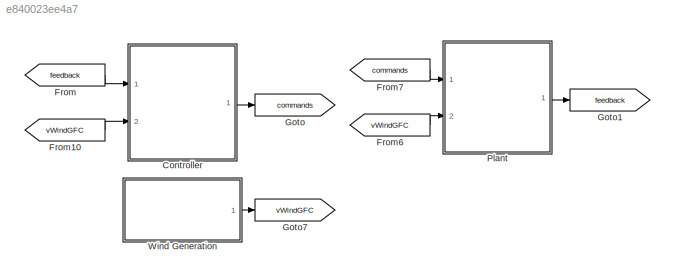
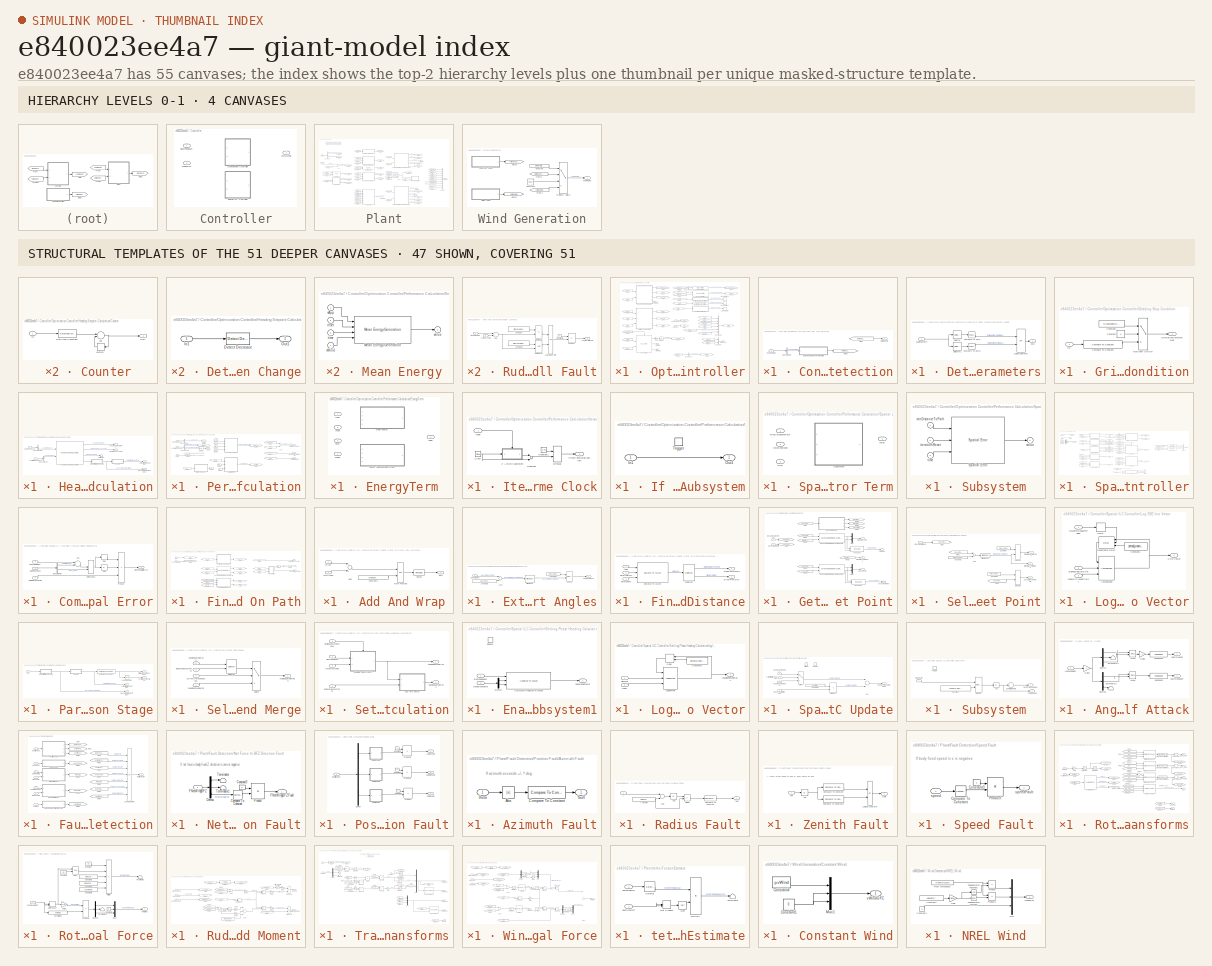
[diagram: thumbnail index - top-2 hierarchy levels (4 canvases) + 47 structural-template representatives of the remaining 51 canvases]
MODEL slx_e840023ee4a7
KIND model
CONFIG AbsTol = auto
CONFIG EnableMultiTasking = off
CONFIG FixedStep = 0.001
CONFIG MaxStep = auto
CONFIG MinStep = auto
CONFIG PreLoadFcn = preLoadCallback
CONFIG RelTol = 1e-3
CONFIG SampleTimeConstraint = Unconstrained
CONFIG Solver = FixedStepAuto
CONFIG SolverName = FixedStepAuto
CONFIG StartFcn = startCallback
CONFIG StartTime = 0.0
CONFIG StopFcn = stopCallback
CONFIG StopTime = p.T
BLOCK [SubSystem] Controller
  Ports = [2, 1]
  RequestExecContextInheritance = off
  Variant = on
BLOCK [SubSystem] Controller/Optimization Controller
  Ports = [2, 1]
  RequestExecContextInheritance = off
  VariantControl = variantControllerOptimization
BLOCK [BusCreator] Controller/Optimization Controller/Bus Creator
  DisplayOption = bar
  InheritFromInputs = on
  Inputs = 2
  OutDataTypeStr = Bus: busControllerOutput
  Ports = [2, 1]
BLOCK [BusCreator] Controller/Optimization Controller/Bus Creator1
  DisplayOption = bar
  InheritFromInputs = on
  Inputs = 6
  OutDataTypeStr = Bus: busControllerFeedback
  Ports = [6, 1]
BLOCK [BusSelector] Controller/Optimization Controller/Bus Selector
  OutputAsBus = off
  OutputSignals = headingDot
  Ports = [1, 1]
BLOCK [BusSelector] Controller/Optimization Controller/Bus Selector1
  OutputAsBus = off
  OutputSignals = gammaWing
  Ports = [1, 1]
BLOCK [Reference] Controller/Optimization Controller/Compare To Constant  REF=simulink/Logic and Bit
Operations/Compare
To Constant
  Ports = [1, 1]
  SourceBlock = simulink/Logic and Bit\nOperations/Compare\nTo Constant
  SourceProductBaseCode = SL
  SourceProductName = Simulink
  SourceType = Compare To Constant
BLOCK [SubSystem] Controller/Optimization Controller/Controller Fault Detection
  Ports = [1, 1]
  RequestExecContextInheritance = off
BLOCK [BusSelector] Controller/Optimization Controller/Controller Fault Detection/Bus Selector
  OutputAsBus = off
  OutputSignals = basisParams
  Ports = [1, 1]
BLOCK [SubSystem] Controller/Optimization Controller/Controller Fault Detection/Detect Negative Basis Parameters
  Ports = [1, 1]
  RequestExecContextInheritance = off
BLOCK [Reference] Controller/Optimization Controller/Controller Fault Detection/Detect Negative Basis Parameters/Compare To Zero  REF=simulink/Logic and Bit
Operations/Compare
To Zero
  Ports = [1, 1]
  SourceBlock = simulink/Logic and Bit\nOperations/Compare\nTo Zero
  SourceProductBaseCode = SL
  SourceProductName = Simulink
  SourceType = Compare To Zero
BLOCK [Reference] Controller/Optimization Controller/Controller Fault Detection/Detect Negative Basis Parameters/Compare To Zero1  REF=simulink/Logic and Bit
Operations/Compare
To Zero
  Ports = [1, 1]
  SourceBlock = simulink/Logic and Bit\nOperations/Compare\nTo Zero
  SourceProductBaseCode = SL
  SourceProductName = Simulink
  SourceType = Compare To Zero
BLOCK [Logic] Controller/Optimization Controller/Controller Fault Detection/Detect Negative Basis Parameters/Logical Operator
  AllPortsSameDT = off
  Operator = OR
  OutDataTypeStr = boolean
  Ports = [2, 1]
BLOCK [Outport] Controller/Optimization Controller/Controller Fault Detection/Detect Negative Basis Parameters/Out1
  IconDisplay = Port number
BLOCK [Selector] Controller/Optimization Controller/Controller Fault Detection/Detect Negative Basis Parameters/Selector
  IndexOptions = Index vector (dialog)
  Indices = 1
  InputPortWidth = 2
  OutputSizes = 1
  Ports = [1, 1]
BLOCK [Selector] Controller/Optimization Controller/Controller Fault Detection/Detect Negative Basis Parameters/Selector1
  IndexOptions = Index vector (dialog)
  Indices = 1
  InputPortWidth = 2
  OutputSizes = 1
  Ports = [1, 1]
BLOCK [Inport] Controller/Optimization Controller/Controller Fault Detection/Detect Negative Basis Parameters/basisParams
  IconDisplay = Port number
BLOCK [From] Controller/Optimization Controller/Controller Fault Detection/From
  GotoTag = faultNegativeBasisParams
BLOCK [Goto] Controller/Optimization Controller/Controller Fault Detection/Goto1
  GotoTag = faultNegativeBasisParams
BLOCK [Inport] Controller/Optimization Controller/Controller Fault Detection/basisParams
  IconDisplay = Port number
  OutDataTypeStr = Bus: busControllerFeedback
BLOCK [Outport] Controller/Optimization Controller/Controller Fault Detection/faultIndicator
  IconDisplay = Port number
BLOCK [From] Controller/Optimization Controller/From
  GotoTag = controllerFeedback
BLOCK [From] Controller/Optimization Controller/From1
  GotoTag = plantFeedback
BLOCK [From] Controller/Optimization Controller/From10
  GotoTag = waypointUpdateTrigger
BLOCK [From] Controller/Optimization Controller/From11
  GotoTag = currentIterationNumber
BLOCK [From] Controller/Optimization Controller/From12
  GotoTag = currentIterationNumber
BLOCK [From] Controller/Optimization Controller/From13
  GotoTag = performanceIndex
BLOCK [From] Controller/Optimization Controller/From14
  GotoTag = plantFeedback
BLOCK [From] Controller/Optimization Controller/From16
  GotoTag = wingAngleCommand
BLOCK [From] Controller/Optimization Controller/From17
  GotoTag = rudderAngleCommand
BLOCK [From] Controller/Optimization Controller/From18
  GotoTag = plantFeedback
BLOCK [From] Controller/Optimization Controller/From19
  GotoTag = plantFeedback
BLOCK [From] Controller/Optimization Controller/From2
  GotoTag = basisParams
BLOCK [From] Controller/Optimization Controller/From20
  GotoTag = plantFeedback
BLOCK [From] Controller/Optimization Controller/From21
  GotoTag = vWind
BLOCK [From] Controller/Optimization Controller/From22
  GotoTag = currentIterationNumber
BLOCK [From] Controller/Optimization Controller/From27
  GotoTag = controllerFeedback
BLOCK [From] Controller/Optimization Controller/From3
  GotoTag = performanceIndex
BLOCK [From] Controller/Optimization Controller/From4
  GotoTag = headingSPRad
BLOCK [From] Controller/Optimization Controller/From5
  GotoTag = energyGenerationTerm
BLOCK [From] Controller/Optimization Controller/From6
  GotoTag = spatialErrorTerm
BLOCK [From] Controller/Optimization Controller/From7
  GotoTag = controllerFeedback
BLOCK [From] Controller/Optimization Controller/From8
  GotoTag = waypointUpdateTrigger
BLOCK [From] Controller/Optimization Controller/From9
  GotoTag = minDistanceToPath
BLOCK [Gain] Controller/Optimization Controller/Gain
  Gain = pi/180
  OutDataTypeStr = Inherit: Inherit via internal rule
  ParamDataTypeStr = Inherit: Inherit via internal rule
  SaturateOnIntegerOverflow = off
BLOCK [Goto] Controller/Optimization Controller/Goto
  GotoTag = controllerFeedback
BLOCK [Goto] Controller/Optimization Controller/Goto1
  GotoTag = minDistanceToPath
BLOCK [Goto] Controller/Optimization Controller/Goto10
  GotoTag = currentIterationNumber
BLOCK [Goto] Controller/Optimization Controller/Goto12
  GotoTag = wingAngleCommand
BLOCK [Goto] Controller/Optimization Controller/Goto13
  GotoTag = rudderAngleCommand
BLOCK [Goto] Controller/Optimization Controller/Goto17
  GotoTag = vWind
BLOCK [Goto] Controller/Optimization Controller/Goto18
  GotoTag = plantFeedback
BLOCK [Goto] Controller/Optimization Controller/Goto3
  GotoTag = basisParams
BLOCK [Goto] Controller/Optimization Controller/Goto4
  GotoTag = headingSPRad
BLOCK [Goto] Controller/Optimization Controller/Goto5
  GotoTag = energyGenerationTerm
BLOCK [Goto] Controller/Optimization Controller/Goto6
  GotoTag = waypointUpdateTrigger
BLOCK [Goto] Controller/Optimization Controller/Goto7
  GotoTag = spatialErrorTerm
BLOCK [Goto] Controller/Optimization Controller/Goto9
  GotoTag = performanceIndex
BLOCK [SubSystem] Controller/Optimization Controller/Gridding Stop Condition
  Ports = [1, 1]
  RequestExecContextInheritance = off
BLOCK [Reference] Controller/Optimization Controller/Gridding Stop Condition/Compare To Constant  REF=simulink/Logic and Bit
Operations/Compare
To Constant
  Ports = [1, 1]
  SourceBlock = simulink/Logic and Bit\nOperations/Compare\nTo Constant
  SourceProductBaseCode = SL
  SourceProductName = Simulink
  SourceType = Compare To Constant
BLOCK [Constant] Controller/Optimization Controller/Gridding Stop Condition/Constant
  Value = 0
BLOCK [Constant] Controller/Optimization Controller/Gridding Stop Condition/Constant1
  Value = p.runModeSwitch
BLOCK [Inport] Controller/Optimization Controller/Gridding Stop Condition/In1
  IconDisplay = Port number
BLOCK [MultiPortSwitch] Controller/Optimization Controller/Gridding Stop Condition/Multiport Switch
  InputSameDT = off
  Inputs = 2
  Ports = [3, 1]
  SaturateOnIntegerOverflow = off
BLOCK [Outport] Controller/Optimization Controller/Gridding Stop Condition/simulationCompleteFlag
  IconDisplay = Port number
BLOCK [SubSystem] Controller/Optimization Controller/Heading Setpoint Calculation
  Ports = [2, 4]
  RequestExecContextInheritance = off
  VariantControl = variantPureCarrotFollowing
BLOCK [BusSelector] Controller/Optimization Controller/Heading Setpoint Calculation/Bus Selector
  OutputAsBus = off
  OutputSignals = basisParams
  Ports = [1, 1]
BLOCK [BusSelector] Controller/Optimization Controller/Heading Setpoint Calculation/Bus Selector1
  OutputAsBus = off
  OutputSignals = positionGFS
  Ports = [1, 1]
BLOCK [SubSystem] Controller/Optimization Controller/Heading Setpoint Calculation/Counter
  Ports = [1, 1]
  RequestExecContextInheritance = off
BLOCK [Sum] Controller/Optimization Controller/Heading Setpoint Calculation/Counter/Add
  InputSameDT = off
  OutDataTypeStr = Inherit: Inherit via internal rule
  Ports = [2, 1]
  SaturateOnIntegerOverflow = off
BLOCK [DataTypeConversion] Controller/Optimization Controller/Heading Setpoint Calculation/Counter/Data Type Conversion
  OutDataTypeStr = uint8
  RndMeth = Floor
  SaturateOnIntegerOverflow = off
BLOCK [Inport] Controller/Optimization Controller/Heading Setpoint Calculation/Counter/In1
  IconDisplay = Port number
BLOCK [Memory] Controller/Optimization Controller/Heading Setpoint Calculation/Counter/Memory
  InitialCondition = 1
BLOCK [Outport] Controller/Optimization Controller/Heading Setpoint Calculation/Counter/Out1
  IconDisplay = Port number
  OutDataTypeStr = double
BLOCK [SubSystem] Controller/Optimization Controller/Heading Setpoint Calculation/Detect Iteration Change
  Ports = [1, 1]
  RequestExecContextInheritance = off
BLOCK [Reference] Controller/Optimization Controller/Heading Setpoint Calculation/Detect Iteration Change/Detect Decrease  REF=simulink/Logic and Bit
Operations/Detect
Decrease
  Ports = [1, 1]
  SourceBlock = simulink/Logic and Bit\nOperations/Detect\nDecrease
  SourceProductBaseCode = SL
  SourceProductName = Simulink
  SourceType = Detect Decrease
BLOCK [Inport] Controller/Optimization Controller/Heading Setpoint Calculation/Detect Iteration Change/In1
  IconDisplay = Port number
BLOCK [Outport] Controller/Optimization Controller/Heading Setpoint Calculation/Detect Iteration Change/Out1
  IconDisplay = Port number
BLOCK [Reference] Controller/Optimization Controller/Heading Setpoint Calculation/HeadingSetpointCalculation  REF=headingSetpointCaclulation/HeadingSetpointCalculation
  Ports = [2, 4]
  SourceBlock = headingSetpointCaclulation/HeadingSetpointCalculation
BLOCK [Terminator] Controller/Optimization Controller/Heading Setpoint Calculation/Terminator
BLOCK [Inport] Controller/Optimization Controller/Heading Setpoint Calculation/controllerFeedback
  IconDisplay = Port number
  OutDataTypeStr = Bus: busControllerFeedback
  Port = 2
BLOCK [Outport] Controller/Optimization Controller/Heading Setpoint Calculation/currentIterationNumber
  IconDisplay = Port number
  Port = 2
BLOCK [Outport] Controller/Optimization Controller/Heading Setpoint Calculation/headingSetpointRad
  IconDisplay = Port number
BLOCK [Outport] Controller/Optimization Controller/Heading Setpoint Calculation/minDistanceToPath
  IconDisplay = Port number
  Port = 4
BLOCK [Inport] Controller/Optimization Controller/Heading Setpoint Calculation/plantFeedback
  IconDisplay = Port number
  OutDataTypeStr = Bus: busPlantFeedback
BLOCK [Outport] Controller/Optimization Controller/Heading Setpoint Calculation/waypointUpdateTrigger
  IconDisplay = Port number
  Port = 3
BLOCK [SubSystem] Controller/Optimization Controller/Performance Calculation
  Ports = [3, 3]
  RequestExecContextInheritance = off
BLOCK [Sum] Controller/Optimization Controller/Performance Calculation/Add
  InputSameDT = off
  Inputs = +-
  OutDataTypeStr = Inherit: Inherit via internal rule
  Ports = [2, 1]
  SaturateOnIntegerOverflow = off
BLOCK [BusSelector] Controller/Optimization Controller/Performance Calculation/Bus Selector
  OutputAsBus = off
  OutputSignals = vAppWindGFC
  Ports = [1, 1]
BLOCK [BusSelector] Controller/Optimization Controller/Performance Calculation/Bus Selector1
  OutputAsBus = off
  OutputSignals = minimumDistanceToPath,waypointUpdateTrigger
  Ports = [1, 2]
BLOCK [SubSystem] Controller/Optimization Controller/Performance Calculation/EnergyTerm
  Ports = [4, 1]
  RequestExecContextInheritance = off
  Variant = on
BLOCK [SubSystem] Controller/Optimization Controller/Performance Calculation/EnergyTerm/Mean Energy
  Ports = [4, 1]
  RequestExecContextInheritance = off
  VariantControl = variantMeanEnergy
BLOCK [Reference] Controller/Optimization Controller/Performance Calculation/EnergyTerm/Mean Energy/Mean Energy Generation  REF=performanceIndexComponents/Mean Energy Generation
  Ports = [4, 1]
  SourceBlock = performanceIndexComponents/Mean Energy Generation
  SourceType = SubSystem
BLOCK [Inport] Controller/Optimization Controller/Performance Calculation/EnergyTerm/Mean Energy/reset
  IconDisplay = Port number
  Port = 2
BLOCK [Inport] Controller/Optimization Controller/Performance Calculation/EnergyTerm/Mean Energy/time
  IconDisplay = Port number
  Port = 3
BLOCK [Inport] Controller/Optimization Controller/Performance Calculation/EnergyTerm/Mean Energy/vApp
  IconDisplay = Port number
BLOCK [Inport] Controller/Optimization Controller/Performance Calculation/EnergyTerm/Mean Energy/vWind
  IconDisplay = Port number
  Port = 4
BLOCK [Outport] Controller/Optimization Controller/Performance Calculation/EnergyTerm/Mean Energy/value
  IconDisplay = Port number
BLOCK [SubSystem] Controller/Optimization Controller/Performance Calculation/EnergyTerm/Power Augmentation Ratio
  Ports = [4, 1]
  RequestExecContextInheritance = off
  VariantControl = variantPowerAugmentationRatio
BLOCK [Reference] Controller/Optimization Controller/Performance Calculation/EnergyTerm/Power Augmentation Ratio/PAR  REF=performanceIndexComponents/PAR
  Ports = [4, 1]
  SourceBlock = performanceIndexComponents/PAR
  SourceType = SubSystem
BLOCK [Inport] Controller/Optimization Controller/Performance Calculation/EnergyTerm/Power Augmentation Ratio/reset
  IconDisplay = Port number
  Port = 2
BLOCK [Inport] Controller/Optimization Controller/Performance Calculation/EnergyTerm/Power Augmentation Ratio/time
  IconDisplay = Port number
  Port = 3
BLOCK [Inport] Controller/Optimization Controller/Performance Calculation/EnergyTerm/Power Augmentation Ratio/vApp
  IconDisplay = Port number
BLOCK [Inport] Controller/Optimization Controller/Performance Calculation/EnergyTerm/Power Augmentation Ratio/vWind
  IconDisplay = Port number
  Port = 4
BLOCK [Outport] Controller/Optimization Controller/Performance Calculation/EnergyTerm/Power Augmentation Ratio/value
  IconDisplay = Port number
BLOCK [Inport] Controller/Optimization Controller/Performance Calculation/EnergyTerm/reset
  IconDisplay = Port number
  Port = 2
BLOCK [Inport] Controller/Optimization Controller/Performance Calculation/EnergyTerm/time
  IconDisplay = Port number
  Port = 3
BLOCK [Inport] Controller/Optimization Controller/Performance Calculation/EnergyTerm/vApp
  IconDisplay = Port number
BLOCK [Inport] Controller/Optimization Controller/Performance Calculation/EnergyTerm/vWind
  IconDisplay = Port number
  Port = 4
BLOCK [Outport] Controller/Optimization Controller/Performance Calculation/EnergyTerm/value
  IconDisplay = Port number
BLOCK [From] Controller/Optimization Controller/Performance Calculation/From
  GotoTag = reset
BLOCK [From] Controller/Optimization Controller/Performance Calculation/From1
  GotoTag = time
BLOCK [From] Controller/Optimization Controller/Performance Calculation/From10
  GotoTag = energyGenerationTerm
BLOCK [From] Controller/Optimization Controller/Performance Calculation/From11
  GotoTag = spatialErrorTerm
BLOCK [From] Controller/Optimization Controller/Performance Calculation/From2
  GotoTag = vWind
BLOCK [From] Controller/Optimization Controller/Performance Calculation/From3
  GotoTag = vApp
BLOCK [From] Controller/Optimization Controller/Performance Calculation/From4
  GotoTag = time
BLOCK [From] Controller/Optimization Controller/Performance Calculation/From5
  GotoTag = energyGenerationTerm
BLOCK [From] Controller/Optimization Controller/Performance Calculation/From6
  GotoTag = reset
BLOCK [From] Controller/Optimization Controller/Performance Calculation/From7
  GotoTag = minDistanceToPath
BLOCK [From] Controller/Optimization Controller/Performance Calculation/From8
  GotoTag = spatialErrorTerm
BLOCK [From] Controller/Optimization Controller/Performance Calculation/From9
  GotoTag = reset
BLOCK [Goto] Controller/Optimization Controller/Performance Calculation/Goto
  GotoTag = reset
BLOCK [Goto] Controller/Optimization Controller/Performance Calculation/Goto1
  GotoTag = vWind
BLOCK [Goto] Controller/Optimization Controller/Performance Calculation/Goto2
  GotoTag = energyGenerationTerm
BLOCK [Goto] Controller/Optimization Controller/Performance Calculation/Goto3
  GotoTag = time
BLOCK [Goto] Controller/Optimization Controller/Performance Calculation/Goto4
  GotoTag = spatialErrorTerm
BLOCK [Goto] Controller/Optimization Controller/Performance Calculation/Goto5
  GotoTag = vApp
BLOCK [Goto] Controller/Optimization Controller/Performance Calculation/Goto7
  GotoTag = minDistanceToPath
BLOCK [SubSystem] Controller/Optimization Controller/Performance Calculation/Iteration Time Clock
  Ports = [1, 1]
  RequestExecContextInheritance = off
BLOCK [Clock] Controller/Optimization Controller/Performance Calculation/Iteration Time Clock/Clock
BLOCK [Constant] Controller/Optimization Controller/Performance Calculation/Iteration Time Clock/Constant1
  Value = p.Ts
BLOCK [SubSystem] Controller/Optimization Controller/Performance Calculation/Iteration Time Clock/If Action Subsystem
  Ports = [1, 1, 0, 1]
  RequestExecContextInheritance = off
  TreatAsAtomicUnit = on
BLOCK [Inport] Controller/Optimization Controller/Performance Calculation/Iteration Time Clock/If Action Subsystem/In1
  IconDisplay = Port number
BLOCK [Outport] Controller/Optimization Controller/Performance Calculation/Iteration Time Clock/If Action Subsystem/Out1
  IconDisplay = Port number
BLOCK [TriggerPort] Controller/Optimization Controller/Performance Calculation/Iteration Time Clock/If Action Subsystem/Trigger
  PortDimensions = 1
  Ports = []
  StatesWhenEnabling = held
  VariantControl = Variant
BLOCK [MinMax] Controller/Optimization Controller/Performance Calculation/Iteration Time Clock/MinMax
  Function = max
  InputSameDT = off
  Inputs = 2
  Ports = [2, 1]
  SaturateOnIntegerOverflow = off
BLOCK [Sum] Controller/Optimization Controller/Performance Calculation/Iteration Time Clock/Subtract
  InputSameDT = off
  Inputs = -+
  OutDataTypeStr = Inherit: Inherit via internal rule
  Ports = [2, 1]
  SaturateOnIntegerOverflow = off
BLOCK [Inport] Controller/Optimization Controller/Performance Calculation/Iteration Time Clock/reset
  IconDisplay = Port number
BLOCK [Outport] Controller/Optimization Controller/Performance Calculation/Iteration Time Clock/timeSinceIterationStart
  IconDisplay = Port number
BLOCK [SubSystem] Controller/Optimization Controller/Performance Calculation/Spatial Error Term
  Ports = [3, 1]
  RequestExecContextInheritance = off
  Variant = on
BLOCK [SubSystem] Controller/Optimization Controller/Performance Calculation/Spatial Error Term/Subsystem
  Ports = [3, 1]
  RequestExecContextInheritance = off
  VariantControl = variantSpatialError
BLOCK [Reference] Controller/Optimization Controller/Performance Calculation/Spatial Error Term/Subsystem/Spatial Error  REF=performanceIndexComponents/Spatial Error
  Ports = [3, 1]
  SourceBlock = performanceIndexComponents/Spatial Error
  SourceType = SubSystem
BLOCK [Inport] Controller/Optimization Controller/Performance Calculation/Spatial Error Term/Subsystem/iterationReset
  IconDisplay = Port number
  Port = 2
BLOCK [Inport] Controller/Optimization Controller/Performance Calculation/Spatial Error Term/Subsystem/minDistanceToPath
  IconDisplay = Port number
BLOCK [Inport] Controller/Optimization Controller/Performance Calculation/Spatial Error Term/Subsystem/time
  IconDisplay = Port number
  Port = 3
BLOCK [Outport] Controller/Optimization Controller/Performance Calculation/Spatial Error Term/Subsystem/value
  IconDisplay = Port number
BLOCK [Inport] Controller/Optimization Controller/Performance Calculation/Spatial Error Term/iterationReset
  IconDisplay = Port number
  Port = 2
BLOCK [Inport] Controller/Optimization Controller/Performance Calculation/Spatial Error Term/minDistanceToPath
  IconDisplay = Port number
BLOCK [Inport] Controller/Optimization Controller/Performance Calculation/Spatial Error Term/time
  IconDisplay = Port number
  Port = 3
BLOCK [Outport] Controller/Optimization Controller/Performance Calculation/Spatial Error Term/value
  IconDisplay = Port number
BLOCK [UnitDelay] Controller/Optimization Controller/Performance Calculation/Unit Delay
  InitialCondition = false
  InputProcessing = Elements as channels (sample based)
  SampleTime = -1
BLOCK [Inport] Controller/Optimization Controller/Performance Calculation/controllerFeedback
  IconDisplay = Port number
  OutDataTypeStr = Bus: busControllerFeedback
  Port = 2
BLOCK [Outport] Controller/Optimization Controller/Performance Calculation/energyGenerationTerm
  IconDisplay = Port number
  Port = 2
BLOCK [Outport] Controller/Optimization Controller/Performance Calculation/performanceIndex
  IconDisplay = Port number
BLOCK [Inport] Controller/Optimization Controller/Performance Calculation/plantFeedback
  IconDisplay = Port number
  OutDataTypeStr = Bus: busPlantFeedback
BLOCK [Outport] Controller/Optimization Controller/Performance Calculation/spatialErrorTerm
  IconDisplay = Port number
  Port = 3
BLOCK [Inport] Controller/Optimization Controller/Performance Calculation/vWind
  IconDisplay = Port number
  Port = 3
BLOCK [Reference] Controller/Optimization Controller/RLS Update  REF=RLSUpdate_ul/RLS Update
  Ports = [2, 3, 0, 1]
  SourceBlock = RLSUpdate_ul/RLS Update
BLOCK [Reference] Controller/Optimization Controller/Rudder Controller  REF=controllerComponents/Rudder Controller
  Ports = [2, 1]
  SourceBlock = controllerComponents/Rudder Controller
  SourceType = SubSystem
BLOCK [Stop] Controller/Optimization Controller/Stop Simulation
BLOCK [Stop] Controller/Optimization Controller/Stop Simulation1
BLOCK [Stop] Controller/Optimization Controller/Stop Simulation2
BLOCK [Terminator] Controller/Optimization Controller/Terminator
BLOCK [Terminator] Controller/Optimization Controller/Terminator1
BLOCK [Terminator] Controller/Optimization Controller/Terminator2
BLOCK [UnitDelay] Controller/Optimization Controller/Unit Delay
  InitialCondition = [p.width p.height]*pi/180
  InputProcessing = Elements as channels (sample based)
  SampleTime = -1
BLOCK [Reference] Controller/Optimization Controller/Wing Controller  REF=controllerComponents/Wing Controller
  Ports = [1, 1]
  SourceBlock = controllerComponents/Wing Controller
  SourceType = SubSystem
BLOCK [Outport] Controller/Optimization Controller/commands
  IconDisplay = Port number
  OutDataTypeStr = Bus: busControllerOutput
BLOCK [Inport] Controller/Optimization Controller/plantFeedback
  IconDisplay = Port number
  OutDataTypeStr = Bus: busPlantFeedback
BLOCK [Inport] Controller/Optimization Controller/vWindGFC
  IconDisplay = Port number
  Port = 2
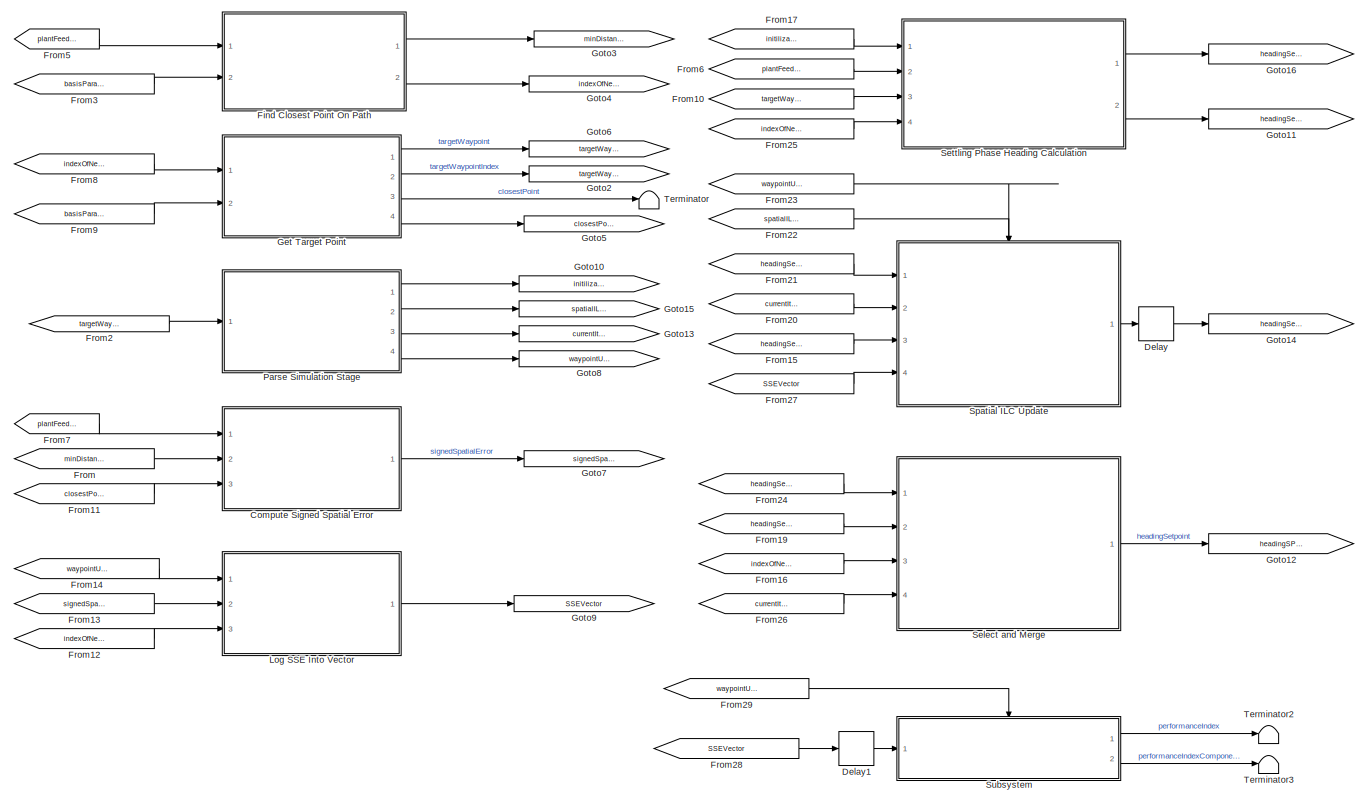
[diagram: Controller/Spatial ILC Controller - part 1/3, center side, full height]
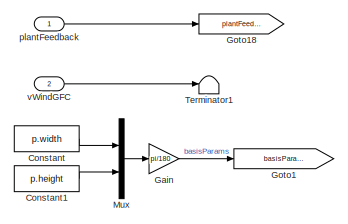
[diagram: Controller/Spatial ILC Controller - part 2/3, top left region]
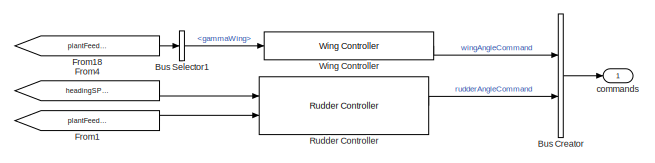
[diagram: Controller/Spatial ILC Controller - part 3/3, middle right region]
BLOCK [SubSystem] Controller/Spatial ILC Controller
  Ports = [2, 1]
  RequestExecContextInheritance = off
  VariantControl = variantControllerSpatialILC
BLOCK [BusCreator] Controller/Spatial ILC Controller/Bus Creator
  DisplayOption = bar
  InheritFromInputs = on
  Inputs = 2
  OutDataTypeStr = Bus: busControllerOutput
  Ports = [2, 1]
BLOCK [BusSelector] Controller/Spatial ILC Controller/Bus Selector1
  OutputAsBus = off
  OutputSignals = gammaWing
  Ports = [1, 1]
BLOCK [SubSystem] Controller/Spatial ILC Controller/Compute Signed Spatial Error
  Ports = [3, 1]
  RequestExecContextInheritance = off
BLOCK [Abs] Controller/Spatial ILC Controller/Compute Signed Spatial Error/Abs
  SaturateOnIntegerOverflow = off
BLOCK [Sum] Controller/Spatial ILC Controller/Compute Signed Spatial Error/Add
  InputSameDT = off
  Inputs = +-
  OutDataTypeStr = Inherit: Inherit via internal rule
  Ports = [2, 1]
  SaturateOnIntegerOverflow = off
BLOCK [BusSelector] Controller/Spatial ILC Controller/Compute Signed Spatial Error/Bus Selector
  OutputAsBus = off
  OutputSignals = positionGFC,BFY_GFC
  Ports = [1, 2]
BLOCK [DotProduct] Controller/Spatial ILC Controller/Compute Signed Spatial Error/Dot Product
  OutDataTypeStr = Inherit: Inherit via internal rule
BLOCK [Product] Controller/Spatial ILC Controller/Compute Signed Spatial Error/Product
  InputSameDT = off
  Inputs = 3
  OutDataTypeStr = Inherit: Inherit via internal rule
  Ports = [3, 1]
  RndMeth = Floor
  SaturateOnIntegerOverflow = off
BLOCK [Signum] Controller/Spatial ILC Controller/Compute Signed Spatial Error/Sign
BLOCK [Inport] Controller/Spatial ILC Controller/Compute Signed Spatial Error/closestPointGFC
  IconDisplay = Port number
  Port = 3
  Unit = m
BLOCK [Inport] Controller/Spatial ILC Controller/Compute Signed Spatial Error/minDistanceToPath
  IconDisplay = Port number
  Port = 2
  Unit = m
BLOCK [Inport] Controller/Spatial ILC Controller/Compute Signed Spatial Error/plantFeedback
  IconDisplay = Port number
BLOCK [Outport] Controller/Spatial ILC Controller/Compute Signed Spatial Error/signedSpatialError
  IconDisplay = Port number
BLOCK [Constant] Controller/Spatial ILC Controller/Constant
  Value = p.width
BLOCK [Constant] Controller/Spatial ILC Controller/Constant1
  Value = p.height
BLOCK [Delay] Controller/Spatial ILC Controller/Delay
  DelayLength = 1
  InitialCondition = 0
  InputPortMap = u0
  Ports = [1, 1]
BLOCK [Delay] Controller/Spatial ILC Controller/Delay1
  DelayLength = 1
  InitialCondition = 0
  InputPortMap = u0
  Ports = [1, 1]
BLOCK [SubSystem] Controller/Spatial ILC Controller/Find Closest Point On Path
  Ports = [2, 2]
  RequestExecContextInheritance = off
BLOCK [SubSystem] Controller/Spatial ILC Controller/Find Closest Point On Path/Add And Wrap
  Ports = [2, 1]
  RequestExecContextInheritance = off
BLOCK [Sum] Controller/Spatial ILC Controller/Find Closest Point On Path/Add And Wrap/Add1
  InputSameDT = off
  OutDataTypeStr = Inherit: Inherit via internal rule
  Ports = [2, 1]
  SaturateOnIntegerOverflow = off
BLOCK [Constant] Controller/Spatial ILC Controller/Find Closest Point On Path/Add And Wrap/Constant2
  SampleTime = -1
  Value = length(p.waypointAngles)+0.5
BLOCK [Math] Controller/Spatial ILC Controller/Find Closest Point On Path/Add And Wrap/Math Function
  Operator = mod
  Ports = [2, 1]
BLOCK [Outport] Controller/Spatial ILC Controller/Find Closest Point On Path/Add And Wrap/Out1
  IconDisplay = Port number
BLOCK [Rounding] Controller/Spatial ILC Controller/Find Closest Point On Path/Add And Wrap/Round
  Operator = round
BLOCK [Inport] Controller/Spatial ILC Controller/Find Closest Point On Path/Add And Wrap/offset
  IconDisplay = Port number
BLOCK [Inport] Controller/Spatial ILC Controller/Find Closest Point On Path/Add And Wrap/startIndex
  IconDisplay = Port number
  Port = 2
BLOCK [Reference] Controller/Spatial ILC Controller/Find Closest Point On Path/Basis Parameters to Waypoint Vectors  REF=myLibrary/Basis Parameters to
Waypoint Vectors
  Ports = [2, 2]
  SourceBlock = myLibrary/Basis Parameters to\nWaypoint Vectors
  SourceType = SubSystem
BLOCK [Delay] Controller/Spatial ILC Controller/Find Closest Point On Path/Delay1
  DelayLength = 1
  InitialCondition = 1
  InputPortMap = u0
  Ports = [1, 1]
BLOCK [SubSystem] Controller/Spatial ILC Controller/Find Closest Point On Path/Extract Waypoint Angles
  Ports = [1, 1]
  RequestExecContextInheritance = off
BLOCK [Sum] Controller/Spatial ILC Controller/Find Closest Point On Path/Extract Waypoint Angles/Add4
  InputSameDT = off
  OutDataTypeStr = Inherit: Inherit via internal rule
  Ports = [2, 1]
  SaturateOnIntegerOverflow = off
BLOCK [Constant] Controller/Spatial ILC Controller/Find Closest Point On Path/Extract Waypoint Angles/Constant1
  SampleTime = -1
  Value = p.waypointAngles
BLOCK [Constant] Controller/Spatial ILC Controller/Find Closest Point On Path/Extract Waypoint Angles/Constant2
  SampleTime = -1
  Value = p.localSearchIndexOffsetVector
BLOCK [Selector] Controller/Spatial ILC Controller/Find Closest Point On Path/Extract Waypoint Angles/Selector
  IndexOptions = Index vector (port)
  Indices = [1 3]
  InputPortWidth = length(p.waypointAngles)
  OutputSizes = 1
  Ports = [2, 1]
BLOCK [Reference] Controller/Spatial ILC Controller/Find Closest Point On Path/Extract Waypoint Angles/Wrap Index  REF=myLibrary/Wrap Index
  Ports = [1, 1]
  SourceBlock = myLibrary/Wrap Index
  SourceType = SubSystem
BLOCK [Outport] Controller/Spatial ILC Controller/Find Closest Point On Path/Extract Waypoint Angles/anglesSubset
  IconDisplay = Port number
BLOCK [Inport] Controller/Spatial ILC Controller/Find Closest Point On Path/Extract Waypoint Angles/closestIndex
  IconDisplay = Port number
BLOCK [SubSystem] Controller/Spatial ILC Controller/Find Closest Point On Path/Find Minimum Distance
  Ports = [3, 2]
  RequestExecContextInheritance = off
BLOCK [Reference] Controller/Spatial ILC Controller/Find Closest Point On Path/Find Minimum Distance/Distance To Waypt  REF=myLibrary/Distance To Waypt
  Ports = [3, 1]
  SourceBlock = myLibrary/Distance To Waypt
  SourceType = SubSystem
BLOCK [Reference] Controller/Spatial ILC Controller/Find Closest Point On Path/Find Minimum Distance/Minimum  REF=dspstat3/Minimum
  Ports = [1, 2]
  SourceBlock = dspstat3/Minimum
  SourceProductBaseCode = DS
  SourceProductName = DSP System Toolbox
  SourceType = Minimum
  UserDataPersistent = on
BLOCK [Inport] Controller/Spatial ILC Controller/Find Closest Point On Path/Find Minimum Distance/fdbk
  IconDisplay = Port number
BLOCK [Outport] Controller/Spatial ILC Controller/Find Closest Point On Path/Find Minimum Distance/minDistanceToPath
  IconDisplay = Port number
BLOCK [Outport] Controller/Spatial ILC Controller/Find Closest Point On Path/Find Minimum Distance/offsetFromStart
  IconDisplay = Port number
  Port = 2
BLOCK [Inport] Controller/Spatial ILC Controller/Find Closest Point On Path/Find Minimum Distance/wayptAzimuth
  IconDisplay = Port number
  Port = 2
BLOCK [Inport] Controller/Spatial ILC Controller/Find Closest Point On Path/Find Minimum Distance/wayptZenith
  IconDisplay = Port number
  Port = 3
BLOCK [From] Controller/Spatial ILC Controller/Find Closest Point On Path/From
  GotoTag = closestIndex
BLOCK [From] Controller/Spatial ILC Controller/Find Closest Point On Path/From1
  GotoTag = closestIndex
BLOCK [From] Controller/Spatial ILC Controller/Find Closest Point On Path/From10
  GotoTag = anglesSubset
BLOCK [From] Controller/Spatial ILC Controller/Find Closest Point On Path/From11
  GotoTag = fdbk
BLOCK [From] Controller/Spatial ILC Controller/Find Closest Point On Path/From12
  GotoTag = basisParameters
BLOCK [From] Controller/Spatial ILC Controller/Find Closest Point On Path/From2
  GotoTag = offsetFromStart
BLOCK [From] Controller/Spatial ILC Controller/Find Closest Point On Path/From3
  GotoTag = minDistanceToPath
BLOCK [From] Controller/Spatial ILC Controller/Find Closest Point On Path/From8
  GotoTag = allAzimuths
BLOCK [From] Controller/Spatial ILC Controller/Find Closest Point On Path/From9
  GotoTag = allZeniths
BLOCK [Goto] Controller/Spatial ILC Controller/Find Closest Point On Path/Goto
  GotoTag = offsetFromStart
BLOCK [Goto] Controller/Spatial ILC Controller/Find Closest Point On Path/Goto1
  GotoTag = minDistanceToPath
BLOCK [Goto] Controller/Spatial ILC Controller/Find Closest Point On Path/Goto2
  GotoTag = allAzimuths
BLOCK [Goto] Controller/Spatial ILC Controller/Find Closest Point On Path/Goto3
  GotoTag = allZeniths
BLOCK [Goto] Controller/Spatial ILC Controller/Find Closest Point On Path/Goto4
  GotoTag = anglesSubset
BLOCK [Goto] Controller/Spatial ILC Controller/Find Closest Point On Path/Goto5
  GotoTag = basisParameters
BLOCK [Goto] Controller/Spatial ILC Controller/Find Closest Point On Path/Goto6
  GotoTag = fdbk
BLOCK [Goto] Controller/Spatial ILC Controller/Find Closest Point On Path/Goto8
  GotoTag = closestIndex
BLOCK [Inport] Controller/Spatial ILC Controller/Find Closest Point On Path/basisParameters
  IconDisplay = Port number
  Port = 2
BLOCK [Inport] Controller/Spatial ILC Controller/Find Closest Point On Path/fdbk
  IconDisplay = Port number
BLOCK [Outport] Controller/Spatial ILC Controller/Find Closest Point On Path/indexOfClosestPoint
  IconDisplay = Port number
  Port = 2
BLOCK [Outport] Controller/Spatial ILC Controller/Find Closest Point On Path/minDistanceToPath
  IconDisplay = Port number
BLOCK [From] Controller/Spatial ILC Controller/From
  GotoTag = minDistanceToPath
BLOCK [From] Controller/Spatial ILC Controller/From1
  GotoTag = plantFeedback
BLOCK [From] Controller/Spatial ILC Controller/From10
  GotoTag = targetWaypoint
BLOCK [From] Controller/Spatial ILC Controller/From11
  GotoTag = closestPointGFC
BLOCK [From] Controller/Spatial ILC Controller/From12
  GotoTag = indexOfNearestPoint
BLOCK [From] Controller/Spatial ILC Controller/From13
  GotoTag = signedSpatialError
BLOCK [From] Controller/Spatial ILC Controller/From14
  GotoTag = waypointUpdateTrigger
BLOCK [From] Controller/Spatial ILC Controller/From15
  GotoTag = headingSetpoingVec0
BLOCK [From] Controller/Spatial ILC Controller/From16
  GotoTag = indexOfNearestPoint
BLOCK [From] Controller/Spatial ILC Controller/From17
  GotoTag = initilizationActionSignal
BLOCK [From] Controller/Spatial ILC Controller/From18
  GotoTag = plantFeedback
BLOCK [From] Controller/Spatial ILC Controller/From19
  GotoTag = headingSetpointVec
BLOCK [From] Controller/Spatial ILC Controller/From2
  GotoTag = targetWaypointIndex
BLOCK [From] Controller/Spatial ILC Controller/From20
  GotoTag = currentIterationNumber
BLOCK [From] Controller/Spatial ILC Controller/From21
  GotoTag = headingSetpointVec
BLOCK [From] Controller/Spatial ILC Controller/From22
  GotoTag = spatialILCActionSignal
BLOCK [From] Controller/Spatial ILC Controller/From23
  GotoTag = waypointUpdateTrigger
BLOCK [From] Controller/Spatial ILC Controller/From24
  GotoTag = headingSetpointInit
BLOCK [From] Controller/Spatial ILC Controller/From25
  GotoTag = indexOfNearestPoint
BLOCK [From] Controller/Spatial ILC Controller/From26
  GotoTag = currentIterationNumber
BLOCK [From] Controller/Spatial ILC Controller/From27
  GotoTag = SSEVector
BLOCK [From] Controller/Spatial ILC Controller/From28
  GotoTag = SSEVector
BLOCK [From] Controller/Spatial ILC Controller/From29
  GotoTag = waypointUpdateTrigger
BLOCK [From] Controller/Spatial ILC Controller/From3
  GotoTag = basisParameters
BLOCK [From] Controller/Spatial ILC Controller/From4
  GotoTag = headingSPRad
BLOCK [From] Controller/Spatial ILC Controller/From5
  GotoTag = plantFeedback
BLOCK [From] Controller/Spatial ILC Controller/From6
  GotoTag = plantFeedback
BLOCK [From] Controller/Spatial ILC Controller/From7
  GotoTag = plantFeedback
BLOCK [From] Controller/Spatial ILC Controller/From8
  GotoTag = indexOfNearestPoint
BLOCK [From] Controller/Spatial ILC Controller/From9
  GotoTag = basisParameters
BLOCK [Gain] Controller/Spatial ILC Controller/Gain
  Gain = pi/180
  OutDataTypeStr = Inherit: Inherit via internal rule
  ParamDataTypeStr = Inherit: Inherit via internal rule
  SaturateOnIntegerOverflow = off
BLOCK [SubSystem] Controller/Spatial ILC Controller/Get Target Point
  Ports = [2, 4]
  RequestExecContextInheritance = off
BLOCK [Reference] Controller/Spatial ILC Controller/Get Target Point/Basis Parameters to Waypoint Vectors  REF=myLibrary/Basis Parameters to
Waypoint Vectors
  Ports = [2, 2]
  SourceBlock = myLibrary/Basis Parameters to\nWaypoint Vectors
  SourceType = SubSystem
BLOCK [Reference] Controller/Spatial ILC Controller/Get Target Point/Basis Parameters to Waypoint Vectors1  REF=myLibrary/Basis Parameters to
Waypoint Vectors
  Ports = [2, 2]
  SourceBlock = myLibrary/Basis Parameters to\nWaypoint Vectors
  SourceType = SubSystem
BLOCK [From] Controller/Spatial ILC Controller/Get Target Point/From
  GotoTag = closestPointIndex
BLOCK [From] Controller/Spatial ILC Controller/Get Target Point/From1
  GotoTag = basisParameters
BLOCK [From] Controller/Spatial ILC Controller/Get Target Point/From2
  GotoTag = targetWaypointAngle
BLOCK [From] Controller/Spatial ILC Controller/Get Target Point/From3
  GotoTag = targetWaypointIndex
BLOCK [From] Controller/Spatial ILC Controller/Get Target Point/From4
  GotoTag = basisParameters
BLOCK [From] Controller/Spatial ILC Controller/Get Target Point/From5
  GotoTag = closestWaypointAngle
BLOCK [Reference] Controller/Spatial ILC Controller/Get Target Point/GFS2GFC  REF=myLibrary/GFS2GFC
  Ports = [2, 1]
  SourceBlock = myLibrary/GFS2GFC
  SourceType = SubSystem
BLOCK [Reference] Controller/Spatial ILC Controller/Get Target Point/GFS2GFC1  REF=myLibrary/GFS2GFC
  Ports = [2, 1]
  SourceBlock = myLibrary/GFS2GFC
  SourceType = SubSystem
BLOCK [Goto] Controller/Spatial ILC Controller/Get Target Point/Goto
  GotoTag = basisParameters
BLOCK [Goto] Controller/Spatial ILC Controller/Get Target Point/Goto1
  GotoTag = closestPointIndex
BLOCK [Goto] Controller/Spatial ILC Controller/Get Target Point/Goto2
  GotoTag = targetWaypointAngle
BLOCK [Goto] Controller/Spatial ILC Controller/Get Target Point/Goto3
  GotoTag = targetWaypointIndex
BLOCK [Goto] Controller/Spatial ILC Controller/Get Target Point/Goto4
  GotoTag = closestWaypointAngle
BLOCK [Mux] Controller/Spatial ILC Controller/Get Target Point/Mux
  DisplayOption = bar
  Inputs = 2
  Ports = [2, 1]
BLOCK [Mux] Controller/Spatial ILC Controller/Get Target Point/Mux1
  DisplayOption = bar
  Inputs = 2
  Ports = [2, 1]
BLOCK [SubSystem] Controller/Spatial ILC Controller/Get Target Point/Select Target Point
  Ports = [1, 3]
  RequestExecContextInheritance = off
BLOCK [Sum] Controller/Spatial ILC Controller/Get Target Point/Select Target Point/Add
  InputSameDT = off
  OutDataTypeStr = Inherit: Inherit via internal rule
  Ports = [2, 1]
  SaturateOnIntegerOverflow = off
BLOCK [Constant] Controller/Spatial ILC Controller/Get Target Point/Select Target Point/Constant
  Value = p.waypointAngles
BLOCK [Constant] Controller/Spatial ILC Controller/Get Target Point/Select Target Point/Constant1
  Value = p.lookAheadIndexOffset
BLOCK [Constant] Controller/Spatial ILC Controller/Get Target Point/Select Target Point/Constant2
  Value = p.waypointAngles
BLOCK [From] Controller/Spatial ILC Controller/Get Target Point/Select Target Point/From
  GotoTag = closestPointIndex
BLOCK [From] Controller/Spatial ILC Controller/Get Target Point/Select Target Point/From1
  GotoTag = closestPointIndex
BLOCK [Goto] Controller/Spatial ILC Controller/Get Target Point/Select Target Point/Goto
  GotoTag = closestPointIndex
BLOCK [Selector] Controller/Spatial ILC Controller/Get Target Point/Select Target Point/Selector1
  IndexOptions = Index vector (port)
  Indices = 3
  InputPortWidth = p.num
  OutputSizes = 1
  Ports = [2, 1]
BLOCK [Selector] Controller/Spatial ILC Controller/Get Target Point/Select Target Point/Selector2
  IndexOptions = Index vector (port)
  Indices = 3
  InputPortWidth = p.num
  OutputSizes = 1
  Ports = [2, 1]
BLOCK [Reference] Controller/Spatial ILC Controller/Get Target Point/Select Target Point/Wrap Index1  REF=myLibrary/Wrap Index
  Ports = [1, 1]
  SourceBlock = myLibrary/Wrap Index
  SourceType = SubSystem
BLOCK [Inport] Controller/Spatial ILC Controller/Get Target Point/Select Target Point/closestPointIndex
  IconDisplay = Port number
BLOCK [Outport] Controller/Spatial ILC Controller/Get Target Point/Select Target Point/closestWaypointAngle
  IconDisplay = Port number
  Port = 3
BLOCK [Outport] Controller/Spatial ILC Controller/Get Target Point/Select Target Point/targetWaypointAngle
  IconDisplay = Port number
BLOCK [Outport] Controller/Spatial ILC Controller/Get Target Point/Select Target Point/targetWaypointIndex
  IconDisplay = Port number
  Port = 2
BLOCK [Terminator] Controller/Spatial ILC Controller/Get Target Point/Terminator
BLOCK [Inport] Controller/Spatial ILC Controller/Get Target Point/basisParameters
  IconDisplay = Port number
  Port = 2
BLOCK [Outport] Controller/Spatial ILC Controller/Get Target Point/closestPoint
  IconDisplay = Port number
  Port = 3
BLOCK [Outport] Controller/Spatial ILC Controller/Get Target Point/closestPointGFC
  IconDisplay = Port number
  Port = 4
BLOCK [Inport] Controller/Spatial ILC Controller/Get Target Point/indexOfNearestPoint
  IconDisplay = Port number
BLOCK [Outport] Controller/Spatial ILC Controller/Get Target Point/targetWaypoint
  IconDisplay = Port number
BLOCK [Outport] Controller/Spatial ILC Controller/Get Target Point/targetWaypointIndex
  IconDisplay = Port number
  Port = 2
BLOCK [Goto] Controller/Spatial ILC Controller/Goto1
  GotoTag = basisParameters
BLOCK [Goto] Controller/Spatial ILC Controller/Goto10
  GotoTag = initilizationActionSignal
BLOCK [Goto] Controller/Spatial ILC Controller/Goto11
  GotoTag = headingSetpoingVec0
BLOCK [Goto] Controller/Spatial ILC Controller/Goto12
  GotoTag = headingSPRad
BLOCK [Goto] Controller/Spatial ILC Controller/Goto13
  GotoTag = currentIterationNumber
BLOCK [Goto] Controller/Spatial ILC Controller/Goto14
  GotoTag = headingSetpointVec
BLOCK [Goto] Controller/Spatial ILC Controller/Goto15
  GotoTag = spatialILCActionSignal
BLOCK [Goto] Controller/Spatial ILC Controller/Goto16
  GotoTag = headingSetpointInit
BLOCK [Goto] Controller/Spatial ILC Controller/Goto18
  GotoTag = plantFeedback
BLOCK [Goto] Controller/Spatial ILC Controller/Goto2
  GotoTag = targetWaypointIndex
BLOCK [Goto] Controller/Spatial ILC Controller/Goto3
  GotoTag = minDistanceToPath
BLOCK [Goto] Controller/Spatial ILC Controller/Goto4
  GotoTag = indexOfNearestPoint
BLOCK [Goto] Controller/Spatial ILC Controller/Goto5
  GotoTag = closestPointGFC
BLOCK [Goto] Controller/Spatial ILC Controller/Goto6
  GotoTag = targetWaypoint
BLOCK [Goto] Controller/Spatial ILC Controller/Goto7
  GotoTag = signedSpatialError
BLOCK [Goto] Controller/Spatial ILC Controller/Goto8
  GotoTag = waypointUpdateTrigger
BLOCK [Goto] Controller/Spatial ILC Controller/Goto9
  GotoTag = SSEVector
BLOCK [SubSystem] Controller/Spatial ILC Controller/Log SSE Into Vector
  Ports = [3, 1]
  RequestExecContextInheritance = off
BLOCK [Assignment] Controller/Spatial ILC Controller/Log SSE Into Vector/Assignment
  DiagnosticForDimensions = Warning
  IndexOptions = Index vector (port)
  Indices = 1
  OutputSizes = 1
  Ports = [3, 1]
BLOCK [Constant] Controller/Spatial ILC Controller/Log SSE Into Vector/Constant1
  Value = zeros(p.num,1)
BLOCK [Delay] Controller/Spatial ILC Controller/Log SSE Into Vector/Delay
  DelayLength = 1
  InitialCondition = 0
  InputPortMap = u0
  Ports = [1, 1]
BLOCK [Delay] Controller/Spatial ILC Controller/Log SSE Into Vector/Resettable Delay
  DelayLength = 1
  ExternalReset = Rising
  InitialConditionSource = Input port
  InputPortMap = u0,r5,p4
  Ports = [3, 1]
BLOCK [Outport] Controller/Spatial ILC Controller/Log SSE Into Vector/SSEVector
  IconDisplay = Port number
BLOCK [Inport] Controller/Spatial ILC Controller/Log SSE Into Vector/indexOfClosestPoint
  IconDisplay = Port number
  Port = 3
BLOCK [Inport] Controller/Spatial ILC Controller/Log SSE Into Vector/signedSpatialError
  IconDisplay = Port number
  Port = 2
BLOCK [Inport] Controller/Spatial ILC Controller/Log SSE Into Vector/waypointUpdateTrigger
  IconDisplay = Port number
BLOCK [Mux] Controller/Spatial ILC Controller/Mux
  DisplayOption = bar
  Inputs = 2
  Ports = [2, 1]
BLOCK [SubSystem] Controller/Spatial ILC Controller/Parse Simulation Stage
  Ports = [1, 4]
  RequestExecContextInheritance = off
BLOCK [Reference] Controller/Spatial ILC Controller/Parse Simulation Stage/Compare To Constant  REF=simulink/Logic and Bit
Operations/Compare
To Constant
  Ports = [1, 1]
  SourceBlock = simulink/Logic and Bit\nOperations/Compare\nTo Constant
  SourceProductBaseCode = SL
  SourceProductName = Simulink
  SourceType = Compare To Constant
BLOCK [SubSystem] Controller/Spatial ILC Controller/Parse Simulation Stage/Counter
  Ports = [1, 1]
  RequestExecContextInheritance = off
BLOCK [Sum] Controller/Spatial ILC Controller/Parse Simulation Stage/Counter/Add
  InputSameDT = off
  OutDataTypeStr = Inherit: Inherit via internal rule
  Ports = [2, 1]
  SaturateOnIntegerOverflow = off
BLOCK [DataTypeConversion] Controller/Spatial ILC Controller/Parse Simulation Stage/Counter/Data Type Conversion
  OutDataTypeStr = uint8
  RndMeth = Floor
  SaturateOnIntegerOverflow = off
BLOCK [Inport] Controller/Spatial ILC Controller/Parse Simulation Stage/Counter/In1
  IconDisplay = Port number
BLOCK [Memory] Controller/Spatial ILC Controller/Parse Simulation Stage/Counter/Memory
  InitialCondition = 1
BLOCK [Outport] Controller/Spatial ILC Controller/Parse Simulation Stage/Counter/Out1
  IconDisplay = Port number
  OutDataTypeStr = double
BLOCK [SubSystem] Controller/Spatial ILC Controller/Parse Simulation Stage/Detect Iteration Change
  Ports = [1, 1]
  RequestExecContextInheritance = off
BLOCK [Reference] Controller/Spatial ILC Controller/Parse Simulation Stage/Detect Iteration Change/Detect Decrease  REF=simulink/Logic and Bit
Operations/Detect
Decrease
  Ports = [1, 1]
  SourceBlock = simulink/Logic and Bit\nOperations/Detect\nDecrease
  SourceProductBaseCode = SL
  SourceProductName = Simulink
  SourceType = Detect Decrease
BLOCK [Inport] Controller/Spatial ILC Controller/Parse Simulation Stage/Detect Iteration Change/In1
  IconDisplay = Port number
BLOCK [Outport] Controller/Spatial ILC Controller/Parse Simulation Stage/Detect Iteration Change/Out1
  IconDisplay = Port number
BLOCK [Inport] Controller/Spatial ILC Controller/Parse Simulation Stage/In1
  IconDisplay = Port number
BLOCK [Logic] Controller/Spatial ILC Controller/Parse Simulation Stage/Logical Operator
  AllPortsSameDT = off
  Operator = NOT
  OutDataTypeStr = boolean
  Ports = [1, 1]
BLOCK [Outport] Controller/Spatial ILC Controller/Parse Simulation Stage/currentIterationNumber
  IconDisplay = Port number
  Port = 3
BLOCK [Outport] Controller/Spatial ILC Controller/Parse Simulation Stage/initializationActionSignal
  IconDisplay = Port number
BLOCK [Outport] Controller/Spatial ILC Controller/Parse Simulation Stage/spatialILCActionSignal
  IconDisplay = Port number
  Port = 2
BLOCK [Outport] Controller/Spatial ILC Controller/Parse Simulation Stage/waypointUpdateTrigger
  IconDisplay = Port number
  Port = 4
BLOCK [Reference] Controller/Spatial ILC Controller/Rudder Controller  REF=controllerComponents/Rudder Controller
  Ports = [2, 1]
  SourceBlock = controllerComponents/Rudder Controller
  SourceType = SubSystem
BLOCK [SubSystem] Controller/Spatial ILC Controller/Select and Merge
  Ports = [4, 1]
  RequestExecContextInheritance = off
BLOCK [Selector] Controller/Spatial ILC Controller/Select and Merge/Selector
  IndexOptions = Index vector (port)
  Indices = [1 3]
  InputPortWidth = p.num
  OutputSizes = 1
  Ports = [2, 1]
BLOCK [Switch] Controller/Spatial ILC Controller/Select and Merge/Switch
  Criteria = u2 > Threshold
  InputSameDT = off
  SaturateOnIntegerOverflow = off
  Threshold = p.numSettlingLaps
BLOCK [Inport] Controller/Spatial ILC Controller/Select and Merge/currentIterationNumber
  IconDisplay = Port number
  Port = 4
BLOCK [Inport] Controller/Spatial ILC Controller/Select and Merge/headingSetpoingInit
  IconDisplay = Port number
BLOCK [Outport] Controller/Spatial ILC Controller/Select and Merge/headingSetpointRad
  IconDisplay = Port number
  Unit = rad
BLOCK [Inport] Controller/Spatial ILC Controller/Select and Merge/headingSetpointVec
  IconDisplay = Port number
  Port = 2
BLOCK [Inport] Controller/Spatial ILC Controller/Select and Merge/indexOfNearestPoint
  IconDisplay = Port number
  Port = 3
BLOCK [SubSystem] Controller/Spatial ILC Controller/Settling Phase Heading Calculation
  Ports = [4, 2]
  RequestExecContextInheritance = off
BLOCK [SubSystem] Controller/Spatial ILC Controller/Settling Phase Heading Calculation/Enabled Subsystem1
  Ports = [2, 1, 1]
  RequestExecContextInheritance = off
  TreatAsAtomicUnit = on
BLOCK [Reference] Controller/Spatial ILC Controller/Settling Phase Heading Calculation/Enabled Subsystem1/Calculate Heading To Waypt  REF=myLibrary/Heading To Waypt
  Ports = [3, 1]
  SourceBlock = myLibrary/Heading To Waypt
  SourceType = SubSystem
BLOCK [Demux] Controller/Spatial ILC Controller/Settling Phase Heading Calculation/Enabled Subsystem1/Demux
  DisplayOption = bar
  Outputs = 2
  Ports = [1, 2]
BLOCK [EnablePort] Controller/Spatial ILC Controller/Settling Phase Heading Calculation/Enabled Subsystem1/Enable
  Ports = []
BLOCK [Outport] Controller/Spatial ILC Controller/Settling Phase Heading Calculation/Enabled Subsystem1/headingSetpoint
  IconDisplay = Port number
  Unit = rad
BLOCK [Inport] Controller/Spatial ILC Controller/Settling Phase Heading Calculation/Enabled Subsystem1/plantFeedback
  IconDisplay = Port number
  OutDataTypeStr = Bus: busPlantFeedback
BLOCK [Inport] Controller/Spatial ILC Controller/Settling Phase Heading Calculation/Enabled Subsystem1/targetWaypoint
  IconDisplay = Port number
  Port = 2
  Unit = rad
BLOCK [Outport] Controller/Spatial ILC Controller/Settling Phase Heading Calculation/HeadingSetpointVec
  IconDisplay = Port number
  Port = 2
  Unit = rad
BLOCK [SubSystem] Controller/Spatial ILC Controller/Settling Phase Heading Calculation/Log Into Vector
  Ports = [2, 1]
  RequestExecContextInheritance = off
BLOCK [Assignment] Controller/Spatial ILC Controller/Settling Phase Heading Calculation/Log Into Vector/Assignment
  DiagnosticForDimensions = Warning
  IndexOptions = Index vector (port)
  Indices = 1
  OutputSizes = 1
  Ports = [3, 1]
BLOCK [Constant] Controller/Spatial ILC Controller/Settling Phase Heading Calculation/Log Into Vector/Constant1
  Value = zeros(p.num,1)
BLOCK [Delay] Controller/Spatial ILC Controller/Settling Phase Heading Calculation/Log Into Vector/Delay
  DelayLength = 1
  InitialCondition = 0
  InitialConditionSource = Input port
  InputPortMap = u0,p4
  Ports = [2, 1]
BLOCK [Inport] Controller/Spatial ILC Controller/Settling Phase Heading Calculation/Log Into Vector/Element
  IconDisplay = Port number
BLOCK [Inport] Controller/Spatial ILC Controller/Settling Phase Heading Calculation/Log Into Vector/Index
  IconDisplay = Port number
  Port = 2
BLOCK [Outport] Controller/Spatial ILC Controller/Settling Phase Heading Calculation/Log Into Vector/headingSetpointVec
  IconDisplay = Port number
BLOCK [Outport] Controller/Spatial ILC Controller/Settling Phase Heading Calculation/headingSetpointInit
  IconDisplay = Port number
  Unit = rad
BLOCK [Inport] Controller/Spatial ILC Controller/Settling Phase Heading Calculation/indexOfNearestPoint
  IconDisplay = Port number
  Port = 4
BLOCK [Inport] Controller/Spatial ILC Controller/Settling Phase Heading Calculation/initializationActionSignal
  IconDisplay = Port number
BLOCK [Inport] Controller/Spatial ILC Controller/Settling Phase Heading Calculation/plantFeedback
  IconDisplay = Port number
  OutDataTypeStr = Bus: busPlantFeedback
  Port = 2
BLOCK [Inport] Controller/Spatial ILC Controller/Settling Phase Heading Calculation/targetWaypoint
  IconDisplay = Port number
  Port = 3
  Unit = rad
BLOCK [SubSystem] Controller/Spatial ILC Controller/Spatial ILC Update
  Ports = [4, 1, 1, 1]
  RequestExecContextInheritance = off
BLOCK [Sum] Controller/Spatial ILC Controller/Spatial ILC Update/Add
  InputSameDT = off
  OutDataTypeStr = Inherit: Inherit via internal rule
  Ports = [2, 1]
  SaturateOnIntegerOverflow = off
BLOCK [Constant] Controller/Spatial ILC Controller/Spatial ILC Update/Constant2
  Value = p.spatialILCWeightingMatrix
BLOCK [EnablePort] Controller/Spatial ILC Controller/Spatial ILC Update/Enable
  Ports = []
BLOCK [Product] Controller/Spatial ILC Controller/Spatial ILC Update/Product
  InputSameDT = off
  Multiplication = Matrix(*)
  OutDataTypeStr = Inherit: Inherit via internal rule
  Ports = [2, 1]
  RndMeth = Floor
  SaturateOnIntegerOverflow = off
BLOCK [Switch] Controller/Spatial ILC Controller/Spatial ILC Update/Switch
  Criteria = u2 > Threshold
  InputSameDT = off
  SaturateOnIntegerOverflow = off
  Threshold = p.numSettlingLaps+1
BLOCK [TriggerPort] Controller/Spatial ILC Controller/Spatial ILC Update/Trigger
  PortDimensions = 1
  Ports = []
  StatesWhenEnabling = held
  VariantControl = Variant
BLOCK [Inport] Controller/Spatial ILC Controller/Spatial ILC Update/currentIterationNumber
  IconDisplay = Port number
  Port = 2
BLOCK [Inport] Controller/Spatial ILC Controller/Spatial ILC Update/headingSetpointVec
  IconDisplay = Port number
  Unit = rad
BLOCK [Inport] Controller/Spatial ILC Controller/Spatial ILC Update/headingSetpointVec0
  IconDisplay = Port number
  Port = 3
  Unit = rad
BLOCK [Outport] Controller/Spatial ILC Controller/Spatial ILC Update/newHeadingSetpointVec
  IconDisplay = Port number
  Unit = rad
BLOCK [Inport] Controller/Spatial ILC Controller/Spatial ILC Update/signedSpatialErrorVec
  IconDisplay = Port number
  Port = 4
  Unit = m
BLOCK [SubSystem] Controller/Spatial ILC Controller/Subsystem
  Ports = [1, 2, 0, 1]
  RequestExecContextInheritance = off
BLOCK [Abs] Controller/Spatial ILC Controller/Subsystem/Abs
  SaturateOnIntegerOverflow = off
BLOCK [Constant] Controller/Spatial ILC Controller/Subsystem/Constant
  Value = round(p.waypointPathIndices*p.num)
BLOCK [Inport] Controller/Spatial ILC Controller/Subsystem/SSEVector
  IconDisplay = Port number
BLOCK [Selector] Controller/Spatial ILC Controller/Subsystem/Selector
  IndexOptions = Index vector (port)
  Indices = [1 3]
  InputPortWidth = p.num
  OutputSizes = 1
  Ports = [2, 1]
BLOCK [Sum] Controller/Spatial ILC Controller/Subsystem/Sum of Elements
  InputSameDT = off
  Inputs = +
  OutDataTypeStr = Inherit: Inherit via internal rule
  Ports = [1, 1]
  SaturateOnIntegerOverflow = off
BLOCK [TriggerPort] Controller/Spatial ILC Controller/Subsystem/Trigger
  PortDimensions = 1
  Ports = []
  StatesWhenEnabling = held
  VariantControl = Variant
BLOCK [Outport] Controller/Spatial ILC Controller/Subsystem/components
  IconDisplay = Port number
  Port = 2
BLOCK [Outport] Controller/Spatial ILC Controller/Subsystem/performanceIndex
  IconDisplay = Port number
BLOCK [Terminator] Controller/Spatial ILC Controller/Terminator
BLOCK [Terminator] Controller/Spatial ILC Controller/Terminator1
BLOCK [Terminator] Controller/Spatial ILC Controller/Terminator2
BLOCK [Terminator] Controller/Spatial ILC Controller/Terminator3
BLOCK [Reference] Controller/Spatial ILC Controller/Wing Controller  REF=controllerComponents/Wing Controller
  Ports = [1, 1]
  SourceBlock = controllerComponents/Wing Controller
  SourceType = SubSystem
BLOCK [Outport] Controller/Spatial ILC Controller/commands
  IconDisplay = Port number
  OutDataTypeStr = Bus: busControllerOutput
BLOCK [Inport] Controller/Spatial ILC Controller/plantFeedback
  IconDisplay = Port number
  OutDataTypeStr = Bus: busPlantFeedback
BLOCK [Inport] Controller/Spatial ILC Controller/vWindGFC
  IconDisplay = Port number
  Port = 2
BLOCK [Outport] Controller/commands
  IconDisplay = Port number
  OutDataTypeStr = Bus: busControllerOutput
BLOCK [Inport] Controller/plantFeedback
  IconDisplay = Port number
  OutDataTypeStr = Bus: busPlantFeedback
BLOCK [Inport] Controller/vWindGFC
  IconDisplay = Port number
  Port = 2
BLOCK [From] From
  GotoTag = feedback
BLOCK [From] From10
  GotoTag = vWindGFC
BLOCK [From] From6
  GotoTag = vWindGFC
BLOCK [From] From7
  GotoTag = commands
BLOCK [Goto] Goto
  GotoTag = commands
BLOCK [Goto] Goto1
  GotoTag = feedback
BLOCK [Goto] Goto7
  GotoTag = vWindGFC
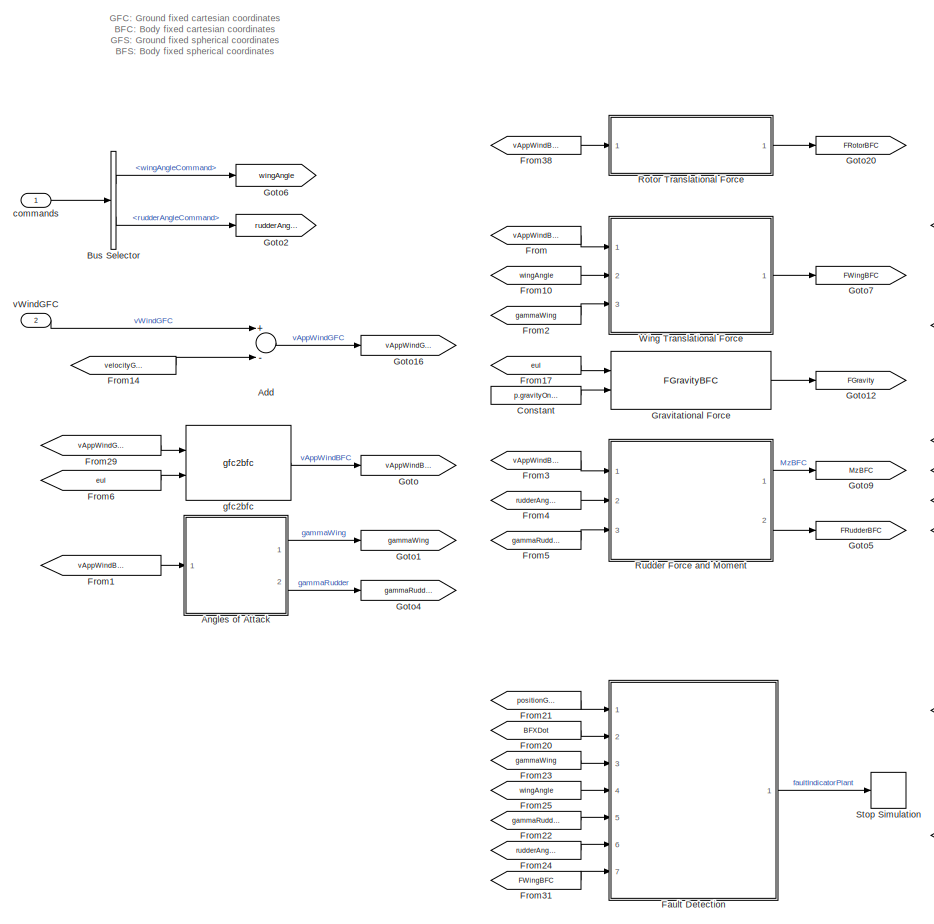
[diagram: Plant - part 1/2, left side, full height]
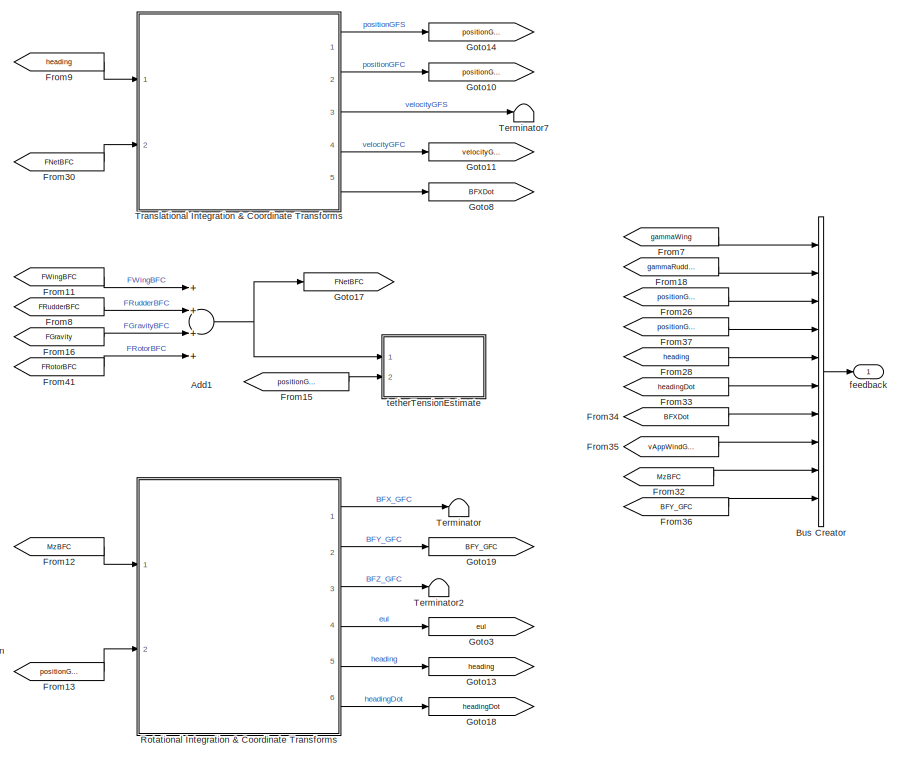
[diagram: Plant - part 2/2, right side, full height]
BLOCK [SubSystem] Plant
  Ports = [2, 1]
  RequestExecContextInheritance = off
BLOCK [Sum] Plant/Add
  InputSameDT = off
  Inputs = +-
  OutDataTypeStr = Inherit: Inherit via internal rule
  Ports = [2, 1]
  SaturateOnIntegerOverflow = off
BLOCK [Sum] Plant/Add1
  InputSameDT = off
  Inputs = ++++
  OutDataTypeStr = Inherit: Inherit via internal rule
  Ports = [4, 1]
  SaturateOnIntegerOverflow = off
BLOCK [SubSystem] Plant/Angles of Attack
  Ports = [1, 2]
  RequestExecContextInheritance = off
BLOCK [Trigonometry] Plant/Angles of Attack/Atan1
  Operator = atan2
  Ports = [2, 1]
BLOCK [Trigonometry] Plant/Angles of Attack/Atan2
  Operator = atan2
  Ports = [2, 1]
BLOCK [Demux] Plant/Angles of Attack/Demux
  DisplayOption = bar
  Outputs = 3
  Ports = [1, 3]
BLOCK [Demux] Plant/Angles of Attack/Demux1
  DisplayOption = bar
  Outputs = 3
  Ports = [1, 3]
BLOCK [Gain] Plant/Angles of Attack/Gain2
  Gain = -1
  OutDataTypeStr = Inherit: Inherit via internal rule
  ParamDataTypeStr = Inherit: Inherit via internal rule
  SaturateOnIntegerOverflow = off
BLOCK [Gain] Plant/Angles of Attack/Gain3
  Gain = -1
  OutDataTypeStr = Inherit: Inherit via internal rule
  ParamDataTypeStr = Inherit: Inherit via internal rule
  SaturateOnIntegerOverflow = off
BLOCK [Terminator] Plant/Angles of Attack/Terminator1
BLOCK [Terminator] Plant/Angles of Attack/Terminator2
BLOCK [Reference] Plant/Angles of Attack/deadband  REF=myLibrary/deadband
  Ports = [1, 1]
  SourceBlock = myLibrary/deadband
  SourceType = SubSystem
BLOCK [Reference] Plant/Angles of Attack/deadband1  REF=myLibrary/deadband
  Ports = [1, 1]
  SourceBlock = myLibrary/deadband
  SourceType = SubSystem
BLOCK [Outport] Plant/Angles of Attack/gammaRudder
  IconDisplay = Port number
  Port = 2
BLOCK [Outport] Plant/Angles of Attack/gammaWing
  IconDisplay = Port number
BLOCK [Inport] Plant/Angles of Attack/vAppWindBFC
  IconDisplay = Port number
BLOCK [BusCreator] Plant/Bus Creator
  DisplayOption = bar
  InheritFromInputs = on
  Inputs = 10
  OutDataTypeStr = Bus: busPlantFeedback
  Ports = [10, 1]
BLOCK [BusSelector] Plant/Bus Selector
  OutputAsBus = off
  OutputSignals = wingAngleCommand,rudderAngleCommand
  Ports = [1, 2]
BLOCK [Constant] Plant/Constant
  Value = p.gravityOnOff
BLOCK [SubSystem] Plant/Fault Detection
  Ports = [7, 1]
  RequestExecContextInheritance = off
BLOCK [Inport] Plant/Fault Detection/FNetBFC
  IconDisplay = Port number
  Port = 7
BLOCK [From] Plant/Fault Detection/From
  GotoTag = radiusFault
BLOCK [From] Plant/Fault Detection/From1
  GotoTag = speedFault
BLOCK [From] Plant/Fault Detection/From2
  GotoTag = azimuthFault
BLOCK [From] Plant/Fault Detection/From3
  GotoTag = zenithFault
BLOCK [From] Plant/Fault Detection/From4
  GotoTag = wingStallFault
BLOCK [From] Plant/Fault Detection/From5
  GotoTag = rudderStallFault
BLOCK [From] Plant/Fault Detection/From6
  GotoTag = FNetWingBFZFault
BLOCK [Goto] Plant/Fault Detection/Goto
  GotoTag = radiusFault
BLOCK [Goto] Plant/Fault Detection/Goto1
  GotoTag = speedFault
BLOCK [Goto] Plant/Fault Detection/Goto2
  GotoTag = azimuthFault
BLOCK [Goto] Plant/Fault Detection/Goto3
  GotoTag = zenithFault
BLOCK [Goto] Plant/Fault Detection/Goto4
  GotoTag = wingStallFault
BLOCK [Goto] Plant/Fault Detection/Goto5
  GotoTag = rudderStallFault
BLOCK [Goto] Plant/Fault Detection/Goto6
  GotoTag = FNetWingBFZFault
BLOCK [Logic] Plant/Fault Detection/Logical Operator
  AllPortsSameDT = off
  Inputs = 7
  Operator = OR
  OutDataTypeStr = boolean
  Ports = [7, 1]
BLOCK [SubSystem] Plant/Fault Detection/Net Force In BFZ Direction Fault
  Ports = [1, 1]
  RequestExecContextInheritance = off
BLOCK [Reference] Plant/Fault Detection/Net Force In BFZ Direction Fault/Compare To Constant  REF=simulink/Logic and Bit
Operations/Compare
To Constant
  Ports = [1, 1]
  SourceBlock = simulink/Logic and Bit\nOperations/Compare\nTo Constant
  SourceProductBaseCode = SL
  SourceProductName = Simulink
  SourceType = Compare To Constant
BLOCK [Constant] Plant/Fault Detection/Net Force In BFZ Direction Fault/Constant3
  Value = 0
BLOCK [Demux] Plant/Fault Detection/Net Force In BFZ Direction Fault/Demux
  DisplayOption = bar
  Outputs = 3
  Ports = [1, 3]
BLOCK [Inport] Plant/Fault Detection/Net Force In BFZ Direction Fault/FNetWingBFZ
  IconDisplay = Port number
BLOCK [Outport] Plant/Fault Detection/Net Force In BFZ Direction Fault/FNetWingBFZFault
  IconDisplay = Port number
BLOCK [Product] Plant/Fault Detection/Net Force In BFZ Direction Fault/Product
  InputSameDT = off
  OutDataTypeStr = Inherit: Inherit via internal rule
  Ports = [2, 1]
  RndMeth = Floor
  SaturateOnIntegerOverflow = off
BLOCK [Terminator] Plant/Fault Detection/Net Force In BFZ Direction Fault/Terminator
BLOCK [Terminator] Plant/Fault Detection/Net Force In BFZ Direction Fault/Terminator1
BLOCK [SubSystem] Plant/Fault Detection/Position Fault
  Ports = [1, 3]
  RequestExecContextInheritance = off
BLOCK [SubSystem] Plant/Fault Detection/Position Fault/Azimuth Fault
  Ports = [1, 1]
  RequestExecContextInheritance = off
BLOCK [Abs] Plant/Fault Detection/Position Fault/Azimuth Fault/Abs
  SaturateOnIntegerOverflow = off
BLOCK [Reference] Plant/Fault Detection/Position Fault/Azimuth Fault/Compare To Constant  REF=simulink/Logic and Bit
Operations/Compare
To Constant
  Ports = [1, 1]
  SourceBlock = simulink/Logic and Bit\nOperations/Compare\nTo Constant
  SourceProductBaseCode = SL
  SourceProductName = Simulink
  SourceType = Compare To Constant
BLOCK [Outport] Plant/Fault Detection/Position Fault/Azimuth Fault/fault
  IconDisplay = Port number
BLOCK [Inport] Plant/Fault Detection/Position Fault/Azimuth Fault/theta
  IconDisplay = Port number
BLOCK [Constant] Plant/Fault Detection/Position Fault/Constant1
  Value = 0
BLOCK [Constant] Plant/Fault Detection/Position Fault/Constant2
BLOCK [Constant] Plant/Fault Detection/Position Fault/Constant3
BLOCK [Demux] Plant/Fault Detection/Position Fault/Demux
  DisplayOption = bar
  Outputs = 3
  Ports = [1, 3]
BLOCK [Product] Plant/Fault Detection/Position Fault/Product
  InputSameDT = off
  OutDataTypeStr = Inherit: Inherit via internal rule
  Ports = [2, 1]
  RndMeth = Floor
  SaturateOnIntegerOverflow = off
BLOCK [Product] Plant/Fault Detection/Position Fault/Product1
  InputSameDT = off
  OutDataTypeStr = Inherit: Inherit via internal rule
  Ports = [2, 1]
  RndMeth = Floor
  SaturateOnIntegerOverflow = off
BLOCK [Product] Plant/Fault Detection/Position Fault/Product2
  InputSameDT = off
  OutDataTypeStr = Inherit: Inherit via internal rule
  Ports = [2, 1]
  RndMeth = Floor
  SaturateOnIntegerOverflow = off
BLOCK [SubSystem] Plant/Fault Detection/Position Fault/Radius Fault
  Ports = [1, 1]
  RequestExecContextInheritance = off
BLOCK [Abs] Plant/Fault Detection/Position Fault/Radius Fault/Abs
  SaturateOnIntegerOverflow = off
BLOCK [Sum] Plant/Fault Detection/Position Fault/Radius Fault/Add
  InputSameDT = off
  Inputs = +-
  OutDataTypeStr = Inherit: Inherit via internal rule
  Ports = [2, 1]
  SaturateOnIntegerOverflow = off
BLOCK [Reference] Plant/Fault Detection/Position Fault/Radius Fault/Compare To Constant  REF=simulink/Logic and Bit
Operations/Compare
To Constant
  Ports = [1, 1]
  SourceBlock = simulink/Logic and Bit\nOperations/Compare\nTo Constant
  SourceProductBaseCode = SL
  SourceProductName = Simulink
  SourceType = Compare To Constant
BLOCK [Product] Plant/Fault Detection/Position Fault/Radius Fault/Divide
  InputSameDT = off
  Inputs = */
  OutDataTypeStr = Inherit: Inherit via internal rule
  Ports = [2, 1]
  RndMeth = Floor
  SaturateOnIntegerOverflow = off
BLOCK [Outport] Plant/Fault Detection/Position Fault/Radius Fault/fault
  IconDisplay = Port number
BLOCK [Inport] Plant/Fault Detection/Position Fault/Radius Fault/r
  IconDisplay = Port number
BLOCK [Constant] Plant/Fault Detection/Position Fault/Radius Fault/r Target
  Value = p.initPositionGFS(1)
BLOCK [SubSystem] Plant/Fault Detection/Position Fault/Zenith Fault
  Ports = [1, 1]
  RequestExecContextInheritance = off
BLOCK [Abs] Plant/Fault Detection/Position Fault/Zenith Fault/Abs
  SaturateOnIntegerOverflow = off
BLOCK [Reference] Plant/Fault Detection/Position Fault/Zenith Fault/Compare To Constant  REF=simulink/Logic and Bit
Operations/Compare
To Constant
  Ports = [1, 1]
  SourceBlock = simulink/Logic and Bit\nOperations/Compare\nTo Constant
  SourceProductBaseCode = SL
  SourceProductName = Simulink
  SourceType = Compare To Constant
BLOCK [Reference] Plant/Fault Detection/Position Fault/Zenith Fault/Compare To Constant1  REF=simulink/Logic and Bit
Operations/Compare
To Constant
  Ports = [1, 1]
  SourceBlock = simulink/Logic and Bit\nOperations/Compare\nTo Constant
  SourceProductBaseCode = SL
  SourceProductName = Simulink
  SourceType = Compare To Constant
BLOCK [Logic] Plant/Fault Detection/Position Fault/Zenith Fault/Logical Operator
  AllPortsSameDT = off
  Operator = OR
  OutDataTypeStr = boolean
  Ports = [2, 1]
BLOCK [Outport] Plant/Fault Detection/Position Fault/Zenith Fault/fault
  IconDisplay = Port number
BLOCK [Inport] Plant/Fault Detection/Position Fault/Zenith Fault/phi
  IconDisplay = Port number
BLOCK [Outport] Plant/Fault Detection/Position Fault/azimuthFault
  IconDisplay = Port number
  Port = 2
BLOCK [Inport] Plant/Fault Detection/Position Fault/positionGFS
  IconDisplay = Port number
BLOCK [Outport] Plant/Fault Detection/Position Fault/radiusFault
  IconDisplay = Port number
BLOCK [Outport] Plant/Fault Detection/Position Fault/zenithFault
  IconDisplay = Port number
  Port = 3
BLOCK [SubSystem] Plant/Fault Detection/Rudder Stall Fault
  Ports = [2, 1]
  RequestExecContextInheritance = off
BLOCK [Sum] Plant/Fault Detection/Rudder Stall Fault/Add
  InputSameDT = off
  OutDataTypeStr = Inherit: Inherit via internal rule
  Ports = [2, 1]
  SaturateOnIntegerOverflow = off
BLOCK [RelationalOperator] Plant/Fault Detection/Rudder Stall Fault/Compare
  Operator = <=
  OutDataTypeStr = boolean
  Ports = [2, 1]
BLOCK [RelationalOperator] Plant/Fault Detection/Rudder Stall Fault/Compare1
  OutDataTypeStr = boolean
  Ports = [2, 1]
BLOCK [Constant] Plant/Fault Detection/Rudder Stall Fault/Constant
  Value = min(p.rudderTable.alpha)
BLOCK [Constant] Plant/Fault Detection/Rudder Stall Fault/Constant1
  Value = max(p.rudderTable.alpha)
BLOCK [Constant] Plant/Fault Detection/Rudder Stall Fault/Constant3
  Value = 0
BLOCK [Logic] Plant/Fault Detection/Rudder Stall Fault/Logical Operator
  AllPortsSameDT = off
  Operator = OR
  OutDataTypeStr = boolean
  Ports = [2, 1]
BLOCK [Product] Plant/Fault Detection/Rudder Stall Fault/Product
  InputSameDT = off
  OutDataTypeStr = Inherit: Inherit via internal rule
  Ports = [2, 1]
  RndMeth = Floor
  SaturateOnIntegerOverflow = off
BLOCK [Inport] Plant/Fault Detection/Rudder Stall Fault/alphaRudder
  IconDisplay = Port number
BLOCK [Inport] Plant/Fault Detection/Rudder Stall Fault/rudderAngle
  IconDisplay = Port number
  Port = 2
BLOCK [Outport] Plant/Fault Detection/Rudder Stall Fault/rudderStallFault
  IconDisplay = Port number
BLOCK [SubSystem] Plant/Fault Detection/Speed Fault
  Ports = [1, 1]
  RequestExecContextInheritance = off
BLOCK [Reference] Plant/Fault Detection/Speed Fault/Compare To Constant  REF=simulink/Logic and Bit
Operations/Compare
To Constant
  Ports = [1, 1]
  SourceBlock = simulink/Logic and Bit\nOperations/Compare\nTo Constant
  SourceProductBaseCode = SL
  SourceProductName = Simulink
  SourceType = Compare To Constant
BLOCK [Constant] Plant/Fault Detection/Speed Fault/Constant3
BLOCK [Product] Plant/Fault Detection/Speed Fault/Product
  InputSameDT = off
  OutDataTypeStr = Inherit: Inherit via internal rule
  Ports = [2, 1]
  RndMeth = Floor
  SaturateOnIntegerOverflow = off
BLOCK [Inport] Plant/Fault Detection/Speed Fault/speed
  IconDisplay = Port number
BLOCK [Outport] Plant/Fault Detection/Speed Fault/speedFault
  IconDisplay = Port number
BLOCK [SubSystem] Plant/Fault Detection/Wing Stall Fault
  Ports = [2, 1]
  RequestExecContextInheritance = off
BLOCK [Sum] Plant/Fault Detection/Wing Stall Fault/Add
  InputSameDT = off
  OutDataTypeStr = Inherit: Inherit via internal rule
  Ports = [2, 1]
  SaturateOnIntegerOverflow = off
BLOCK [RelationalOperator] Plant/Fault Detection/Wing Stall Fault/Compare
  Operator = >
  OutDataTypeStr = boolean
  Ports = [2, 1]
BLOCK [RelationalOperator] Plant/Fault Detection/Wing Stall Fault/Compare1
  Operator = <
  OutDataTypeStr = boolean
  Ports = [2, 1]
BLOCK [Constant] Plant/Fault Detection/Wing Stall Fault/Constant
  Value = min(p.wingTable.alpha)-eps
BLOCK [Constant] Plant/Fault Detection/Wing Stall Fault/Constant1
  Value = max(p.wingTable.alpha)+eps
BLOCK [Constant] Plant/Fault Detection/Wing Stall Fault/Constant3
BLOCK [Logic] Plant/Fault Detection/Wing Stall Fault/Logical Operator
  AllPortsSameDT = off
  Operator = OR
  OutDataTypeStr = boolean
  Ports = [2, 1]
BLOCK [Product] Plant/Fault Detection/Wing Stall Fault/Product
  InputSameDT = off
  OutDataTypeStr = Inherit: Inherit via internal rule
  Ports = [2, 1]
  RndMeth = Floor
  SaturateOnIntegerOverflow = off
BLOCK [Inport] Plant/Fault Detection/Wing Stall Fault/alphaWing
  IconDisplay = Port number
BLOCK [Inport] Plant/Fault Detection/Wing Stall Fault/wingAngle
  IconDisplay = Port number
  Port = 2
BLOCK [Outport] Plant/Fault Detection/Wing Stall Fault/wingStallFault
  IconDisplay = Port number
BLOCK [Outport] Plant/Fault Detection/faultIndicator
  IconDisplay = Port number
BLOCK [Inport] Plant/Fault Detection/gammaRudder
  IconDisplay = Port number
  Port = 5
BLOCK [Inport] Plant/Fault Detection/gammaWing
  IconDisplay = Port number
  Port = 3
BLOCK [Inport] Plant/Fault Detection/positionGFS
  IconDisplay = Port number
BLOCK [Inport] Plant/Fault Detection/rudderAngle
  IconDisplay = Port number
  Port = 6
BLOCK [Inport] Plant/Fault Detection/velocityBFX
  IconDisplay = Port number
  Port = 2
BLOCK [Inport] Plant/Fault Detection/wingAngle
  IconDisplay = Port number
  Port = 4
BLOCK [From] Plant/From
  GotoTag = vAppWindBFC
BLOCK [From] Plant/From1
  GotoTag = vAppWindBFC
BLOCK [From] Plant/From10
  GotoTag = wingAngle
BLOCK [From] Plant/From11
  GotoTag = FWingBFC
BLOCK [From] Plant/From12
  GotoTag = MzBFC
BLOCK [From] Plant/From13
  GotoTag = positionGFC
BLOCK [From] Plant/From14
  GotoTag = velocityGFC
BLOCK [From] Plant/From15
  GotoTag = positionGFS
BLOCK [From] Plant/From16
  GotoTag = FGravity
BLOCK [From] Plant/From17
  GotoTag = eul
BLOCK [From] Plant/From18
  GotoTag = gammaRudder
BLOCK [From] Plant/From2
  GotoTag = gammaWing
BLOCK [From] Plant/From20
  GotoTag = BFXDot
BLOCK [From] Plant/From21
  GotoTag = positionGFS
BLOCK [From] Plant/From22
  GotoTag = gammaRudder
BLOCK [From] Plant/From23
  GotoTag = gammaWing
BLOCK [From] Plant/From24
  GotoTag = rudderAngle
BLOCK [From] Plant/From25
  GotoTag = wingAngle
BLOCK [From] Plant/From26
  GotoTag = positionGFS
BLOCK [From] Plant/From28
  GotoTag = heading
BLOCK [From] Plant/From29
  GotoTag = vAppWindGFC
BLOCK [From] Plant/From3
  GotoTag = vAppWindBFC
BLOCK [From] Plant/From30
  GotoTag = FNetBFC
BLOCK [From] Plant/From31
  GotoTag = FWingBFC
BLOCK [From] Plant/From32
  GotoTag = MzBFC
BLOCK [From] Plant/From33
  GotoTag = headingDot
BLOCK [From] Plant/From34
  GotoTag = BFXDot
BLOCK [From] Plant/From35
  GotoTag = vAppWindGFC
BLOCK [From] Plant/From36
  GotoTag = BFY_GFC
BLOCK [From] Plant/From37
  GotoTag = positionGFC
BLOCK [From] Plant/From38
  GotoTag = vAppWindBFC
BLOCK [From] Plant/From4
  GotoTag = rudderAngle
BLOCK [From] Plant/From41
  GotoTag = FRotorBFC
BLOCK [From] Plant/From5
  GotoTag = gammaRudder
BLOCK [From] Plant/From6
  GotoTag = eul
BLOCK [From] Plant/From7
  GotoTag = gammaWing
BLOCK [From] Plant/From8
  GotoTag = FRudderBFC
BLOCK [From] Plant/From9
  GotoTag = heading
BLOCK [Goto] Plant/Goto
  GotoTag = vAppWindBFC
BLOCK [Goto] Plant/Goto1
  GotoTag = gammaWing
BLOCK [Goto] Plant/Goto10
  GotoTag = positionGFC
BLOCK [Goto] Plant/Goto11
  GotoTag = velocityGFC
BLOCK [Goto] Plant/Goto12
  GotoTag = FGravity
BLOCK [Goto] Plant/Goto13
  GotoTag = heading
BLOCK [Goto] Plant/Goto14
  GotoTag = positionGFS
BLOCK [Goto] Plant/Goto16
  GotoTag = vAppWindGFC
BLOCK [Goto] Plant/Goto17
  GotoTag = FNetBFC
BLOCK [Goto] Plant/Goto18
  GotoTag = headingDot
BLOCK [Goto] Plant/Goto19
  GotoTag = BFY_GFC
BLOCK [Goto] Plant/Goto2
  GotoTag = rudderAngle
BLOCK [Goto] Plant/Goto20
  GotoTag = FRotorBFC
BLOCK [Goto] Plant/Goto3
  GotoTag = eul
BLOCK [Goto] Plant/Goto4
  GotoTag = gammaRudder
BLOCK [Goto] Plant/Goto5
  GotoTag = FRudderBFC
BLOCK [Goto] Plant/Goto6
  GotoTag = wingAngle
BLOCK [Goto] Plant/Goto7
  GotoTag = FWingBFC
BLOCK [Goto] Plant/Goto8
  GotoTag = BFXDot
BLOCK [Goto] Plant/Goto9
  GotoTag = MzBFC
BLOCK [Reference] Plant/Gravitational Force  REF=myLibrary/FGravityBFC
  Ports = [2, 1]
  SourceBlock = myLibrary/FGravityBFC
  SourceType = SubSystem
BLOCK [SubSystem] Plant/Rotational Integration & Coordinate Transforms
  Ports = [2, 6]
  RequestExecContextInheritance = off
BLOCK [Outport] Plant/Rotational Integration & Coordinate Transforms/BFX_GFC
  IconDisplay = Port number
BLOCK [Outport] Plant/Rotational Integration & Coordinate Transforms/BFY_GFC
  IconDisplay = Port number
  Port = 2
BLOCK [Outport] Plant/Rotational Integration & Coordinate Transforms/BFZ_GFC
  IconDisplay = Port number
  Port = 3
BLOCK [From] Plant/Rotational Integration & Coordinate Transforms/From
  GotoTag = positionGFC
BLOCK [From] Plant/Rotational Integration & Coordinate Transforms/From1
  GotoTag = rHat
BLOCK [From] Plant/Rotational Integration & Coordinate Transforms/From10
  GotoTag = phiHat
BLOCK [From] Plant/Rotational Integration & Coordinate Transforms/From11
  GotoTag = BFZ_GFC
BLOCK [From] Plant/Rotational Integration & Coordinate Transforms/From12
  GotoTag = BFY_GFC
BLOCK [From] Plant/Rotational Integration & Coordinate Transforms/From13
  GotoTag = BFX_GFC
BLOCK [From] Plant/Rotational Integration & Coordinate Transforms/From14
  GotoTag = headingDot
BLOCK [From] Plant/Rotational Integration & Coordinate Transforms/From2
  GotoTag = rHat
BLOCK [From] Plant/Rotational Integration & Coordinate Transforms/From3
  GotoTag = heading
BLOCK [From] Plant/Rotational Integration & Coordinate Transforms/From4
  GotoTag = rHat
BLOCK [From] Plant/Rotational Integration & Coordinate Transforms/From5
  GotoTag = rHat
BLOCK [From] Plant/Rotational Integration & Coordinate Transforms/From6
  GotoTag = heading
BLOCK [From] Plant/Rotational Integration & Coordinate Transforms/From7
  GotoTag = thetaHat
BLOCK [From] Plant/Rotational Integration & Coordinate Transforms/From8
  GotoTag = heading
BLOCK [From] Plant/Rotational Integration & Coordinate Transforms/From9
  GotoTag = heading
BLOCK [Gain] Plant/Rotational Integration & Coordinate Transforms/Gain
  Gain = 1/p.J
  OutDataTypeStr = Inherit: Inherit via internal rule
  ParamDataTypeStr = Inherit: Inherit via internal rule
  SaturateOnIntegerOverflow = off
BLOCK [Gain] Plant/Rotational Integration & Coordinate Transforms/Gain4
  Gain = -1
  OutDataTypeStr = Inherit: Inherit via internal rule
  ParamDataTypeStr = Inherit: Inherit via internal rule
  SaturateOnIntegerOverflow = off
BLOCK [Goto] Plant/Rotational Integration & Coordinate Transforms/Goto
  GotoTag = positionGFC
BLOCK [Goto] Plant/Rotational Integration & Coordinate Transforms/Goto1
  GotoTag = headingDot
BLOCK [Goto] Plant/Rotational Integration & Coordinate Transforms/Goto2
  GotoTag = rHat
BLOCK [Goto] Plant/Rotational Integration & Coordinate Transforms/Goto3
  GotoTag = thetaHat
BLOCK [Goto] Plant/Rotational Integration & Coordinate Transforms/Goto4
  GotoTag = phiHat
BLOCK [Goto] Plant/Rotational Integration & Coordinate Transforms/Goto5
  GotoTag = heading
BLOCK [Goto] Plant/Rotational Integration & Coordinate Transforms/Goto6
  GotoTag = BFZ_GFC
BLOCK [Goto] Plant/Rotational Integration & Coordinate Transforms/Goto7
  GotoTag = BFX_GFC
BLOCK [Goto] Plant/Rotational Integration & Coordinate Transforms/Goto8
  GotoTag = BFY_GFC
BLOCK [Integrator] Plant/Rotational Integration & Coordinate Transforms/Integrator
  InitialCondition = p.initOmega
  Ports = [1, 1]
BLOCK [Integrator] Plant/Rotational Integration & Coordinate Transforms/Integrator1
  InitialCondition = p.initTwist
  Ports = [1, 1]
BLOCK [Inport] Plant/Rotational Integration & Coordinate Transforms/MzBFC
  IconDisplay = Port number
  PortDimensions = 1
BLOCK [Reshape] Plant/Rotational Integration & Coordinate Transforms/Reshape
  OutputDimensions = [3 1]
  Ports = [1, 1]
BLOCK [Reshape] Plant/Rotational Integration & Coordinate Transforms/Reshape1
  OutputDimensions = [3 1]
  Ports = [1, 1]
BLOCK [Reshape] Plant/Rotational Integration & Coordinate Transforms/Reshape2
  OutputDimensions = [3 1]
  Ports = [1, 1]
BLOCK [SignalSpecification] Plant/Rotational Integration & Coordinate Transforms/Signal Specification
  Dimensions = [1 3]
BLOCK [SignalSpecification] Plant/Rotational Integration & Coordinate Transforms/Signal Specification1
  Dimensions = [1 3]
BLOCK [SignalSpecification] Plant/Rotational Integration & Coordinate Transforms/Signal Specification2
  Dimensions = [1 3]
BLOCK [Outport] Plant/Rotational Integration & Coordinate Transforms/eul
  IconDisplay = Port number
  Port = 4
  PortDimensions = 3
BLOCK [Outport] Plant/Rotational Integration & Coordinate Transforms/heading
  IconDisplay = Port number
  Port = 5
  PortDimensions = 1
BLOCK [Reference] Plant/Rotational Integration & Coordinate Transforms/polarUnitVecs  REF=lowLevel/polarUnitVecs
  Ports = [1, 3]
  SourceBlock = lowLevel/polarUnitVecs
  SourceType = SubSystem
BLOCK [Inport] Plant/Rotational Integration & Coordinate Transforms/positionGFC
  IconDisplay = Port number
  Port = 2
BLOCK [Outport] Plant/Rotational Integration & Coordinate Transforms/psiDot
  IconDisplay = Port number
  Port = 6
  PortDimensions = 1
BLOCK [Reference] Plant/Rotational Integration & Coordinate Transforms/rotateAroundVec  REF=lowLevel/rotateAroundVec
  Ports = [3, 1]
  SourceBlock = lowLevel/rotateAroundVec
  SourceType = SubSystem
BLOCK [Reference] Plant/Rotational Integration & Coordinate Transforms/rotateAroundVec1  REF=lowLevel/rotateAroundVec
  Ports = [3, 1]
  SourceBlock = lowLevel/rotateAroundVec
  SourceType = SubSystem
BLOCK [Reference] Plant/Rotational Integration & Coordinate Transforms/rotateAroundVec2  REF=lowLevel/rotateAroundVec
  Ports = [3, 1]
  SourceBlock = lowLevel/rotateAroundVec
  SourceType = SubSystem
BLOCK [Reference] Plant/Rotational Integration & Coordinate Transforms/unitVecs2Eul  REF=myLibrary/unitVecs2Eul
  Ports = [3, 1]
  SourceBlock = myLibrary/unitVecs2Eul
  SourceType = SubSystem
BLOCK [SubSystem] Plant/Rotor Translational Force
  Ports = [1, 1]
  RequestExecContextInheritance = off
BLOCK [Constant] Plant/Rotor Translational Force/Constant
  Value = 0.5
BLOCK [Constant] Plant/Rotor Translational Force/Constant1
  Value = 0
BLOCK [Constant] Plant/Rotor Translational Force/Constant2
  Value = p.refAreaRotor
BLOCK [Constant] Plant/Rotor Translational Force/Constant3
  Value = turbineCp
BLOCK [Constant] Plant/Rotor Translational Force/Constant4
  Value = 3/2
BLOCK [Constant] Plant/Rotor Translational Force/Constant5
  Value = p.numRotors
BLOCK [Demux] Plant/Rotor Translational Force/Demux1
  DisplayOption = bar
  Outputs = 3
  Ports = [1, 3]
BLOCK [DotProduct] Plant/Rotor Translational Force/Dot Product
  OutDataTypeStr = Inherit: Inherit via internal rule
BLOCK [Outport] Plant/Rotor Translational Force/FNetBFC
  IconDisplay = Port number
BLOCK [Gain] Plant/Rotor Translational Force/Gain1
  Gain = 0.5*p.rho*p.refAreaRotor*p.dragCoefficientRotor*p.numRotors
  OutDataTypeStr = Inherit: Inherit via internal rule
  ParamDataTypeStr = Inherit: Inherit via internal rule
  SaturateOnIntegerOverflow = off
BLOCK [Product] Plant/Rotor Translational Force/Multiply
  InputSameDT = off
  Inputs = 5
  OutDataTypeStr = Inherit: Inherit via internal rule
  Ports = [5, 1]
  RndMeth = Floor
  SaturateOnIntegerOverflow = off
BLOCK [Mux] Plant/Rotor Translational Force/Mux1
  DisplayOption = bar
  Inputs = 3
  Ports = [3, 1]
BLOCK [Math] Plant/Rotor Translational Force/Pow
  Operator = pow
  Ports = [2, 1]
  RndMeth = Zero
BLOCK [Product] Plant/Rotor Translational Force/Product2
  InputSameDT = off
  OutDataTypeStr = Inherit: Inherit via internal rule
  Ports = [2, 1]
  RndMeth = Floor
  SaturateOnIntegerOverflow = off
BLOCK [Terminator] Plant/Rotor Translational Force/Terminator
BLOCK [Terminator] Plant/Rotor Translational Force/Terminator1
BLOCK [Reference] Plant/Rotor Translational Force/normalize1  REF=myLibrary/normalize
  Ports = [1, 1]
  SourceBlock = myLibrary/normalize
  SourceType = SubSystem
BLOCK [Inport] Plant/Rotor Translational Force/vWindAppBFC
  IconDisplay = Port number
BLOCK [SubSystem] Plant/Rudder Force and Moment
  Ports = [3, 2]
  RequestExecContextInheritance = off
BLOCK [Sum] Plant/Rudder Force and Moment/Add
  InputSameDT = off
  OutDataTypeStr = Inherit: Inherit via internal rule
  Ports = [2, 1]
  SaturateOnIntegerOverflow = off
BLOCK [Sum] Plant/Rudder Force and Moment/Add1
  InputSameDT = off
  OutDataTypeStr = Inherit: Inherit via internal rule
  Ports = [2, 1]
  SaturateOnIntegerOverflow = off
BLOCK [Sum] Plant/Rudder Force and Moment/Add2
  InputSameDT = off
  Inputs = +++
  OutDataTypeStr = Inherit: Inherit via internal rule
  Ports = [3, 1]
  SaturateOnIntegerOverflow = off
BLOCK [Constant] Plant/Rudder Force and Moment/Constant
  Value = 2
BLOCK [Constant] Plant/Rudder Force and Moment/Constant1
  Value = p.rudderTable.kd0
BLOCK [DotProduct] Plant/Rudder Force and Moment/Dot Product
  OutDataTypeStr = Inherit: Inherit via internal rule
BLOCK [Outport] Plant/Rudder Force and Moment/FDragRudderBFC
  IconDisplay = Port number
  Port = 2
BLOCK [From] Plant/Rudder Force and Moment/From
  GotoTag = vAppWindBody
BLOCK [From] Plant/Rudder Force and Moment/From1
  GotoTag = vAppWindBody
BLOCK [From] Plant/Rudder Force and Moment/From2
  GotoTag = rudderAngle
BLOCK [From] Plant/Rudder Force and Moment/From3
  GotoTag = vAppWindBodyNorm
BLOCK [From] Plant/Rudder Force and Moment/From4
  GotoTag = gammaRudder
BLOCK [From] Plant/Rudder Force and Moment/From5
  GotoTag = rudderAngle
BLOCK [From] Plant/Rudder Force and Moment/From6
  GotoTag = gammaRudder
BLOCK [From] Plant/Rudder Force and Moment/From8
  GotoTag = gammaRudder
BLOCK [Gain] Plant/Rudder Force and Moment/Gain
  Gain = p.momentArm
  OutDataTypeStr = Inherit: Inherit via internal rule
  ParamDataTypeStr = Inherit: Inherit via internal rule
  SaturateOnIntegerOverflow = off
BLOCK [Gain] Plant/Rudder Force and Moment/Gain1
  Gain = 0.5*p.rho*p.refAreaRudder
  OutDataTypeStr = Inherit: Inherit via internal rule
  ParamDataTypeStr = Inherit: Inherit via internal rule
  SaturateOnIntegerOverflow = off
BLOCK [Gain] Plant/Rudder Force and Moment/Gain2
  Gain = 0.5*p.rho*p.refAreaRudder
  OutDataTypeStr = Inherit: Inherit via internal rule
  ParamDataTypeStr = Inherit: Inherit via internal rule
  SaturateOnIntegerOverflow = off
BLOCK [Gain] Plant/Rudder Force and Moment/Gain3
  Gain = p.rudderTable.kl1
  OutDataTypeStr = Inherit: Inherit via internal rule
  ParamDataTypeStr = Inherit: Inherit via internal rule
  SaturateOnIntegerOverflow = off
BLOCK [Gain] Plant/Rudder Force and Moment/Gain4
  Gain = p.rudderTable.kd2
  OutDataTypeStr = Inherit: Inherit via internal rule
  ParamDataTypeStr = Inherit: Inherit via internal rule
  SaturateOnIntegerOverflow = off
BLOCK [Gain] Plant/Rudder Force and Moment/Gain5
  Gain = p.rudderTable.kd1
  OutDataTypeStr = Inherit: Inherit via internal rule
  ParamDataTypeStr = Inherit: Inherit via internal rule
  SaturateOnIntegerOverflow = off
BLOCK [Goto] Plant/Rudder Force and Moment/Goto
  GotoTag = vAppWindBody
BLOCK [Goto] Plant/Rudder Force and Moment/Goto1
  GotoTag = rudderAngle
BLOCK [Goto] Plant/Rudder Force and Moment/Goto2
  GotoTag = gammaRudder
BLOCK [Goto] Plant/Rudder Force and Moment/Goto3
  GotoTag = vAppWindBodyNorm
BLOCK [Outport] Plant/Rudder Force and Moment/MzBFC
  IconDisplay = Port number
BLOCK [Math] Plant/Rudder Force and Moment/Pow
  Operator = pow
  Ports = [2, 1]
  RndMeth = Zero
BLOCK [Product] Plant/Rudder Force and Moment/Product
  InputSameDT = off
  OutDataTypeStr = Inherit: Inherit via internal rule
  Ports = [2, 1]
  RndMeth = Floor
  SaturateOnIntegerOverflow = off
BLOCK [Product] Plant/Rudder Force and Moment/Product1
  InputSameDT = off
  OutDataTypeStr = Inherit: Inherit via internal rule
  Ports = [2, 1]
  RndMeth = Floor
  SaturateOnIntegerOverflow = off
BLOCK [Product] Plant/Rudder Force and Moment/Product2
  InputSameDT = off
  OutDataTypeStr = Inherit: Inherit via internal rule
  Ports = [2, 1]
  RndMeth = Floor
  SaturateOnIntegerOverflow = off
BLOCK [Product] Plant/Rudder Force and Moment/Product4
  InputSameDT = off
  OutDataTypeStr = Inherit: Inherit via internal rule
  Ports = [2, 1]
  RndMeth = Floor
  SaturateOnIntegerOverflow = off
BLOCK [Trigonometry] Plant/Rudder Force and Moment/Trigonometric Function
  Operator = cos
  Ports = [1, 1]
BLOCK [Inport] Plant/Rudder Force and Moment/gammaRudder
  IconDisplay = Port number
  Port = 3
BLOCK [Reference] Plant/Rudder Force and Moment/normalize1  REF=myLibrary/normalize
  Ports = [1, 1]
  SourceBlock = myLibrary/normalize
  SourceType = SubSystem
BLOCK [Inport] Plant/Rudder Force and Moment/rudderAngle
  IconDisplay = Port number
  Port = 2
BLOCK [Inport] Plant/Rudder Force and Moment/vWindAppBFC
  IconDisplay = Port number
BLOCK [Stop] Plant/Stop Simulation
BLOCK [Terminator] Plant/Terminator
BLOCK [Terminator] Plant/Terminator2
BLOCK [Terminator] Plant/Terminator7
BLOCK [SubSystem] Plant/Translational Integration & Coordinate Transforms
  Ports = [2, 5]
  RequestExecContextInheritance = off
BLOCK [Outport] Plant/Translational Integration & Coordinate Transforms/BFXDot
  IconDisplay = Port number
  Port = 5
BLOCK [Constant] Plant/Translational Integration & Coordinate Transforms/Constant
  Value = 0
BLOCK [Constant] Plant/Translational Integration & Coordinate Transforms/Constant2
  Value = 1/p.mass
BLOCK [Constant] Plant/Translational Integration & Coordinate Transforms/Constant3
  Value = 1/p.initPositionGFS(1)
BLOCK [Constant] Plant/Translational Integration & Coordinate Transforms/Constant4
  Value = p.initPositionGFS(1)
BLOCK [Trigonometry] Plant/Translational Integration & Coordinate Transforms/Cos
  Operator = cos
  Ports = [1, 1]
BLOCK [Trigonometry] Plant/Translational Integration & Coordinate Transforms/Cos1
  Ports = [1, 1]
BLOCK [Trigonometry] Plant/Translational Integration & Coordinate Transforms/Cos2
  Ports = [1, 1]
BLOCK [Demux] Plant/Translational Integration & Coordinate Transforms/Demux
  DisplayOption = bar
  Outputs = 3
  Ports = [1, 3]
BLOCK [Product] Plant/Translational Integration & Coordinate Transforms/Divide
  InputSameDT = off
  Inputs = */
  OutDataTypeStr = Inherit: Inherit via internal rule
  Ports = [2, 1]
  RndMeth = Floor
  SaturateOnIntegerOverflow = off
BLOCK [Inport] Plant/Translational Integration & Coordinate Transforms/FNetBFC
  IconDisplay = Port number
  Port = 2
BLOCK [Fcn] Plant/Translational Integration & Coordinate Transforms/Fcn
  Expr = (pi/2)-u
BLOCK [From] Plant/Translational Integration & Coordinate Transforms/From
  GotoTag = rdot
BLOCK [From] Plant/Translational Integration & Coordinate Transforms/From1
  GotoTag = thetadot
BLOCK [From] Plant/Translational Integration & Coordinate Transforms/From2
  GotoTag = phidot
BLOCK [From] Plant/Translational Integration & Coordinate Transforms/From3
  GotoTag = phi
BLOCK [From] Plant/Translational Integration & Coordinate Transforms/From4
  GotoTag = velocityAngle
BLOCK [From] Plant/Translational Integration & Coordinate Transforms/From5
  GotoTag = BFXdot
BLOCK [From] Plant/Translational Integration & Coordinate Transforms/From6
  GotoTag = velocityAngle
BLOCK [From] Plant/Translational Integration & Coordinate Transforms/From7
  GotoTag = positionGFS
BLOCK [From] Plant/Translational Integration & Coordinate Transforms/From8
  GotoTag = BFXdot
BLOCK [From] Plant/Translational Integration & Coordinate Transforms/From9
  GotoTag = BFXdot
BLOCK [Gain] Plant/Translational Integration & Coordinate Transforms/Gain
  Gain = -1
  OutDataTypeStr = Inherit: Inherit via internal rule
  ParamDataTypeStr = Inherit: Inherit via internal rule
  SaturateOnIntegerOverflow = off
BLOCK [Goto] Plant/Translational Integration & Coordinate Transforms/Goto1
  GotoTag = velocityAngle
BLOCK [Goto] Plant/Translational Integration & Coordinate Transforms/Goto2
  GotoTag = thetadot
BLOCK [Goto] Plant/Translational Integration & Coordinate Transforms/Goto3
  GotoTag = phidot
BLOCK [Goto] Plant/Translational Integration & Coordinate Transforms/Goto4
  GotoTag = phi
BLOCK [Goto] Plant/Translational Integration & Coordinate Transforms/Goto5
  GotoTag = rdot
BLOCK [Goto] Plant/Translational Integration & Coordinate Transforms/Goto6
  GotoTag = positionGFS
BLOCK [Goto] Plant/Translational Integration & Coordinate Transforms/Goto7
  GotoTag = BFXdot
BLOCK [Integrator] Plant/Translational Integration & Coordinate Transforms/Integrator3
  InitialCondition = p.initPositionGFS(3)
  Ports = [1, 1]
BLOCK [Integrator] Plant/Translational Integration & Coordinate Transforms/Integrator5
  InitialCondition = p.initPositionGFS(2)
  Ports = [1, 1]
BLOCK [Integrator] Plant/Translational Integration & Coordinate Transforms/Integrator6
  InitialCondition = p.initPositionGFS(1)
  Ports = [1, 1]
BLOCK [Integrator] Plant/Translational Integration & Coordinate Transforms/Integrator7
  InitialCondition = p.initVelocity
  Ports = [1, 1]
BLOCK [Mux] Plant/Translational Integration & Coordinate Transforms/Mux1
  DisplayOption = bar
  Inputs = 3
  Ports = [3, 1]
BLOCK [Mux] Plant/Translational Integration & Coordinate Transforms/Mux2
  DisplayOption = bar
  Inputs = 3
  Ports = [3, 1]
BLOCK [Product] Plant/Translational Integration & Coordinate Transforms/Product
  InputSameDT = off
  OutDataTypeStr = Inherit: Inherit via internal rule
  Ports = [2, 1]
  RndMeth = Floor
  SaturateOnIntegerOverflow = off
BLOCK [Product] Plant/Translational Integration & Coordinate Transforms/Product1
  InputSameDT = off
  OutDataTypeStr = Inherit: Inherit via internal rule
  Ports = [2, 1]
  RndMeth = Floor
  SaturateOnIntegerOverflow = off
BLOCK [Product] Plant/Translational Integration & Coordinate Transforms/Product2
  InputSameDT = off
  OutDataTypeStr = Inherit: Inherit via internal rule
  Ports = [2, 1]
  RndMeth = Floor
  SaturateOnIntegerOverflow = off
BLOCK [Product] Plant/Translational Integration & Coordinate Transforms/Product3
  InputSameDT = off
  OutDataTypeStr = Inherit: Inherit via internal rule
  Ports = [2, 1]
  RndMeth = Floor
  SaturateOnIntegerOverflow = off
BLOCK [Product] Plant/Translational Integration & Coordinate Transforms/Product5
  InputSameDT = off
  OutDataTypeStr = Inherit: Inherit via internal rule
  Ports = [2, 1]
  RndMeth = Floor
  SaturateOnIntegerOverflow = off
BLOCK [Terminator] Plant/Translational Integration & Coordinate Transforms/Terminator
BLOCK [Terminator] Plant/Translational Integration & Coordinate Transforms/Terminator1
BLOCK [Outport] Plant/Translational Integration & Coordinate Transforms/positionGFC
  IconDisplay = Port number
  Port = 2
  PortDimensions = 3
BLOCK [Outport] Plant/Translational Integration & Coordinate Transforms/positionGFS
  IconDisplay = Port number
  PortDimensions = 3
BLOCK [Inport] Plant/Translational Integration & Coordinate Transforms/psi
  IconDisplay = Port number
BLOCK [Reference] Plant/Translational Integration & Coordinate Transforms/sphPos2crtPos  REF=lowLevel/sphPos2crtPos
  Ports = [1, 1]
  SourceBlock = lowLevel/sphPos2crtPos
  SourceType = SubSystem
BLOCK [Reference] Plant/Translational Integration & Coordinate Transforms/sphVel2crtVel  REF=lowLevel/sphVel2crtVel
  Ports = [2, 1]
  SourceBlock = lowLevel/sphVel2crtVel
  SourceType = SubSystem
BLOCK [Outport] Plant/Translational Integration & Coordinate Transforms/velocityGFC
  IconDisplay = Port number
  Port = 4
  PortDimensions = 3
BLOCK [Outport] Plant/Translational Integration & Coordinate Transforms/velocityGFS
  IconDisplay = Port number
  Port = 3
  PortDimensions = 3
BLOCK [SubSystem] Plant/Wing Translational Force
  Ports = [3, 1]
  RequestExecContextInheritance = off
BLOCK [Sum] Plant/Wing Translational Force/Add1
  InputSameDT = off
  OutDataTypeStr = Inherit: Inherit via internal rule
  Ports = [2, 1]
  SaturateOnIntegerOverflow = off
BLOCK [Sum] Plant/Wing Translational Force/Add2
  InputSameDT = off
  OutDataTypeStr = Inherit: Inherit via internal rule
  Ports = [2, 1]
  SaturateOnIntegerOverflow = off
BLOCK [Sum] Plant/Wing Translational Force/Add3
  InputSameDT = off
  OutDataTypeStr = Inherit: Inherit via internal rule
  Ports = [2, 1]
  SaturateOnIntegerOverflow = off
BLOCK [Constant] Plant/Wing Translational Force/Constant
  Value = 0
BLOCK [Constant] Plant/Wing Translational Force/Constant1
  Value = 0
BLOCK [Constant] Plant/Wing Translational Force/Constant2
  Value = 3.1
BLOCK [Constant] Plant/Wing Translational Force/Constant4
  Value = 0.383
BLOCK [Demux] Plant/Wing Translational Force/Demux
  DisplayOption = bar
  Outputs = 3
  Ports = [1, 3]
BLOCK [Demux] Plant/Wing Translational Force/Demux1
  DisplayOption = bar
  Outputs = 3
  Ports = [1, 3]
BLOCK [DotProduct] Plant/Wing Translational Force/Dot Product
  OutDataTypeStr = Inherit: Inherit via internal rule
BLOCK [Outport] Plant/Wing Translational Force/FNetBFC
  IconDisplay = Port number
BLOCK [From] Plant/Wing Translational Force/From
  GotoTag = vAppWindBFC
BLOCK [From] Plant/Wing Translational Force/From1
  GotoTag = wingAngle
BLOCK [From] Plant/Wing Translational Force/From2
  GotoTag = vAppWindBFCNorm
BLOCK [From] Plant/Wing Translational Force/From3
  GotoTag = gammaWing
BLOCK [From] Plant/Wing Translational Force/From4
  GotoTag = wingAngle
BLOCK [From] Plant/Wing Translational Force/From5
  GotoTag = vAppWindBFC
BLOCK [From] Plant/Wing Translational Force/From6
  GotoTag = gammaWing
BLOCK [From] Plant/Wing Translational Force/From7
  GotoTag = vAppWindBFCNorm
BLOCK [Gain] Plant/Wing Translational Force/Gain1
  Gain = (0.5*p.rho*p.refAreaWing)
  OutDataTypeStr = Inherit: Inherit via internal rule
  ParamDataTypeStr = Inherit: Inherit via internal rule
  SaturateOnIntegerOverflow = off
BLOCK [Gain] Plant/Wing Translational Force/Gain2
  Gain = -1
  OutDataTypeStr = Inherit: Inherit via internal rule
  ParamDataTypeStr = Inherit: Inherit via internal rule
  SaturateOnIntegerOverflow = off
BLOCK [Goto] Plant/Wing Translational Force/Goto
  GotoTag = vAppWindBFC
BLOCK [Goto] Plant/Wing Translational Force/Goto1
  GotoTag = gammaWing
BLOCK [Goto] Plant/Wing Translational Force/Goto2
  GotoTag = wingAngle
BLOCK [Goto] Plant/Wing Translational Force/Goto3
  GotoTag = vAppWindBFCNorm
BLOCK [Mux] Plant/Wing Translational Force/Mux
  DisplayOption = bar
  Inputs = 3
  Ports = [3, 1]
BLOCK [Mux] Plant/Wing Translational Force/Mux1
  DisplayOption = bar
  Inputs = 3
  Ports = [3, 1]
BLOCK [Product] Plant/Wing Translational Force/Product
  InputSameDT = off
  OutDataTypeStr = Inherit: Inherit via internal rule
  Ports = [2, 1]
  RndMeth = Floor
  SaturateOnIntegerOverflow = off
BLOCK [Product] Plant/Wing Translational Force/Product1
  InputSameDT = off
  OutDataTypeStr = Inherit: Inherit via internal rule
  Ports = [2, 1]
  RndMeth = Floor
  SaturateOnIntegerOverflow = off
BLOCK [Product] Plant/Wing Translational Force/Product2
  InputSameDT = off
  OutDataTypeStr = Inherit: Inherit via internal rule
  Ports = [2, 1]
  RndMeth = Floor
  SaturateOnIntegerOverflow = off
BLOCK [Product] Plant/Wing Translational Force/Product3
  InputSameDT = off
  OutDataTypeStr = Inherit: Inherit via internal rule
  Ports = [2, 1]
  RndMeth = Floor
  SaturateOnIntegerOverflow = off
BLOCK [Saturate] Plant/Wing Translational Force/Saturation1
  InputPortMap = u0
  LowerLimit = min(p.wingTable.alpha)
  Ports = [1, 1]
  UpperLimit = max(p.wingTable.alpha)
BLOCK [Saturate] Plant/Wing Translational Force/Saturation2
  InputPortMap = u0
  LowerLimit = min(p.wingTable.alpha)
  Ports = [1, 1]
  UpperLimit = max(p.wingTable.alpha)
BLOCK [Terminator] Plant/Wing Translational Force/Terminator
BLOCK [Terminator] Plant/Wing Translational Force/Terminator1
BLOCK [Terminator] Plant/Wing Translational Force/Terminator2
BLOCK [Terminator] Plant/Wing Translational Force/Terminator3
BLOCK [Lookup_n-D] Plant/Wing Translational Force/cdWing
  BreakpointsForDimension1 = p.wingTable.alpha
  InternalRulePriority = Speed
  NumberOfTableDimensions = 1
  Ports = [1, 1]
  RndMeth = Simplest
  Table = p.wingTable.cd
BLOCK [Lookup_n-D] Plant/Wing Translational Force/clWing
  BreakpointsForDimension1 = p.wingTable.alpha
  InternalRulePriority = Speed
  NumberOfTableDimensions = 1
  Ports = [1, 1]
  RndMeth = Simplest
  Table = p.wingTable.cl
BLOCK [Inport] Plant/Wing Translational Force/gammaWing
  IconDisplay = Port number
  Port = 3
BLOCK [Reference] Plant/Wing Translational Force/normalize1  REF=myLibrary/normalize
  Ports = [1, 1]
  SourceBlock = myLibrary/normalize
  SourceType = SubSystem
BLOCK [Inport] Plant/Wing Translational Force/vWindAppBFC
  IconDisplay = Port number
BLOCK [Inport] Plant/Wing Translational Force/wingAngle
  IconDisplay = Port number
  Port = 2
BLOCK [Inport] Plant/commands
  IconDisplay = Port number
  OutDataTypeStr = Bus: busControllerOutput
BLOCK [Outport] Plant/feedback
  IconDisplay = Port number
  OutDataTypeStr = Bus: busPlantFeedback
BLOCK [Reference] Plant/gfc2bfc  REF=myLibrary/gfc2bfc
  Ports = [2, 1]
  SourceBlock = myLibrary/gfc2bfc
  SourceType = SubSystem
BLOCK [SubSystem] Plant/tetherTensionEstimate
  Ports = [2]
  RequestExecContextInheritance = off
BLOCK [DotProduct] Plant/tetherTensionEstimate/Dot Product
  OutDataTypeStr = Inherit: Inherit via internal rule
BLOCK [Product] Plant/tetherTensionEstimate/Multiply
  InputSameDT = off
  OutDataTypeStr = Inherit: Inherit via internal rule
  Ports = [2, 1]
  RndMeth = Floor
  SaturateOnIntegerOverflow = off
BLOCK [Selector] Plant/tetherTensionEstimate/Selector
  IndexOptions = Index vector (dialog)
  Indices = 3
  InputPortWidth = 3
  OutputSizes = 1
  Ports = [1, 1]
BLOCK [Sqrt] Plant/tetherTensionEstimate/Sqrt
BLOCK [Terminator] Plant/tetherTensionEstimate/Terminator
BLOCK [Inport] Plant/tetherTensionEstimate/netForceBFC
  IconDisplay = Port number
BLOCK [Inport] Plant/tetherTensionEstimate/positionGFC
  IconDisplay = Port number
  Port = 2
BLOCK [Inport] Plant/vWindGFC
  IconDisplay = Port number
  Port = 2
BLOCK [SubSystem] Wind Generation
  Ports = [0, 1]
  RequestExecContextInheritance = off
BLOCK [Constant] Wind Generation/Constant
  Value = p.windVariant
BLOCK [SubSystem] Wind Generation/Constant Wind
  Ports = [0, 1]
  RequestExecContextInheritance = off
BLOCK [Constant] Wind Generation/Constant Wind/Constant1
  Value = 0
BLOCK [Constant] Wind Generation/Constant Wind/Constant4
  Value = p.vWind
BLOCK [Mux] Wind Generation/Constant Wind/Mux1
  DisplayOption = bar
  Inputs = 3
  Ports = [3, 1]
BLOCK [Outport] Wind Generation/Constant Wind/vWindGFC
  IconDisplay = Port number
BLOCK [Constant] Wind Generation/Constant1
  Value = [0 0 0]
BLOCK [From] Wind Generation/From1
  GotoTag = vWindConstant
BLOCK [From] Wind Generation/From2
  GotoTag = vWindNREL
BLOCK [Goto] Wind Generation/Goto1
  GotoTag = vWindConstant
BLOCK [Goto] Wind Generation/Goto2
  GotoTag = vWindNREL
BLOCK [MultiPortSwitch] Wind Generation/Multiport Switch
  InputSameDT = off
  Ports = [4, 1]
  SaturateOnIntegerOverflow = off
BLOCK [SubSystem] Wind Generation/NREL Wind
  Ports = [0, 1]
  RequestExecContextInheritance = off
BLOCK [Constant] Wind Generation/NREL Wind/Constant1
  Value = 0
BLOCK [Constant] Wind Generation/NREL Wind/Constant2
  Value = p.windDirection
BLOCK [FromWorkspace] Wind Generation/NREL Wind/From Workspace
  SampleTime = 0
  VariableName = windData.NREL
  ZeroCross = on
BLOCK [Gain] Wind Generation/NREL Wind/Gain
  Gain = pi/180
  OutDataTypeStr = Inherit: Inherit via internal rule
  ParamDataTypeStr = Inherit: Inherit via internal rule
  SaturateOnIntegerOverflow = off
BLOCK [Mux] Wind Generation/NREL Wind/Mux
  DisplayOption = bar
  Inputs = 3
  Ports = [3, 1]
BLOCK [Product] Wind Generation/NREL Wind/Product
  InputSameDT = off
  OutDataTypeStr = Inherit: Inherit via internal rule
  Ports = [2, 1]
  RndMeth = Floor
  SaturateOnIntegerOverflow = off
BLOCK [Product] Wind Generation/NREL Wind/Product1
  InputSameDT = off
  OutDataTypeStr = Inherit: Inherit via internal rule
  Ports = [2, 1]
  RndMeth = Floor
  SaturateOnIntegerOverflow = off
BLOCK [Trigonometry] Wind Generation/NREL Wind/Trigonometric Function
  Ports = [1, 1]
BLOCK [Trigonometry] Wind Generation/NREL Wind/Trigonometric Function1
  Operator = cos
  Ports = [1, 1]
BLOCK [Outport] Wind Generation/NREL Wind/vWindGFC
  IconDisplay = Port number
BLOCK [Outport] Wind Generation/vWindGFC
  IconDisplay = Port number
ANNOTATION Controller/Optimization Controller/Performance Calculation: reset signal is delayed to ensure that its not reset before RLS update reads it.
ANNOTATION Plant: GFC: Ground fixed cartesian coordinates BFC: Body fixed cartesian coordinates GFS: Ground fixed spherical coordinates BFS: Body fixed spherical coordinates
ANNOTATION Plant/Fault Detection/Net Force In BFZ Direction Fault: If net force in body fixed Z direction is zero or negative
ANNOTATION Plant/Fault Detection/Position Fault/Azimuth Fault: If azimuth exceeds +/- ? deg
ANNOTATION Plant/Fault Detection/Position Fault/Zenith Fault: If zenith drops below 10 deg or goes above 80 deg.
ANNOTATION Plant/Fault Detection/Speed Fault: If body fixed speed in x is negative
ANNOTATION Plant/Rotational Integration & Coordinate Transforms: [Roll Pitch Yaw]
ANNOTATION Plant/Translational Integration & Coordinate Transforms: spherical coordinate system used here: r is radius theta is azimuth phi is zenith
LINE Controller/Optimization Controller/Bus Creator1:1 -> Controller/Optimization Controller/Goto:1
LINE Controller/Optimization Controller/Bus Creator:1 -> Controller/Optimization Controller/commands:1
LINE Controller/Optimization Controller/Bus Selector1:1 -> Controller/Optimization Controller/Wing Controller:1
LINE Controller/Optimization Controller/Bus Selector:1 -> Controller/Optimization Controller/Goto1:1
LINE Controller/Optimization Controller/Compare To Constant:1 -> Controller/Optimization Controller/Stop Simulation1:1
LINE Controller/Optimization Controller/Controller Fault Detection/Bus Selector:1 -> Controller/Optimization Controller/Controller Fault Detection/Detect Negative Basis Parameters:1
LINE Controller/Optimization Controller/Controller Fault Detection/Detect Negative Basis Parameters/Compare To Zero1:1 -> Controller/Optimization Controller/Controller Fault Detection/Detect Negative Basis Parameters/Logical Operator:2
LINE Controller/Optimization Controller/Controller Fault Detection/Detect Negative Basis Parameters/Compare To Zero:1 -> Controller/Optimization Controller/Controller Fault Detection/Detect Negative Basis Parameters/Logical Operator:1
LINE Controller/Optimization Controller/Controller Fault Detection/Detect Negative Basis Parameters/Logical Operator:1 -> Controller/Optimization Controller/Controller Fault Detection/Detect Negative Basis Parameters/Out1:1
LINE Controller/Optimization Controller/Controller Fault Detection/Detect Negative Basis Parameters/Selector1:1 -> Controller/Optimization Controller/Controller Fault Detection/Detect Negative Basis Parameters/Compare To Zero1:1
LINE Controller/Optimization Controller/Controller Fault Detection/Detect Negative Basis Parameters/Selector:1 -> Controller/Optimization Controller/Controller Fault Detection/Detect Negative Basis Parameters/Compare To Zero:1
NET Controller/Optimization Controller/Controller Fault Detection/Detect Negative Basis Parameters/basisParams:1 -> Controller/Optimization Controller/Controller Fault Detection/Detect Negative Basis Parameters/Selector1:1, Controller/Optimization Controller/Controller Fault Detection/Detect Negative Basis Parameters/Selector:1
LINE Controller/Optimization Controller/Controller Fault Detection/Detect Negative Basis Parameters:1 -> Controller/Optimization Controller/Controller Fault Detection/Goto1:1
LINE Controller/Optimization Controller/Controller Fault Detection/From:1 -> Controller/Optimization Controller/Controller Fault Detection/faultIndicator:1
LINE Controller/Optimization Controller/Controller Fault Detection/basisParams:1 -> Controller/Optimization Controller/Controller Fault Detection/Bus Selector:1
LINE Controller/Optimization Controller/Controller Fault Detection:1 -> Controller/Optimization Controller/Stop Simulation:1
LINE Controller/Optimization Controller/From10:1 -> Controller/Optimization Controller/Bus Creator1:6
LINE Controller/Optimization Controller/From11:1 -> Controller/Optimization Controller/RLS Update:1
LINE Controller/Optimization Controller/From12:1 -> Controller/Optimization Controller/Compare To Constant:1
LINE Controller/Optimization Controller/From13:1 -> Controller/Optimization Controller/RLS Update:2
LINE Controller/Optimization Controller/From14:1 -> Controller/Optimization Controller/Bus Selector:1
LINE Controller/Optimization Controller/From16:1 -> Controller/Optimization Controller/Bus Creator:1
LINE Controller/Optimization Controller/From17:1 -> Controller/Optimization Controller/Bus Creator:2
LINE Controller/Optimization Controller/From18:1 -> Controller/Optimization Controller/Bus Selector1:1
LINE Controller/Optimization Controller/From19:1 -> Controller/Optimization Controller/Heading Setpoint Calculation:1
LINE Controller/Optimization Controller/From1:1 -> Controller/Optimization Controller/Rudder Controller:2
LINE Controller/Optimization Controller/From20:1 -> Controller/Optimization Controller/Performance Calculation:1
LINE Controller/Optimization Controller/From21:1 -> Controller/Optimization Controller/Performance Calculation:3
LINE Controller/Optimization Controller/From22:1 -> Controller/Optimization Controller/Gridding Stop Condition:1
LINE Controller/Optimization Controller/From27:1 -> Controller/Optimization Controller/Heading Setpoint Calculation:2
LINE Controller/Optimization Controller/From2:1 -> Controller/Optimization Controller/Bus Creator1:1
LINE Controller/Optimization Controller/From3:1 -> Controller/Optimization Controller/Bus Creator1:2
LINE Controller/Optimization Controller/From4:1 -> Controller/Optimization Controller/Rudder Controller:1
LINE Controller/Optimization Controller/From5:1 -> Controller/Optimization Controller/Bus Creator1:3
LINE Controller/Optimization Controller/From6:1 -> Controller/Optimization Controller/Bus Creator1:4
LINE Controller/Optimization Controller/From7:1 -> Controller/Optimization Controller/Controller Fault Detection:1
LINE Controller/Optimization Controller/From8:1 -> Controller/Optimization Controller/RLS Update:trigger
LINE Controller/Optimization Controller/From9:1 -> Controller/Optimization Controller/Bus Creator1:5
LINE Controller/Optimization Controller/From:1 -> Controller/Optimization Controller/Performance Calculation:2
LINE Controller/Optimization Controller/Gain:1 -> Controller/Optimization Controller/Unit Delay:1
LINE Controller/Optimization Controller/Gridding Stop Condition/Compare To Constant:1 -> Controller/Optimization Controller/Gridding Stop Condition/Multiport Switch:3
LINE Controller/Optimization Controller/Gridding Stop Condition/Constant1:1 -> Controller/Optimization Controller/Gridding Stop Condition/Multiport Switch:1
LINE Controller/Optimization Controller/Gridding Stop Condition/Constant:1 -> Controller/Optimization Controller/Gridding Stop Condition/Multiport Switch:2
LINE Controller/Optimization Controller/Gridding Stop Condition/In1:1 -> Controller/Optimization Controller/Gridding Stop Condition/Compare To Constant:1
LINE Controller/Optimization Controller/Gridding Stop Condition/Multiport Switch:1 -> Controller/Optimization Controller/Gridding Stop Condition/simulationCompleteFlag:1
LINE Controller/Optimization Controller/Gridding Stop Condition:1 -> Controller/Optimization Controller/Stop Simulation2:1
LINE Controller/Optimization Controller/Heading Setpoint Calculation/Bus Selector1:1 -> Controller/Optimization Controller/Heading Setpoint Calculation/HeadingSetpointCalculation:1
LINE Controller/Optimization Controller/Heading Setpoint Calculation/Bus Selector:1 -> Controller/Optimization Controller/Heading Setpoint Calculation/HeadingSetpointCalculation:2
NET Controller/Optimization Controller/Heading Setpoint Calculation/Counter/Add:1 -> Controller/Optimization Controller/Heading Setpoint Calculation/Counter/Memory:1, Controller/Optimization Controller/Heading Setpoint Calculation/Counter/Out1:1
LINE Controller/Optimization Controller/Heading Setpoint Calculation/Counter/Data Type Conversion:1 -> Controller/Optimization Controller/Heading Setpoint Calculation/Counter/Add:1
LINE Controller/Optimization Controller/Heading Setpoint Calculation/Counter/In1:1 -> Controller/Optimization Controller/Heading Setpoint Calculation/Counter/Data Type Conversion:1
LINE Controller/Optimization Controller/Heading Setpoint Calculation/Counter/Memory:1 -> Controller/Optimization Controller/Heading Setpoint Calculation/Counter/Add:2
LINE Controller/Optimization Controller/Heading Setpoint Calculation/Counter:1 -> Controller/Optimization Controller/Heading Setpoint Calculation/currentIterationNumber:1
LINE Controller/Optimization Controller/Heading Setpoint Calculation/Detect Iteration Change/Detect Decrease:1 -> Controller/Optimization Controller/Heading Setpoint Calculation/Detect Iteration Change/Out1:1
LINE Controller/Optimization Controller/Heading Setpoint Calculation/Detect Iteration Change/In1:1 -> Controller/Optimization Controller/Heading Setpoint Calculation/Detect Iteration Change/Detect Decrease:1
NET Controller/Optimization Controller/Heading Setpoint Calculation/Detect Iteration Change:1 -> Controller/Optimization Controller/Heading Setpoint Calculation/Counter:1, Controller/Optimization Controller/Heading Setpoint Calculation/waypointUpdateTrigger:1
LINE Controller/Optimization Controller/Heading Setpoint Calculation/HeadingSetpointCalculation:1 -> Controller/Optimization Controller/Heading Setpoint Calculation/headingSetpointRad:1
LINE Controller/Optimization Controller/Heading Setpoint Calculation/HeadingSetpointCalculation:2 -> Controller/Optimization Controller/Heading Setpoint Calculation/minDistanceToPath:1
LINE Controller/Optimization Controller/Heading Setpoint Calculation/HeadingSetpointCalculation:3 -> Controller/Optimization Controller/Heading Setpoint Calculation/Terminator:1
LINE Controller/Optimization Controller/Heading Setpoint Calculation/HeadingSetpointCalculation:4 -> Controller/Optimization Controller/Heading Setpoint Calculation/Detect Iteration Change:1
LINE Controller/Optimization Controller/Heading Setpoint Calculation/controllerFeedback:1 -> Controller/Optimization Controller/Heading Setpoint Calculation/Bus Selector:1
LINE Controller/Optimization Controller/Heading Setpoint Calculation/plantFeedback:1 -> Controller/Optimization Controller/Heading Setpoint Calculation/Bus Selector1:1
LINE Controller/Optimization Controller/Heading Setpoint Calculation:1 -> Controller/Optimization Controller/Goto4:1
LINE Controller/Optimization Controller/Heading Setpoint Calculation:2 -> Controller/Optimization Controller/Goto10:1
LINE Controller/Optimization Controller/Heading Setpoint Calculation:3 -> Controller/Optimization Controller/Goto6:1
LINE Controller/Optimization Controller/Heading Setpoint Calculation:4 -> Controller/Optimization Controller/Terminator2:1
LINE Controller/Optimization Controller/Performance Calculation/Add:1 -> Controller/Optimization Controller/Performance Calculation/performanceIndex:1
LINE Controller/Optimization Controller/Performance Calculation/Bus Selector1:1 -> Controller/Optimization Controller/Performance Calculation/Goto7:1
LINE Controller/Optimization Controller/Performance Calculation/Bus Selector1:2 -> Controller/Optimization Controller/Performance Calculation/Unit Delay:1
LINE Controller/Optimization Controller/Performance Calculation/Bus Selector:1 -> Controller/Optimization Controller/Performance Calculation/Goto5:1
LINE Controller/Optimization Controller/Performance Calculation/EnergyTerm/Mean Energy/Mean Energy Generation:1 -> Controller/Optimization Controller/Performance Calculation/EnergyTerm/Mean Energy/value:1
LINE Controller/Optimization Controller/Performance Calculation/EnergyTerm/Mean Energy/reset:1 -> Controller/Optimization Controller/Performance Calculation/EnergyTerm/Mean Energy/Mean Energy Generation:2
LINE Controller/Optimization Controller/Performance Calculation/EnergyTerm/Mean Energy/time:1 -> Controller/Optimization Controller/Performance Calculation/EnergyTerm/Mean Energy/Mean Energy Generation:3
LINE Controller/Optimization Controller/Performance Calculation/EnergyTerm/Mean Energy/vApp:1 -> Controller/Optimization Controller/Performance Calculation/EnergyTerm/Mean Energy/Mean Energy Generation:1
LINE Controller/Optimization Controller/Performance Calculation/EnergyTerm/Mean Energy/vWind:1 -> Controller/Optimization Controller/Performance Calculation/EnergyTerm/Mean Energy/Mean Energy Generation:4
LINE Controller/Optimization Controller/Performance Calculation/EnergyTerm/Power Augmentation Ratio/PAR:1 -> Controller/Optimization Controller/Performance Calculation/EnergyTerm/Power Augmentation Ratio/value:1
LINE Controller/Optimization Controller/Performance Calculation/EnergyTerm/Power Augmentation Ratio/reset:1 -> Controller/Optimization Controller/Performance Calculation/EnergyTerm/Power Augmentation Ratio/PAR:2
LINE Controller/Optimization Controller/Performance Calculation/EnergyTerm/Power Augmentation Ratio/time:1 -> Controller/Optimization Controller/Performance Calculation/EnergyTerm/Power Augmentation Ratio/PAR:3
LINE Controller/Optimization Controller/Performance Calculation/EnergyTerm/Power Augmentation Ratio/vApp:1 -> Controller/Optimization Controller/Performance Calculation/EnergyTerm/Power Augmentation Ratio/PAR:1
LINE Controller/Optimization Controller/Performance Calculation/EnergyTerm/Power Augmentation Ratio/vWind:1 -> Controller/Optimization Controller/Performance Calculation/EnergyTerm/Power Augmentation Ratio/PAR:4
LINE Controller/Optimization Controller/Performance Calculation/EnergyTerm:1 -> Controller/Optimization Controller/Performance Calculation/Goto2:1
LINE Controller/Optimization Controller/Performance Calculation/From10:1 -> Controller/Optimization Controller/Performance Calculation/energyGenerationTerm:1
LINE Controller/Optimization Controller/Performance Calculation/From11:1 -> Controller/Optimization Controller/Performance Calculation/spatialErrorTerm:1
LINE Controller/Optimization Controller/Performance Calculation/From1:1 -> Controller/Optimization Controller/Performance Calculation/EnergyTerm:3
LINE Controller/Optimization Controller/Performance Calculation/From2:1 -> Controller/Optimization Controller/Performance Calculation/EnergyTerm:4
LINE Controller/Optimization Controller/Performance Calculation/From3:1 -> Controller/Optimization Controller/Performance Calculation/EnergyTerm:1
LINE Controller/Optimization Controller/Performance Calculation/From4:1 -> Controller/Optimization Controller/Performance Calculation/Spatial Error Term:3
LINE Controller/Optimization Controller/Performance Calculation/From5:1 -> Controller/Optimization Controller/Performance Calculation/Add:1
LINE Controller/Optimization Controller/Performance Calculation/From6:1 -> Controller/Optimization Controller/Performance Calculation/Spatial Error Term:2
LINE Controller/Optimization Controller/Performance Calculation/From7:1 -> Controller/Optimization Controller/Performance Calculation/Spatial Error Term:1
LINE Controller/Optimization Controller/Performance Calculation/From8:1 -> Controller/Optimization Controller/Performance Calculation/Add:2
LINE Controller/Optimization Controller/Performance Calculation/From9:1 -> Controller/Optimization Controller/Performance Calculation/Iteration Time Clock:1
LINE Controller/Optimization Controller/Performance Calculation/From:1 -> Controller/Optimization Controller/Performance Calculation/EnergyTerm:2
NET Controller/Optimization Controller/Performance Calculation/Iteration Time Clock/Clock:1 -> Controller/Optimization Controller/Performance Calculation/Iteration Time Clock/If Action Subsystem:1, Controller/Optimization Controller/Performance Calculation/Iteration Time Clock/Subtract:2
LINE Controller/Optimization Controller/Performance Calculation/Iteration Time Clock/Constant1:1 -> Controller/Optimization Controller/Performance Calculation/Iteration Time Clock/MinMax:1
LINE Controller/Optimization Controller/Performance Calculation/Iteration Time Clock/If Action Subsystem/In1:1 -> Controller/Optimization Controller/Performance Calculation/Iteration Time Clock/If Action Subsystem/Out1:1
LINE Controller/Optimization Controller/Performance Calculation/Iteration Time Clock/If Action Subsystem:1 -> Controller/Optimization Controller/Performance Calculation/Iteration Time Clock/Subtract:1
LINE Controller/Optimization Controller/Performance Calculation/Iteration Time Clock/MinMax:1 -> Controller/Optimization Controller/Performance Calculation/Iteration Time Clock/timeSinceIterationStart:1
LINE Controller/Optimization Controller/Performance Calculation/Iteration Time Clock/Subtract:1 -> Controller/Optimization Controller/Performance Calculation/Iteration Time Clock/MinMax:2
LINE Controller/Optimization Controller/Performance Calculation/Iteration Time Clock/reset:1 -> Controller/Optimization Controller/Performance Calculation/Iteration Time Clock/If Action Subsystem:trigger
LINE Controller/Optimization Controller/Performance Calculation/Iteration Time Clock:1 -> Controller/Optimization Controller/Performance Calculation/Goto3:1
LINE Controller/Optimization Controller/Performance Calculation/Spatial Error Term/Subsystem/Spatial Error:1 -> Controller/Optimization Controller/Performance Calculation/Spatial Error Term/Subsystem/value:1
LINE Controller/Optimization Controller/Performance Calculation/Spatial Error Term/Subsystem/iterationReset:1 -> Controller/Optimization Controller/Performance Calculation/Spatial Error Term/Subsystem/Spatial Error:2
LINE Controller/Optimization Controller/Performance Calculation/Spatial Error Term/Subsystem/minDistanceToPath:1 -> Controller/Optimization Controller/Performance Calculation/Spatial Error Term/Subsystem/Spatial Error:1
LINE Controller/Optimization Controller/Performance Calculation/Spatial Error Term/Subsystem/time:1 -> Controller/Optimization Controller/Performance Calculation/Spatial Error Term/Subsystem/Spatial Error:3
LINE Controller/Optimization Controller/Performance Calculation/Spatial Error Term:1 -> Controller/Optimization Controller/Performance Calculation/Goto4:1
LINE Controller/Optimization Controller/Performance Calculation/Unit Delay:1 -> Controller/Optimization Controller/Performance Calculation/Goto:1
LINE Controller/Optimization Controller/Performance Calculation/controllerFeedback:1 -> Controller/Optimization Controller/Performance Calculation/Bus Selector1:1
LINE Controller/Optimization Controller/Performance Calculation/plantFeedback:1 -> Controller/Optimization Controller/Performance Calculation/Bus Selector:1
LINE Controller/Optimization Controller/Performance Calculation/vWind:1 -> Controller/Optimization Controller/Performance Calculation/Goto1:1
LINE Controller/Optimization Controller/Performance Calculation:1 -> Controller/Optimization Controller/Goto9:1
LINE Controller/Optimization Controller/Performance Calculation:2 -> Controller/Optimization Controller/Goto5:1
LINE Controller/Optimization Controller/Performance Calculation:3 -> Controller/Optimization Controller/Goto7:1
LINE Controller/Optimization Controller/RLS Update:1 -> Controller/Optimization Controller/Gain:1
LINE Controller/Optimization Controller/RLS Update:2 -> Controller/Optimization Controller/Terminator:1
LINE Controller/Optimization Controller/RLS Update:3 -> Controller/Optimization Controller/Terminator1:1
LINE Controller/Optimization Controller/Rudder Controller:1 -> Controller/Optimization Controller/Goto13:1
LINE Controller/Optimization Controller/Unit Delay:1 -> Controller/Optimization Controller/Goto3:1
LINE Controller/Optimization Controller/Wing Controller:1 -> Controller/Optimization Controller/Goto12:1
LINE Controller/Optimization Controller/plantFeedback:1 -> Controller/Optimization Controller/Goto18:1
LINE Controller/Optimization Controller/vWindGFC:1 -> Controller/Optimization Controller/Goto17:1
LINE Controller/Spatial ILC Controller/Bus Creator:1 -> Controller/Spatial ILC Controller/commands:1
LINE Controller/Spatial ILC Controller/Bus Selector1:1 -> Controller/Spatial ILC Controller/Wing Controller:1
LINE Controller/Spatial ILC Controller/Compute Signed Spatial Error/Abs:1 -> Controller/Spatial ILC Controller/Compute Signed Spatial Error/Product:2
LINE Controller/Spatial ILC Controller/Compute Signed Spatial Error/Add:1 -> Controller/Spatial ILC Controller/Compute Signed Spatial Error/Dot Product:1
LINE Controller/Spatial ILC Controller/Compute Signed Spatial Error/Bus Selector:1 -> Controller/Spatial ILC Controller/Compute Signed Spatial Error/Add:2
LINE Controller/Spatial ILC Controller/Compute Signed Spatial Error/Bus Selector:2 -> Controller/Spatial ILC Controller/Compute Signed Spatial Error/Dot Product:2
NET Controller/Spatial ILC Controller/Compute Signed Spatial Error/Dot Product:1 -> Controller/Spatial ILC Controller/Compute Signed Spatial Error/Abs:1, Controller/Spatial ILC Controller/Compute Signed Spatial Error/Sign:1
LINE Controller/Spatial ILC Controller/Compute Signed Spatial Error/Product:1 -> Controller/Spatial ILC Controller/Compute Signed Spatial Error/signedSpatialError:1
LINE Controller/Spatial ILC Controller/Compute Signed Spatial Error/Sign:1 -> Controller/Spatial ILC Controller/Compute Signed Spatial Error/Product:1
LINE Controller/Spatial ILC Controller/Compute Signed Spatial Error/closestPointGFC:1 -> Controller/Spatial ILC Controller/Compute Signed Spatial Error/Add:1
LINE Controller/Spatial ILC Controller/Compute Signed Spatial Error/minDistanceToPath:1 -> Controller/Spatial ILC Controller/Compute Signed Spatial Error/Product:3
LINE Controller/Spatial ILC Controller/Compute Signed Spatial Error/plantFeedback:1 -> Controller/Spatial ILC Controller/Compute Signed Spatial Error/Bus Selector:1
LINE Controller/Spatial ILC Controller/Compute Signed Spatial Error:1 -> Controller/Spatial ILC Controller/Goto7:1
LINE Controller/Spatial ILC Controller/Constant1:1 -> Controller/Spatial ILC Controller/Mux:2
LINE Controller/Spatial ILC Controller/Constant:1 -> Controller/Spatial ILC Controller/Mux:1
LINE Controller/Spatial ILC Controller/Delay1:1 -> Controller/Spatial ILC Controller/Subsystem:1
LINE Controller/Spatial ILC Controller/Delay:1 -> Controller/Spatial ILC Controller/Goto14:1
LINE Controller/Spatial ILC Controller/Find Closest Point On Path/Add And Wrap/Add1:1 -> Controller/Spatial ILC Controller/Find Closest Point On Path/Add And Wrap/Math Function:1
LINE Controller/Spatial ILC Controller/Find Closest Point On Path/Add And Wrap/Constant2:1 -> Controller/Spatial ILC Controller/Find Closest Point On Path/Add And Wrap/Math Function:2
LINE Controller/Spatial ILC Controller/Find Closest Point On Path/Add And Wrap/Math Function:1 -> Controller/Spatial ILC Controller/Find Closest Point On Path/Add And Wrap/Round:1
LINE Controller/Spatial ILC Controller/Find Closest Point On Path/Add And Wrap/Round:1 -> Controller/Spatial ILC Controller/Find Closest Point On Path/Add And Wrap/Out1:1
LINE Controller/Spatial ILC Controller/Find Closest Point On Path/Add And Wrap/offset:1 -> Controller/Spatial ILC Controller/Find Closest Point On Path/Add And Wrap/Add1:1
LINE Controller/Spatial ILC Controller/Find Closest Point On Path/Add And Wrap/startIndex:1 -> Controller/Spatial ILC Controller/Find Closest Point On Path/Add And Wrap/Add1:2
NET Controller/Spatial ILC Controller/Find Closest Point On Path/Add And Wrap:1 -> Controller/Spatial ILC Controller/Find Closest Point On Path/Delay1:1, Controller/Spatial ILC Controller/Find Closest Point On Path/indexOfClosestPoint:1
LINE Controller/Spatial ILC Controller/Find Closest Point On Path/Basis Parameters to Waypoint Vectors:1 -> Controller/Spatial ILC Controller/Find Closest Point On Path/Goto2:1
LINE Controller/Spatial ILC Controller/Find Closest Point On Path/Basis Parameters to Waypoint Vectors:2 -> Controller/Spatial ILC Controller/Find Closest Point On Path/Goto3:1
LINE Controller/Spatial ILC Controller/Find Closest Point On Path/Delay1:1 -> Controller/Spatial ILC Controller/Find Closest Point On Path/Goto8:1
LINE Controller/Spatial ILC Controller/Find Closest Point On Path/Extract Waypoint Angles/Add4:1 -> Controller/Spatial ILC Controller/Find Closest Point On Path/Extract Waypoint Angles/Wrap Index:1
LINE Controller/Spatial ILC Controller/Find Closest Point On Path/Extract Waypoint Angles/Constant1:1 -> Controller/Spatial ILC Controller/Find Closest Point On Path/Extract Waypoint Angles/Selector:1
LINE Controller/Spatial ILC Controller/Find Closest Point On Path/Extract Waypoint Angles/Constant2:1 -> Controller/Spatial ILC Controller/Find Closest Point On Path/Extract Waypoint Angles/Add4:2
LINE Controller/Spatial ILC Controller/Find Closest Point On Path/Extract Waypoint Angles/Selector:1 -> Controller/Spatial ILC Controller/Find Closest Point On Path/Extract Waypoint Angles/anglesSubset:1
LINE Controller/Spatial ILC Controller/Find Closest Point On Path/Extract Waypoint Angles/Wrap Index:1 -> Controller/Spatial ILC Controller/Find Closest Point On Path/Extract Waypoint Angles/Selector:2
LINE Controller/Spatial ILC Controller/Find Closest Point On Path/Extract Waypoint Angles/closestIndex:1 -> Controller/Spatial ILC Controller/Find Closest Point On Path/Extract Waypoint Angles/Add4:1
LINE Controller/Spatial ILC Controller/Find Closest Point On Path/Extract Waypoint Angles:1 -> Controller/Spatial ILC Controller/Find Closest Point On Path/Goto4:1
LINE Controller/Spatial ILC Controller/Find Closest Point On Path/Find Minimum Distance/Distance To Waypt:1 -> Controller/Spatial ILC Controller/Find Closest Point On Path/Find Minimum Distance/Minimum:1
LINE Controller/Spatial ILC Controller/Find Closest Point On Path/Find Minimum Distance/Minimum:1 -> Controller/Spatial ILC Controller/Find Closest Point On Path/Find Minimum Distance/minDistanceToPath:1
LINE Controller/Spatial ILC Controller/Find Closest Point On Path/Find Minimum Distance/Minimum:2 -> Controller/Spatial ILC Controller/Find Closest Point On Path/Find Minimum Distance/offsetFromStart:1
LINE Controller/Spatial ILC Controller/Find Closest Point On Path/Find Minimum Distance/fdbk:1 -> Controller/Spatial ILC Controller/Find Closest Point On Path/Find Minimum Distance/Distance To Waypt:1
LINE Controller/Spatial ILC Controller/Find Closest Point On Path/Find Minimum Distance/wayptAzimuth:1 -> Controller/Spatial ILC Controller/Find Closest Point On Path/Find Minimum Distance/Distance To Waypt:2
LINE Controller/Spatial ILC Controller/Find Closest Point On Path/Find Minimum Distance/wayptZenith:1 -> Controller/Spatial ILC Controller/Find Closest Point On Path/Find Minimum Distance/Distance To Waypt:3
LINE Controller/Spatial ILC Controller/Find Closest Point On Path/Find Minimum Distance:1 -> Controller/Spatial ILC Controller/Find Closest Point On Path/Goto1:1
LINE Controller/Spatial ILC Controller/Find Closest Point On Path/Find Minimum Distance:2 -> Controller/Spatial ILC Controller/Find Closest Point On Path/Goto:1
LINE Controller/Spatial ILC Controller/Find Closest Point On Path/From10:1 -> Controller/Spatial ILC Controller/Find Closest Point On Path/Basis Parameters to Waypoint Vectors:2
LINE Controller/Spatial ILC Controller/Find Closest Point On Path/From11:1 -> Controller/Spatial ILC Controller/Find Closest Point On Path/Find Minimum Distance:1
LINE Controller/Spatial ILC Controller/Find Closest Point On Path/From12:1 -> Controller/Spatial ILC Controller/Find Closest Point On Path/Basis Parameters to Waypoint Vectors:1
LINE Controller/Spatial ILC Controller/Find Closest Point On Path/From1:1 -> Controller/Spatial ILC Controller/Find Closest Point On Path/Add And Wrap:2
LINE Controller/Spatial ILC Controller/Find Closest Point On Path/From2:1 -> Controller/Spatial ILC Controller/Find Closest Point On Path/Add And Wrap:1
LINE Controller/Spatial ILC Controller/Find Closest Point On Path/From3:1 -> Controller/Spatial ILC Controller/Find Closest Point On Path/minDistanceToPath:1
LINE Controller/Spatial ILC Controller/Find Closest Point On Path/From8:1 -> Controller/Spatial ILC Controller/Find Closest Point On Path/Find Minimum Distance:2
LINE Controller/Spatial ILC Controller/Find Closest Point On Path/From9:1 -> Controller/Spatial ILC Controller/Find Closest Point On Path/Find Minimum Distance:3
LINE Controller/Spatial ILC Controller/Find Closest Point On Path/From:1 -> Controller/Spatial ILC Controller/Find Closest Point On Path/Extract Waypoint Angles:1
LINE Controller/Spatial ILC Controller/Find Closest Point On Path/basisParameters:1 -> Controller/Spatial ILC Controller/Find Closest Point On Path/Goto5:1
LINE Controller/Spatial ILC Controller/Find Closest Point On Path/fdbk:1 -> Controller/Spatial ILC Controller/Find Closest Point On Path/Goto6:1
LINE Controller/Spatial ILC Controller/Find Closest Point On Path:1 -> Controller/Spatial ILC Controller/Goto3:1
LINE Controller/Spatial ILC Controller/Find Closest Point On Path:2 -> Controller/Spatial ILC Controller/Goto4:1
LINE Controller/Spatial ILC Controller/From10:1 -> Controller/Spatial ILC Controller/Settling Phase Heading Calculation:3
LINE Controller/Spatial ILC Controller/From11:1 -> Controller/Spatial ILC Controller/Compute Signed Spatial Error:3
LINE Controller/Spatial ILC Controller/From12:1 -> Controller/Spatial ILC Controller/Log SSE Into Vector:3
LINE Controller/Spatial ILC Controller/From13:1 -> Controller/Spatial ILC Controller/Log SSE Into Vector:2
LINE Controller/Spatial ILC Controller/From14:1 -> Controller/Spatial ILC Controller/Log SSE Into Vector:1
LINE Controller/Spatial ILC Controller/From15:1 -> Controller/Spatial ILC Controller/Spatial ILC Update:3
LINE Controller/Spatial ILC Controller/From16:1 -> Controller/Spatial ILC Controller/Select and Merge:3
LINE Controller/Spatial ILC Controller/From17:1 -> Controller/Spatial ILC Controller/Settling Phase Heading Calculation:1
LINE Controller/Spatial ILC Controller/From18:1 -> Controller/Spatial ILC Controller/Bus Selector1:1
LINE Controller/Spatial ILC Controller/From19:1 -> Controller/Spatial ILC Controller/Select and Merge:2
LINE Controller/Spatial ILC Controller/From1:1 -> Controller/Spatial ILC Controller/Rudder Controller:2
LINE Controller/Spatial ILC Controller/From20:1 -> Controller/Spatial ILC Controller/Spatial ILC Update:2
LINE Controller/Spatial ILC Controller/From21:1 -> Controller/Spatial ILC Controller/Spatial ILC Update:1
LINE Controller/Spatial ILC Controller/From22:1 -> Controller/Spatial ILC Controller/Spatial ILC Update:enable
LINE Controller/Spatial ILC Controller/From23:1 -> Controller/Spatial ILC Controller/Spatial ILC Update:trigger
LINE Controller/Spatial ILC Controller/From24:1 -> Controller/Spatial ILC Controller/Select and Merge:1
LINE Controller/Spatial ILC Controller/From25:1 -> Controller/Spatial ILC Controller/Settling Phase Heading Calculation:4
LINE Controller/Spatial ILC Controller/From26:1 -> Controller/Spatial ILC Controller/Select and Merge:4
LINE Controller/Spatial ILC Controller/From27:1 -> Controller/Spatial ILC Controller/Spatial ILC Update:4
LINE Controller/Spatial ILC Controller/From28:1 -> Controller/Spatial ILC Controller/Delay1:1
LINE Controller/Spatial ILC Controller/From29:1 -> Controller/Spatial ILC Controller/Subsystem:trigger
LINE Controller/Spatial ILC Controller/From2:1 -> Controller/Spatial ILC Controller/Parse Simulation Stage:1
LINE Controller/Spatial ILC Controller/From3:1 -> Controller/Spatial ILC Controller/Find Closest Point On Path:2
LINE Controller/Spatial ILC Controller/From4:1 -> Controller/Spatial ILC Controller/Rudder Controller:1
LINE Controller/Spatial ILC Controller/From5:1 -> Controller/Spatial ILC Controller/Find Closest Point On Path:1
LINE Controller/Spatial ILC Controller/From6:1 -> Controller/Spatial ILC Controller/Settling Phase Heading Calculation:2
LINE Controller/Spatial ILC Controller/From7:1 -> Controller/Spatial ILC Controller/Compute Signed Spatial Error:1
LINE Controller/Spatial ILC Controller/From8:1 -> Controller/Spatial ILC Controller/Get Target Point:1
LINE Controller/Spatial ILC Controller/From9:1 -> Controller/Spatial ILC Controller/Get Target Point:2
LINE Controller/Spatial ILC Controller/From:1 -> Controller/Spatial ILC Controller/Compute Signed Spatial Error:2
LINE Controller/Spatial ILC Controller/Gain:1 -> Controller/Spatial ILC Controller/Goto1:1
NET Controller/Spatial ILC Controller/Get Target Point/Basis Parameters to Waypoint Vectors1:1 -> Controller/Spatial ILC Controller/Get Target Point/GFS2GFC1:1, Controller/Spatial ILC Controller/Get Target Point/Mux1:1
NET Controller/Spatial ILC Controller/Get Target Point/Basis Parameters to Waypoint Vectors1:2 -> Controller/Spatial ILC Controller/Get Target Point/GFS2GFC1:2, Controller/Spatial ILC Controller/Get Target Point/Mux1:2
NET Controller/Spatial ILC Controller/Get Target Point/Basis Parameters to Waypoint Vectors:1 -> Controller/Spatial ILC Controller/Get Target Point/GFS2GFC:1, Controller/Spatial ILC Controller/Get Target Point/Mux:1
NET Controller/Spatial ILC Controller/Get Target Point/Basis Parameters to Waypoint Vectors:2 -> Controller/Spatial ILC Controller/Get Target Point/GFS2GFC:2, Controller/Spatial ILC Controller/Get Target Point/Mux:2
LINE Controller/Spatial ILC Controller/Get Target Point/From1:1 -> Controller/Spatial ILC Controller/Get Target Point/Basis Parameters to Waypoint Vectors:1
LINE Controller/Spatial ILC Controller/Get Target Point/From2:1 -> Controller/Spatial ILC Controller/Get Target Point/Basis Parameters to Waypoint Vectors:2
LINE Controller/Spatial ILC Controller/Get Target Point/From3:1 -> Controller/Spatial ILC Controller/Get Target Point/targetWaypointIndex:1
LINE Controller/Spatial ILC Controller/Get Target Point/From4:1 -> Controller/Spatial ILC Controller/Get Target Point/Basis Parameters to Waypoint Vectors1:1
LINE Controller/Spatial ILC Controller/Get Target Point/From5:1 -> Controller/Spatial ILC Controller/Get Target Point/Basis Parameters to Waypoint Vectors1:2
LINE Controller/Spatial ILC Controller/Get Target Point/From:1 -> Controller/Spatial ILC Controller/Get Target Point/Select Target Point:1
LINE Controller/Spatial ILC Controller/Get Target Point/GFS2GFC1:1 -> Controller/Spatial ILC Controller/Get Target Point/closestPointGFC:1
LINE Controller/Spatial ILC Controller/Get Target Point/GFS2GFC:1 -> Controller/Spatial ILC Controller/Get Target Point/Terminator:1
LINE Controller/Spatial ILC Controller/Get Target Point/Mux1:1 -> Controller/Spatial ILC Controller/Get Target Point/closestPoint:1
LINE Controller/Spatial ILC Controller/Get Target Point/Mux:1 -> Controller/Spatial ILC Controller/Get Target Point/targetWaypoint:1
LINE Controller/Spatial ILC Controller/Get Target Point/Select Target Point/Add:1 -> Controller/Spatial ILC Controller/Get Target Point/Select Target Point/Wrap Index1:1
LINE Controller/Spatial ILC Controller/Get Target Point/Select Target Point/Constant1:1 -> Controller/Spatial ILC Controller/Get Target Point/Select Target Point/Add:2
LINE Controller/Spatial ILC Controller/Get Target Point/Select Target Point/Constant2:1 -> Controller/Spatial ILC Controller/Get Target Point/Select Target Point/Selector2:1
LINE Controller/Spatial ILC Controller/Get Target Point/Select Target Point/Constant:1 -> Controller/Spatial ILC Controller/Get Target Point/Select Target Point/Selector1:1
LINE Controller/Spatial ILC Controller/Get Target Point/Select Target Point/From1:1 -> Controller/Spatial ILC Controller/Get Target Point/Select Target Point/Selector2:2
LINE Controller/Spatial ILC Controller/Get Target Point/Select Target Point/From:1 -> Controller/Spatial ILC Controller/Get Target Point/Select Target Point/Add:1
LINE Controller/Spatial ILC Controller/Get Target Point/Select Target Point/Selector1:1 -> Controller/Spatial ILC Controller/Get Target Point/Select Target Point/targetWaypointAngle:1
LINE Controller/Spatial ILC Controller/Get Target Point/Select Target Point/Selector2:1 -> Controller/Spatial ILC Controller/Get Target Point/Select Target Point/closestWaypointAngle:1
NET Controller/Spatial ILC Controller/Get Target Point/Select Target Point/Wrap Index1:1 -> Controller/Spatial ILC Controller/Get Target Point/Select Target Point/Selector1:2, Controller/Spatial ILC Controller/Get Target Point/Select Target Point/targetWaypointIndex:1
LINE Controller/Spatial ILC Controller/Get Target Point/Select Target Point/closestPointIndex:1 -> Controller/Spatial ILC Controller/Get Target Point/Select Target Point/Goto:1
LINE Controller/Spatial ILC Controller/Get Target Point/Select Target Point:1 -> Controller/Spatial ILC Controller/Get Target Point/Goto2:1
LINE Controller/Spatial ILC Controller/Get Target Point/Select Target Point:2 -> Controller/Spatial ILC Controller/Get Target Point/Goto3:1
LINE Controller/Spatial ILC Controller/Get Target Point/Select Target Point:3 -> Controller/Spatial ILC Controller/Get Target Point/Goto4:1
LINE Controller/Spatial ILC Controller/Get Target Point/basisParameters:1 -> Controller/Spatial ILC Controller/Get Target Point/Goto:1
LINE Controller/Spatial ILC Controller/Get Target Point/indexOfNearestPoint:1 -> Controller/Spatial ILC Controller/Get Target Point/Goto1:1
LINE Controller/Spatial ILC Controller/Get Target Point:1 -> Controller/Spatial ILC Controller/Goto6:1
LINE Controller/Spatial ILC Controller/Get Target Point:2 -> Controller/Spatial ILC Controller/Goto2:1
LINE Controller/Spatial ILC Controller/Get Target Point:3 -> Controller/Spatial ILC Controller/Terminator:1
LINE Controller/Spatial ILC Controller/Get Target Point:4 -> Controller/Spatial ILC Controller/Goto5:1
NET Controller/Spatial ILC Controller/Log SSE Into Vector/Assignment:1 -> Controller/Spatial ILC Controller/Log SSE Into Vector/Resettable Delay:1, Controller/Spatial ILC Controller/Log SSE Into Vector/SSEVector:1
LINE Controller/Spatial ILC Controller/Log SSE Into Vector/Constant1:1 -> Controller/Spatial ILC Controller/Log SSE Into Vector/Resettable Delay:3
LINE Controller/Spatial ILC Controller/Log SSE Into Vector/Delay:1 -> Controller/Spatial ILC Controller/Log SSE Into Vector/Resettable Delay:2
LINE Controller/Spatial ILC Controller/Log SSE Into Vector/Resettable Delay:1 -> Controller/Spatial ILC Controller/Log SSE Into Vector/Assignment:1
LINE Controller/Spatial ILC Controller/Log SSE Into Vector/indexOfClosestPoint:1 -> Controller/Spatial ILC Controller/Log SSE Into Vector/Assignment:3
LINE Controller/Spatial ILC Controller/Log SSE Into Vector/signedSpatialError:1 -> Controller/Spatial ILC Controller/Log SSE Into Vector/Assignment:2
LINE Controller/Spatial ILC Controller/Log SSE Into Vector/waypointUpdateTrigger:1 -> Controller/Spatial ILC Controller/Log SSE Into Vector/Delay:1
LINE Controller/Spatial ILC Controller/Log SSE Into Vector:1 -> Controller/Spatial ILC Controller/Goto9:1
LINE Controller/Spatial ILC Controller/Mux:1 -> Controller/Spatial ILC Controller/Gain:1
NET Controller/Spatial ILC Controller/Parse Simulation Stage/Compare To Constant:1 -> Controller/Spatial ILC Controller/Parse Simulation Stage/Logical Operator:1, Controller/Spatial ILC Controller/Parse Simulation Stage/initializationActionSignal:1
NET Controller/Spatial ILC Controller/Parse Simulation Stage/Counter/Add:1 -> Controller/Spatial ILC Controller/Parse Simulation Stage/Counter/Memory:1, Controller/Spatial ILC Controller/Parse Simulation Stage/Counter/Out1:1
LINE Controller/Spatial ILC Controller/Parse Simulation Stage/Counter/Data Type Conversion:1 -> Controller/Spatial ILC Controller/Parse Simulation Stage/Counter/Add:1
LINE Controller/Spatial ILC Controller/Parse Simulation Stage/Counter/In1:1 -> Controller/Spatial ILC Controller/Parse Simulation Stage/Counter/Data Type Conversion:1
LINE Controller/Spatial ILC Controller/Parse Simulation Stage/Counter/Memory:1 -> Controller/Spatial ILC Controller/Parse Simulation Stage/Counter/Add:2
NET Controller/Spatial ILC Controller/Parse Simulation Stage/Counter:1 -> Controller/Spatial ILC Controller/Parse Simulation Stage/Compare To Constant:1, Controller/Spatial ILC Controller/Parse Simulation Stage/currentIterationNumber:1
LINE Controller/Spatial ILC Controller/Parse Simulation Stage/Detect Iteration Change/Detect Decrease:1 -> Controller/Spatial ILC Controller/Parse Simulation Stage/Detect Iteration Change/Out1:1
LINE Controller/Spatial ILC Controller/Parse Simulation Stage/Detect Iteration Change/In1:1 -> Controller/Spatial ILC Controller/Parse Simulation Stage/Detect Iteration Change/Detect Decrease:1
NET Controller/Spatial ILC Controller/Parse Simulation Stage/Detect Iteration Change:1 -> Controller/Spatial ILC Controller/Parse Simulation Stage/Counter:1, Controller/Spatial ILC Controller/Parse Simulation Stage/waypointUpdateTrigger:1
LINE Controller/Spatial ILC Controller/Parse Simulation Stage/In1:1 -> Controller/Spatial ILC Controller/Parse Simulation Stage/Detect Iteration Change:1
LINE Controller/Spatial ILC Controller/Parse Simulation Stage/Logical Operator:1 -> Controller/Spatial ILC Controller/Parse Simulation Stage/spatialILCActionSignal:1
LINE Controller/Spatial ILC Controller/Parse Simulation Stage:1 -> Controller/Spatial ILC Controller/Goto10:1
LINE Controller/Spatial ILC Controller/Parse Simulation Stage:2 -> Controller/Spatial ILC Controller/Goto15:1
LINE Controller/Spatial ILC Controller/Parse Simulation Stage:3 -> Controller/Spatial ILC Controller/Goto13:1
LINE Controller/Spatial ILC Controller/Parse Simulation Stage:4 -> Controller/Spatial ILC Controller/Goto8:1
LINE Controller/Spatial ILC Controller/Rudder Controller:1 -> Controller/Spatial ILC Controller/Bus Creator:2
LINE Controller/Spatial ILC Controller/Select and Merge/Selector:1 -> Controller/Spatial ILC Controller/Select and Merge/Switch:1
LINE Controller/Spatial ILC Controller/Select and Merge/Switch:1 -> Controller/Spatial ILC Controller/Select and Merge/headingSetpointRad:1
LINE Controller/Spatial ILC Controller/Select and Merge/currentIterationNumber:1 -> Controller/Spatial ILC Controller/Select and Merge/Switch:2
LINE Controller/Spatial ILC Controller/Select and Merge/headingSetpoingInit:1 -> Controller/Spatial ILC Controller/Select and Merge/Switch:3
LINE Controller/Spatial ILC Controller/Select and Merge/headingSetpointVec:1 -> Controller/Spatial ILC Controller/Select and Merge/Selector:1
LINE Controller/Spatial ILC Controller/Select and Merge/indexOfNearestPoint:1 -> Controller/Spatial ILC Controller/Select and Merge/Selector:2
LINE Controller/Spatial ILC Controller/Select and Merge:1 -> Controller/Spatial ILC Controller/Goto12:1
LINE Controller/Spatial ILC Controller/Settling Phase Heading Calculation/Enabled Subsystem1/Calculate Heading To Waypt:1 -> Controller/Spatial ILC Controller/Settling Phase Heading Calculation/Enabled Subsystem1/headingSetpoint:1
LINE Controller/Spatial ILC Controller/Settling Phase Heading Calculation/Enabled Subsystem1/Demux:1 -> Controller/Spatial ILC Controller/Settling Phase Heading Calculation/Enabled Subsystem1/Calculate Heading To Waypt:2
LINE Controller/Spatial ILC Controller/Settling Phase Heading Calculation/Enabled Subsystem1/Demux:2 -> Controller/Spatial ILC Controller/Settling Phase Heading Calculation/Enabled Subsystem1/Calculate Heading To Waypt:3
LINE Controller/Spatial ILC Controller/Settling Phase Heading Calculation/Enabled Subsystem1/plantFeedback:1 -> Controller/Spatial ILC Controller/Settling Phase Heading Calculation/Enabled Subsystem1/Calculate Heading To Waypt:1
LINE Controller/Spatial ILC Controller/Settling Phase Heading Calculation/Enabled Subsystem1/targetWaypoint:1 -> Controller/Spatial ILC Controller/Settling Phase Heading Calculation/Enabled Subsystem1/Demux:1
NET Controller/Spatial ILC Controller/Settling Phase Heading Calculation/Enabled Subsystem1:1 -> Controller/Spatial ILC Controller/Settling Phase Heading Calculation/Log Into Vector:1, Controller/Spatial ILC Controller/Settling Phase Heading Calculation/headingSetpointInit:1
NET Controller/Spatial ILC Controller/Settling Phase Heading Calculation/Log Into Vector/Assignment:1 -> Controller/Spatial ILC Controller/Settling Phase Heading Calculation/Log Into Vector/Delay:1, Controller/Spatial ILC Controller/Settling Phase Heading Calculation/Log Into Vector/headingSetpointVec:1
LINE Controller/Spatial ILC Controller/Settling Phase Heading Calculation/Log Into Vector/Constant1:1 -> Controller/Spatial ILC Controller/Settling Phase Heading Calculation/Log Into Vector/Delay:2
LINE Controller/Spatial ILC Controller/Settling Phase Heading Calculation/Log Into Vector/Delay:1 -> Controller/Spatial ILC Controller/Settling Phase Heading Calculation/Log Into Vector/Assignment:1
LINE Controller/Spatial ILC Controller/Settling Phase Heading Calculation/Log Into Vector/Element:1 -> Controller/Spatial ILC Controller/Settling Phase Heading Calculation/Log Into Vector/Assignment:2
LINE Controller/Spatial ILC Controller/Settling Phase Heading Calculation/Log Into Vector/Index:1 -> Controller/Spatial ILC Controller/Settling Phase Heading Calculation/Log Into Vector/Assignment:3
LINE Controller/Spatial ILC Controller/Settling Phase Heading Calculation/Log Into Vector:1 -> Controller/Spatial ILC Controller/Settling Phase Heading Calculation/HeadingSetpointVec:1
LINE Controller/Spatial ILC Controller/Settling Phase Heading Calculation/indexOfNearestPoint:1 -> Controller/Spatial ILC Controller/Settling Phase Heading Calculation/Log Into Vector:2
LINE Controller/Spatial ILC Controller/Settling Phase Heading Calculation/initializationActionSignal:1 -> Controller/Spatial ILC Controller/Settling Phase Heading Calculation/Enabled Subsystem1:enable
LINE Controller/Spatial ILC Controller/Settling Phase Heading Calculation/plantFeedback:1 -> Controller/Spatial ILC Controller/Settling Phase Heading Calculation/Enabled Subsystem1:1
LINE Controller/Spatial ILC Controller/Settling Phase Heading Calculation/targetWaypoint:1 -> Controller/Spatial ILC Controller/Settling Phase Heading Calculation/Enabled Subsystem1:2
LINE Controller/Spatial ILC Controller/Settling Phase Heading Calculation:1 -> Controller/Spatial ILC Controller/Goto16:1
LINE Controller/Spatial ILC Controller/Settling Phase Heading Calculation:2 -> Controller/Spatial ILC Controller/Goto11:1
LINE Controller/Spatial ILC Controller/Spatial ILC Update/Add:1 -> Controller/Spatial ILC Controller/Spatial ILC Update/newHeadingSetpointVec:1
LINE Controller/Spatial ILC Controller/Spatial ILC Update/Constant2:1 -> Controller/Spatial ILC Controller/Spatial ILC Update/Product:1
LINE Controller/Spatial ILC Controller/Spatial ILC Update/Product:1 -> Controller/Spatial ILC Controller/Spatial ILC Update/Add:2
LINE Controller/Spatial ILC Controller/Spatial ILC Update/Switch:1 -> Controller/Spatial ILC Controller/Spatial ILC Update/Add:1
LINE Controller/Spatial ILC Controller/Spatial ILC Update/currentIterationNumber:1 -> Controller/Spatial ILC Controller/Spatial ILC Update/Switch:2
LINE Controller/Spatial ILC Controller/Spatial ILC Update/headingSetpointVec0:1 -> Controller/Spatial ILC Controller/Spatial ILC Update/Switch:3
LINE Controller/Spatial ILC Controller/Spatial ILC Update/headingSetpointVec:1 -> Controller/Spatial ILC Controller/Spatial ILC Update/Switch:1
LINE Controller/Spatial ILC Controller/Spatial ILC Update/signedSpatialErrorVec:1 -> Controller/Spatial ILC Controller/Spatial ILC Update/Product:2
LINE Controller/Spatial ILC Controller/Spatial ILC Update:1 -> Controller/Spatial ILC Controller/Delay:1
NET Controller/Spatial ILC Controller/Subsystem/Abs:1 -> Controller/Spatial ILC Controller/Subsystem/Sum of Elements:1, Controller/Spatial ILC Controller/Subsystem/components:1
LINE Controller/Spatial ILC Controller/Subsystem/Constant:1 -> Controller/Spatial ILC Controller/Subsystem/Selector:2
LINE Controller/Spatial ILC Controller/Subsystem/SSEVector:1 -> Controller/Spatial ILC Controller/Subsystem/Selector:1
LINE Controller/Spatial ILC Controller/Subsystem/Selector:1 -> Controller/Spatial ILC Controller/Subsystem/Abs:1
LINE Controller/Spatial ILC Controller/Subsystem/Sum of Elements:1 -> Controller/Spatial ILC Controller/Subsystem/performanceIndex:1
LINE Controller/Spatial ILC Controller/Subsystem:1 -> Controller/Spatial ILC Controller/Terminator2:1
LINE Controller/Spatial ILC Controller/Subsystem:2 -> Controller/Spatial ILC Controller/Terminator3:1
LINE Controller/Spatial ILC Controller/Wing Controller:1 -> Controller/Spatial ILC Controller/Bus Creator:1
LINE Controller/Spatial ILC Controller/plantFeedback:1 -> Controller/Spatial ILC Controller/Goto18:1
LINE Controller/Spatial ILC Controller/vWindGFC:1 -> Controller/Spatial ILC Controller/Terminator1:1
LINE Controller:1 -> Goto:1
LINE From10:1 -> Controller:2
LINE From6:1 -> Plant:2
LINE From7:1 -> Plant:1
LINE From:1 -> Controller:1
NET Plant/Add1:1 -> Plant/Goto17:1, Plant/tetherTensionEstimate:1
LINE Plant/Add:1 -> Plant/Goto16:1
LINE Plant/Angles of Attack/Atan1:1 -> Plant/Angles of Attack/deadband:1
LINE Plant/Angles of Attack/Atan2:1 -> Plant/Angles of Attack/Gain3:1
LINE Plant/Angles of Attack/Demux1:1 -> Plant/Angles of Attack/Atan1:2
LINE Plant/Angles of Attack/Demux1:2 -> Plant/Angles of Attack/Atan1:1
LINE Plant/Angles of Attack/Demux1:3 -> Plant/Angles of Attack/Terminator2:1
LINE Plant/Angles of Attack/Demux:1 -> Plant/Angles of Attack/Atan2:2
LINE Plant/Angles of Attack/Demux:2 -> Plant/Angles of Attack/Terminator1:1
LINE Plant/Angles of Attack/Demux:3 -> Plant/Angles of Attack/Atan2:1
NET Plant/Angles of Attack/Gain2:1 -> Plant/Angles of Attack/Demux1:1, Plant/Angles of Attack/Demux:1
LINE Plant/Angles of Attack/Gain3:1 -> Plant/Angles of Attack/deadband1:1
LINE Plant/Angles of Attack/deadband1:1 -> Plant/Angles of Attack/gammaWing:1
LINE Plant/Angles of Attack/deadband:1 -> Plant/Angles of Attack/gammaRudder:1
LINE Plant/Angles of Attack/vAppWindBFC:1 -> Plant/Angles of Attack/Gain2:1
LINE Plant/Angles of Attack:1 -> Plant/Goto1:1
LINE Plant/Angles of Attack:2 -> Plant/Goto4:1
LINE Plant/Bus Creator:1 -> Plant/feedback:1
LINE Plant/Bus Selector:1 -> Plant/Goto6:1
LINE Plant/Bus Selector:2 -> Plant/Goto2:1
LINE Plant/Constant:1 -> Plant/Gravitational Force:2
LINE Plant/Fault Detection/FNetBFC:1 -> Plant/Fault Detection/Net Force In BFZ Direction Fault:1
LINE Plant/Fault Detection/From1:1 -> Plant/Fault Detection/Logical Operator:4
LINE Plant/Fault Detection/From2:1 -> Plant/Fault Detection/Logical Operator:2
LINE Plant/Fault Detection/From3:1 -> Plant/Fault Detection/Logical Operator:3
LINE Plant/Fault Detection/From4:1 -> Plant/Fault Detection/Logical Operator:5
LINE Plant/Fault Detection/From5:1 -> Plant/Fault Detection/Logical Operator:6
LINE Plant/Fault Detection/From6:1 -> Plant/Fault Detection/Logical Operator:7
LINE Plant/Fault Detection/From:1 -> Plant/Fault Detection/Logical Operator:1
LINE Plant/Fault Detection/Logical Operator:1 -> Plant/Fault Detection/faultIndicator:1
LINE Plant/Fault Detection/Net Force In BFZ Direction Fault/Compare To Constant:1 -> Plant/Fault Detection/Net Force In BFZ Direction Fault/Product:2
LINE Plant/Fault Detection/Net Force In BFZ Direction Fault/Constant3:1 -> Plant/Fault Detection/Net Force In BFZ Direction Fault/Product:1
LINE Plant/Fault Detection/Net Force In BFZ Direction Fault/Demux:1 -> Plant/Fault Detection/Net Force In BFZ Direction Fault/Terminator:1
LINE Plant/Fault Detection/Net Force In BFZ Direction Fault/Demux:2 -> Plant/Fault Detection/Net Force In BFZ Direction Fault/Terminator1:1
LINE Plant/Fault Detection/Net Force In BFZ Direction Fault/Demux:3 -> Plant/Fault Detection/Net Force In BFZ Direction Fault/Compare To Constant:1
LINE Plant/Fault Detection/Net Force In BFZ Direction Fault/FNetWingBFZ:1 -> Plant/Fault Detection/Net Force In BFZ Direction Fault/Demux:1
LINE Plant/Fault Detection/Net Force In BFZ Direction Fault/Product:1 -> Plant/Fault Detection/Net Force In BFZ Direction Fault/FNetWingBFZFault:1
LINE Plant/Fault Detection/Net Force In BFZ Direction Fault:1 -> Plant/Fault Detection/Goto6:1
LINE Plant/Fault Detection/Position Fault/Azimuth Fault/Abs:1 -> Plant/Fault Detection/Position Fault/Azimuth Fault/Compare To Constant:1
LINE Plant/Fault Detection/Position Fault/Azimuth Fault/Compare To Constant:1 -> Plant/Fault Detection/Position Fault/Azimuth Fault/fault:1
LINE Plant/Fault Detection/Position Fault/Azimuth Fault/theta:1 -> Plant/Fault Detection/Position Fault/Azimuth Fault/Abs:1
LINE Plant/Fault Detection/Position Fault/Azimuth Fault:1 -> Plant/Fault Detection/Position Fault/Product1:2
LINE Plant/Fault Detection/Position Fault/Constant1:1 -> Plant/Fault Detection/Position Fault/Product1:1
LINE Plant/Fault Detection/Position Fault/Constant2:1 -> Plant/Fault Detection/Position Fault/Product2:1
LINE Plant/Fault Detection/Position Fault/Constant3:1 -> Plant/Fault Detection/Position Fault/Product:1
LINE Plant/Fault Detection/Position Fault/Demux:1 -> Plant/Fault Detection/Position Fault/Radius Fault:1
LINE Plant/Fault Detection/Position Fault/Demux:2 -> Plant/Fault Detection/Position Fault/Azimuth Fault:1
LINE Plant/Fault Detection/Position Fault/Demux:3 -> Plant/Fault Detection/Position Fault/Zenith Fault:1
LINE Plant/Fault Detection/Position Fault/Product1:1 -> Plant/Fault Detection/Position Fault/azimuthFault:1
LINE Plant/Fault Detection/Position Fault/Product2:1 -> Plant/Fault Detection/Position Fault/radiusFault:1
LINE Plant/Fault Detection/Position Fault/Product:1 -> Plant/Fault Detection/Position Fault/zenithFault:1
LINE Plant/Fault Detection/Position Fault/Radius Fault/Abs:1 -> Plant/Fault Detection/Position Fault/Radius Fault/Divide:1
LINE Plant/Fault Detection/Position Fault/Radius Fault/Add:1 -> Plant/Fault Detection/Position Fault/Radius Fault/Abs:1
LINE Plant/Fault Detection/Position Fault/Radius Fault/Compare To Constant:1 -> Plant/Fault Detection/Position Fault/Radius Fault/fault:1
LINE Plant/Fault Detection/Position Fault/Radius Fault/Divide:1 -> Plant/Fault Detection/Position Fault/Radius Fault/Compare To Constant:1
NET Plant/Fault Detection/Position Fault/Radius Fault/r Target:1 -> Plant/Fault Detection/Position Fault/Radius Fault/Add:2, Plant/Fault Detection/Position Fault/Radius Fault/Divide:2
LINE Plant/Fault Detection/Position Fault/Radius Fault/r:1 -> Plant/Fault Detection/Position Fault/Radius Fault/Add:1
LINE Plant/Fault Detection/Position Fault/Radius Fault:1 -> Plant/Fault Detection/Position Fault/Product2:2
NET Plant/Fault Detection/Position Fault/Zenith Fault/Abs:1 -> Plant/Fault Detection/Position Fault/Zenith Fault/Compare To Constant1:1, Plant/Fault Detection/Position Fault/Zenith Fault/Compare To Constant:1
LINE Plant/Fault Detection/Position Fault/Zenith Fault/Compare To Constant1:1 -> Plant/Fault Detection/Position Fault/Zenith Fault/Logical Operator:2
LINE Plant/Fault Detection/Position Fault/Zenith Fault/Compare To Constant:1 -> Plant/Fault Detection/Position Fault/Zenith Fault/Logical Operator:1
LINE Plant/Fault Detection/Position Fault/Zenith Fault/Logical Operator:1 -> Plant/Fault Detection/Position Fault/Zenith Fault/fault:1
LINE Plant/Fault Detection/Position Fault/Zenith Fault/phi:1 -> Plant/Fault Detection/Position Fault/Zenith Fault/Abs:1
LINE Plant/Fault Detection/Position Fault/Zenith Fault:1 -> Plant/Fault Detection/Position Fault/Product:2
LINE Plant/Fault Detection/Position Fault/positionGFS:1 -> Plant/Fault Detection/Position Fault/Demux:1
LINE Plant/Fault Detection/Position Fault:1 -> Plant/Fault Detection/Goto:1
LINE Plant/Fault Detection/Position Fault:2 -> Plant/Fault Detection/Goto2:1
LINE Plant/Fault Detection/Position Fault:3 -> Plant/Fault Detection/Goto3:1
NET Plant/Fault Detection/Rudder Stall Fault/Add:1 -> Plant/Fault Detection/Rudder Stall Fault/Compare1:2, Plant/Fault Detection/Rudder Stall Fault/Compare:2
LINE Plant/Fault Detection/Rudder Stall Fault/Compare1:1 -> Plant/Fault Detection/Rudder Stall Fault/Logical Operator:2
LINE Plant/Fault Detection/Rudder Stall Fault/Compare:1 -> Plant/Fault Detection/Rudder Stall Fault/Logical Operator:1
LINE Plant/Fault Detection/Rudder Stall Fault/Constant1:1 -> Plant/Fault Detection/Rudder Stall Fault/Compare1:1
LINE Plant/Fault Detection/Rudder Stall Fault/Constant3:1 -> Plant/Fault Detection/Rudder Stall Fault/Product:1
LINE Plant/Fault Detection/Rudder Stall Fault/Constant:1 -> Plant/Fault Detection/Rudder Stall Fault/Compare:1
LINE Plant/Fault Detection/Rudder Stall Fault/Logical Operator:1 -> Plant/Fault Detection/Rudder Stall Fault/Product:2
LINE Plant/Fault Detection/Rudder Stall Fault/Product:1 -> Plant/Fault Detection/Rudder Stall Fault/rudderStallFault:1
LINE Plant/Fault Detection/Rudder Stall Fault/alphaRudder:1 -> Plant/Fault Detection/Rudder Stall Fault/Add:1
LINE Plant/Fault Detection/Rudder Stall Fault/rudderAngle:1 -> Plant/Fault Detection/Rudder Stall Fault/Add:2
LINE Plant/Fault Detection/Rudder Stall Fault:1 -> Plant/Fault Detection/Goto5:1
LINE Plant/Fault Detection/Speed Fault/Compare To Constant:1 -> Plant/Fault Detection/Speed Fault/Product:2
LINE Plant/Fault Detection/Speed Fault/Constant3:1 -> Plant/Fault Detection/Speed Fault/Product:1
LINE Plant/Fault Detection/Speed Fault/Product:1 -> Plant/Fault Detection/Speed Fault/speedFault:1
LINE Plant/Fault Detection/Speed Fault/speed:1 -> Plant/Fault Detection/Speed Fault/Compare To Constant:1
LINE Plant/Fault Detection/Speed Fault:1 -> Plant/Fault Detection/Goto1:1
NET Plant/Fault Detection/Wing Stall Fault/Add:1 -> Plant/Fault Detection/Wing Stall Fault/Compare1:2, Plant/Fault Detection/Wing Stall Fault/Compare:2
LINE Plant/Fault Detection/Wing Stall Fault/Compare1:1 -> Plant/Fault Detection/Wing Stall Fault/Logical Operator:2
LINE Plant/Fault Detection/Wing Stall Fault/Compare:1 -> Plant/Fault Detection/Wing Stall Fault/Logical Operator:1
LINE Plant/Fault Detection/Wing Stall Fault/Constant1:1 -> Plant/Fault Detection/Wing Stall Fault/Compare1:1
LINE Plant/Fault Detection/Wing Stall Fault/Constant3:1 -> Plant/Fault Detection/Wing Stall Fault/Product:1
LINE Plant/Fault Detection/Wing Stall Fault/Constant:1 -> Plant/Fault Detection/Wing Stall Fault/Compare:1
LINE Plant/Fault Detection/Wing Stall Fault/Logical Operator:1 -> Plant/Fault Detection/Wing Stall Fault/Product:2
LINE Plant/Fault Detection/Wing Stall Fault/Product:1 -> Plant/Fault Detection/Wing Stall Fault/wingStallFault:1
LINE Plant/Fault Detection/Wing Stall Fault/alphaWing:1 -> Plant/Fault Detection/Wing Stall Fault/Add:1
LINE Plant/Fault Detection/Wing Stall Fault/wingAngle:1 -> Plant/Fault Detection/Wing Stall Fault/Add:2
LINE Plant/Fault Detection/Wing Stall Fault:1 -> Plant/Fault Detection/Goto4:1
LINE Plant/Fault Detection/gammaRudder:1 -> Plant/Fault Detection/Rudder Stall Fault:1
LINE Plant/Fault Detection/gammaWing:1 -> Plant/Fault Detection/Wing Stall Fault:1
LINE Plant/Fault Detection/positionGFS:1 -> Plant/Fault Detection/Position Fault:1
LINE Plant/Fault Detection/rudderAngle:1 -> Plant/Fault Detection/Rudder Stall Fault:2
LINE Plant/Fault Detection/velocityBFX:1 -> Plant/Fault Detection/Speed Fault:1
LINE Plant/Fault Detection/wingAngle:1 -> Plant/Fault Detection/Wing Stall Fault:2
LINE Plant/Fault Detection:1 -> Plant/Stop Simulation:1
LINE Plant/From10:1 -> Plant/Wing Translational Force:2
LINE Plant/From11:1 -> Plant/Add1:1
LINE Plant/From12:1 -> Plant/Rotational Integration & Coordinate Transforms:1
LINE Plant/From13:1 -> Plant/Rotational Integration & Coordinate Transforms:2
LINE Plant/From14:1 -> Plant/Add:2
LINE Plant/From15:1 -> Plant/tetherTensionEstimate:2
LINE Plant/From16:1 -> Plant/Add1:3
LINE Plant/From17:1 -> Plant/Gravitational Force:1
LINE Plant/From18:1 -> Plant/Bus Creator:2
LINE Plant/From1:1 -> Plant/Angles of Attack:1
LINE Plant/From20:1 -> Plant/Fault Detection:2
LINE Plant/From21:1 -> Plant/Fault Detection:1
LINE Plant/From22:1 -> Plant/Fault Detection:5
LINE Plant/From23:1 -> Plant/Fault Detection:3
LINE Plant/From24:1 -> Plant/Fault Detection:6
LINE Plant/From25:1 -> Plant/Fault Detection:4
LINE Plant/From26:1 -> Plant/Bus Creator:3
LINE Plant/From28:1 -> Plant/Bus Creator:5
LINE Plant/From29:1 -> Plant/gfc2bfc:1
LINE Plant/From2:1 -> Plant/Wing Translational Force:3
LINE Plant/From30:1 -> Plant/Translational Integration & Coordinate Transforms:2
LINE Plant/From31:1 -> Plant/Fault Detection:7
LINE Plant/From32:1 -> Plant/Bus Creator:9
LINE Plant/From33:1 -> Plant/Bus Creator:6
LINE Plant/From34:1 -> Plant/Bus Creator:7
LINE Plant/From35:1 -> Plant/Bus Creator:8
LINE Plant/From36:1 -> Plant/Bus Creator:10
LINE Plant/From37:1 -> Plant/Bus Creator:4
LINE Plant/From38:1 -> Plant/Rotor Translational Force:1
LINE Plant/From3:1 -> Plant/Rudder Force and Moment:1
LINE Plant/From41:1 -> Plant/Add1:4
LINE Plant/From4:1 -> Plant/Rudder Force and Moment:2
LINE Plant/From5:1 -> Plant/Rudder Force and Moment:3
LINE Plant/From6:1 -> Plant/gfc2bfc:2
LINE Plant/From7:1 -> Plant/Bus Creator:1
LINE Plant/From8:1 -> Plant/Add1:2
LINE Plant/From9:1 -> Plant/Translational Integration & Coordinate Transforms:1
LINE Plant/From:1 -> Plant/Wing Translational Force:1
LINE Plant/Gravitational Force:1 -> Plant/Goto12:1
LINE Plant/Rotational Integration & Coordinate Transforms/From10:1 -> Plant/Rotational Integration & Coordinate Transforms/Gain4:1
LINE Plant/Rotational Integration & Coordinate Transforms/From11:1 -> Plant/Rotational Integration & Coordinate Transforms/unitVecs2Eul:3
LINE Plant/Rotational Integration & Coordinate Transforms/From12:1 -> Plant/Rotational Integration & Coordinate Transforms/unitVecs2Eul:2
LINE Plant/Rotational Integration & Coordinate Transforms/From13:1 -> Plant/Rotational Integration & Coordinate Transforms/unitVecs2Eul:1
LINE Plant/Rotational Integration & Coordinate Transforms/From14:1 -> Plant/Rotational Integration & Coordinate Transforms/psiDot:1
LINE Plant/Rotational Integration & Coordinate Transforms/From1:1 -> Plant/Rotational Integration & Coordinate Transforms/rotateAroundVec:2
LINE Plant/Rotational Integration & Coordinate Transforms/From2:1 -> Plant/Rotational Integration & Coordinate Transforms/rotateAroundVec1:2
LINE Plant/Rotational Integration & Coordinate Transforms/From3:1 -> Plant/Rotational Integration & Coordinate Transforms/rotateAroundVec:3
LINE Plant/Rotational Integration & Coordinate Transforms/From4:1 -> Plant/Rotational Integration & Coordinate Transforms/rotateAroundVec:1
LINE Plant/Rotational Integration & Coordinate Transforms/From5:1 -> Plant/Rotational Integration & Coordinate Transforms/rotateAroundVec2:2
LINE Plant/Rotational Integration & Coordinate Transforms/From6:1 -> Plant/Rotational Integration & Coordinate Transforms/rotateAroundVec1:3
LINE Plant/Rotational Integration & Coordinate Transforms/From7:1 -> Plant/Rotational Integration & Coordinate Transforms/rotateAroundVec1:1
LINE Plant/Rotational Integration & Coordinate Transforms/From8:1 -> Plant/Rotational Integration & Coordinate Transforms/heading:1
LINE Plant/Rotational Integration & Coordinate Transforms/From9:1 -> Plant/Rotational Integration & Coordinate Transforms/rotateAroundVec2:3
LINE Plant/Rotational Integration & Coordinate Transforms/From:1 -> Plant/Rotational Integration & Coordinate Transforms/polarUnitVecs:1
LINE Plant/Rotational Integration & Coordinate Transforms/Gain4:1 -> Plant/Rotational Integration & Coordinate Transforms/rotateAroundVec2:1
LINE Plant/Rotational Integration & Coordinate Transforms/Gain:1 -> Plant/Rotational Integration & Coordinate Transforms/Integrator:1
LINE Plant/Rotational Integration & Coordinate Transforms/Integrator1:1 -> Plant/Rotational Integration & Coordinate Transforms/Goto5:1
NET Plant/Rotational Integration & Coordinate Transforms/Integrator:1 -> Plant/Rotational Integration & Coordinate Transforms/Goto1:1, Plant/Rotational Integration & Coordinate Transforms/Integrator1:1
LINE Plant/Rotational Integration & Coordinate Transforms/MzBFC:1 -> Plant/Rotational Integration & Coordinate Transforms/Gain:1
LINE Plant/Rotational Integration & Coordinate Transforms/Reshape1:1 -> Plant/Rotational Integration & Coordinate Transforms/BFX_GFC:1
LINE Plant/Rotational Integration & Coordinate Transforms/Reshape2:1 -> Plant/Rotational Integration & Coordinate Transforms/BFY_GFC:1
LINE Plant/Rotational Integration & Coordinate Transforms/Reshape:1 -> Plant/Rotational Integration & Coordinate Transforms/BFZ_GFC:1
NET Plant/Rotational Integration & Coordinate Transforms/Signal Specification1:1 -> Plant/Rotational Integration & Coordinate Transforms/Goto8:1, Plant/Rotational Integration & Coordinate Transforms/Reshape2:1
NET Plant/Rotational Integration & Coordinate Transforms/Signal Specification2:1 -> Plant/Rotational Integration & Coordinate Transforms/Goto7:1, Plant/Rotational Integration & Coordinate Transforms/Reshape1:1
NET Plant/Rotational Integration & Coordinate Transforms/Signal Specification:1 -> Plant/Rotational Integration & Coordinate Transforms/Goto6:1, Plant/Rotational Integration & Coordinate Transforms/Reshape:1
LINE Plant/Rotational Integration & Coordinate Transforms/polarUnitVecs:1 -> Plant/Rotational Integration & Coordinate Transforms/Goto2:1
LINE Plant/Rotational Integration & Coordinate Transforms/polarUnitVecs:2 -> Plant/Rotational Integration & Coordinate Transforms/Goto3:1
LINE Plant/Rotational Integration & Coordinate Transforms/polarUnitVecs:3 -> Plant/Rotational Integration & Coordinate Transforms/Goto4:1
LINE Plant/Rotational Integration & Coordinate Transforms/positionGFC:1 -> Plant/Rotational Integration & Coordinate Transforms/Goto:1
LINE Plant/Rotational Integration & Coordinate Transforms/rotateAroundVec1:1 -> Plant/Rotational Integration & Coordinate Transforms/Signal Specification2:1
LINE Plant/Rotational Integration & Coordinate Transforms/rotateAroundVec2:1 -> Plant/Rotational Integration & Coordinate Transforms/Signal Specification1:1
LINE Plant/Rotational Integration & Coordinate Transforms/rotateAroundVec:1 -> Plant/Rotational Integration & Coordinate Transforms/Signal Specification:1
LINE Plant/Rotational Integration & Coordinate Transforms/unitVecs2Eul:1 -> Plant/Rotational Integration & Coordinate Transforms/eul:1
LINE Plant/Rotational Integration & Coordinate Transforms:1 -> Plant/Terminator:1
LINE Plant/Rotational Integration & Coordinate Transforms:2 -> Plant/Goto19:1
LINE Plant/Rotational Integration & Coordinate Transforms:3 -> Plant/Terminator2:1
LINE Plant/Rotational Integration & Coordinate Transforms:4 -> Plant/Goto3:1
LINE Plant/Rotational Integration & Coordinate Transforms:5 -> Plant/Goto13:1
LINE Plant/Rotational Integration & Coordinate Transforms:6 -> Plant/Goto18:1
LINE Plant/Rotor Translational Force/Constant1:1 -> Plant/Rotor Translational Force/Mux1:2
LINE Plant/Rotor Translational Force/Constant2:1 -> Plant/Rotor Translational Force/Multiply:4
LINE Plant/Rotor Translational Force/Constant3:1 -> Plant/Rotor Translational Force/Multiply:3
LINE Plant/Rotor Translational Force/Constant4:1 -> Plant/Rotor Translational Force/Pow:2
LINE Plant/Rotor Translational Force/Constant5:1 -> Plant/Rotor Translational Force/Multiply:5
LINE Plant/Rotor Translational Force/Constant:1 -> Plant/Rotor Translational Force/Multiply:1
LINE Plant/Rotor Translational Force/Demux1:1 -> Plant/Rotor Translational Force/Mux1:1
LINE Plant/Rotor Translational Force/Demux1:2 -> Plant/Rotor Translational Force/Terminator1:1
LINE Plant/Rotor Translational Force/Demux1:3 -> Plant/Rotor Translational Force/Mux1:3
NET Plant/Rotor Translational Force/Dot Product:1 -> Plant/Rotor Translational Force/Gain1:1, Plant/Rotor Translational Force/Pow:1
LINE Plant/Rotor Translational Force/Gain1:1 -> Plant/Rotor Translational Force/Product2:1
LINE Plant/Rotor Translational Force/Multiply:1 -> Plant/Rotor Translational Force/Terminator:1
LINE Plant/Rotor Translational Force/Mux1:1 -> Plant/Rotor Translational Force/FNetBFC:1
LINE Plant/Rotor Translational Force/Pow:1 -> Plant/Rotor Translational Force/Multiply:2
LINE Plant/Rotor Translational Force/Product2:1 -> Plant/Rotor Translational Force/Demux1:1
LINE Plant/Rotor Translational Force/normalize1:1 -> Plant/Rotor Translational Force/Product2:2
NET Plant/Rotor Translational Force/vWindAppBFC:1 -> Plant/Rotor Translational Force/Dot Product:1, Plant/Rotor Translational Force/Dot Product:2, Plant/Rotor Translational Force/normalize1:1
LINE Plant/Rotor Translational Force:1 -> Plant/Goto20:1
LINE Plant/Rudder Force and Moment/Add1:1 -> Plant/Rudder Force and Moment/Gain3:1
LINE Plant/Rudder Force and Moment/Add2:1 -> Plant/Rudder Force and Moment/Product1:2
NET Plant/Rudder Force and Moment/Add:1 -> Plant/Rudder Force and Moment/Gain5:1, Plant/Rudder Force and Moment/Pow:1
LINE Plant/Rudder Force and Moment/Constant1:1 -> Plant/Rudder Force and Moment/Add2:3
LINE Plant/Rudder Force and Moment/Constant:1 -> Plant/Rudder Force and Moment/Pow:2
NET Plant/Rudder Force and Moment/Dot Product:1 -> Plant/Rudder Force and Moment/Product1:1, Plant/Rudder Force and Moment/Product:2
LINE Plant/Rudder Force and Moment/From1:1 -> Plant/Rudder Force and Moment/normalize1:1
LINE Plant/Rudder Force and Moment/From2:1 -> Plant/Rudder Force and Moment/Add:2
LINE Plant/Rudder Force and Moment/From3:1 -> Plant/Rudder Force and Moment/Product2:2
LINE Plant/Rudder Force and Moment/From4:1 -> Plant/Rudder Force and Moment/Add:1
LINE Plant/Rudder Force and Moment/From5:1 -> Plant/Rudder Force and Moment/Add1:2
LINE Plant/Rudder Force and Moment/From6:1 -> Plant/Rudder Force and Moment/Add1:1
LINE Plant/Rudder Force and Moment/From8:1 -> Plant/Rudder Force and Moment/Trigonometric Function:1
NET Plant/Rudder Force and Moment/From:1 -> Plant/Rudder Force and Moment/Dot Product:1, Plant/Rudder Force and Moment/Dot Product:2
LINE Plant/Rudder Force and Moment/Gain1:1 -> Plant/Rudder Force and Moment/Product4:2
LINE Plant/Rudder Force and Moment/Gain2:1 -> Plant/Rudder Force and Moment/Product2:1
LINE Plant/Rudder Force and Moment/Gain3:1 -> Plant/Rudder Force and Moment/Product:1
LINE Plant/Rudder Force and Moment/Gain4:1 -> Plant/Rudder Force and Moment/Add2:1
LINE Plant/Rudder Force and Moment/Gain5:1 -> Plant/Rudder Force and Moment/Add2:2
LINE Plant/Rudder Force and Moment/Gain:1 -> Plant/Rudder Force and Moment/Product4:1
LINE Plant/Rudder Force and Moment/Pow:1 -> Plant/Rudder Force and Moment/Gain4:1
LINE Plant/Rudder Force and Moment/Product1:1 -> Plant/Rudder Force and Moment/Gain2:1
LINE Plant/Rudder Force and Moment/Product2:1 -> Plant/Rudder Force and Moment/FDragRudderBFC:1
LINE Plant/Rudder Force and Moment/Product4:1 -> Plant/Rudder Force and Moment/MzBFC:1
LINE Plant/Rudder Force and Moment/Product:1 -> Plant/Rudder Force and Moment/Gain1:1
LINE Plant/Rudder Force and Moment/Trigonometric Function:1 -> Plant/Rudder Force and Moment/Gain:1
LINE Plant/Rudder Force and Moment/gammaRudder:1 -> Plant/Rudder Force and Moment/Goto2:1
LINE Plant/Rudder Force and Moment/normalize1:1 -> Plant/Rudder Force and Moment/Goto3:1
LINE Plant/Rudder Force and Moment/rudderAngle:1 -> Plant/Rudder Force and Moment/Goto1:1
LINE Plant/Rudder Force and Moment/vWindAppBFC:1 -> Plant/Rudder Force and Moment/Goto:1
LINE Plant/Rudder Force and Moment:1 -> Plant/Goto9:1
LINE Plant/Rudder Force and Moment:2 -> Plant/Goto5:1
LINE Plant/Translational Integration & Coordinate Transforms/Constant2:1 -> Plant/Translational Integration & Coordinate Transforms/Product:1
LINE Plant/Translational Integration & Coordinate Transforms/Constant3:1 -> Plant/Translational Integration & Coordinate Transforms/Product2:2
LINE Plant/Translational Integration & Coordinate Transforms/Constant4:1 -> Plant/Translational Integration & Coordinate Transforms/Product5:2
NET Plant/Translational Integration & Coordinate Transforms/Constant:1 -> Plant/Translational Integration & Coordinate Transforms/Goto5:1, Plant/Translational Integration & Coordinate Transforms/Integrator6:1
LINE Plant/Translational Integration & Coordinate Transforms/Cos1:1 -> Plant/Translational Integration & Coordinate Transforms/Divide:1
LINE Plant/Translational Integration & Coordinate Transforms/Cos2:1 -> Plant/Translational Integration & Coordinate Transforms/Product5:1
LINE Plant/Translational Integration & Coordinate Transforms/Cos:1 -> Plant/Translational Integration & Coordinate Transforms/Product2:1
LINE Plant/Translational Integration & Coordinate Transforms/Demux:1 -> Plant/Translational Integration & Coordinate Transforms/Product:2
LINE Plant/Translational Integration & Coordinate Transforms/Demux:2 -> Plant/Translational Integration & Coordinate Transforms/Terminator:1
LINE Plant/Translational Integration & Coordinate Transforms/Demux:3 -> Plant/Translational Integration & Coordinate Transforms/Terminator1:1
LINE Plant/Translational Integration & Coordinate Transforms/Divide:1 -> Plant/Translational Integration & Coordinate Transforms/Product3:2
LINE Plant/Translational Integration & Coordinate Transforms/FNetBFC:1 -> Plant/Translational Integration & Coordinate Transforms/Demux:1
LINE Plant/Translational Integration & Coordinate Transforms/Fcn:1 -> Plant/Translational Integration & Coordinate Transforms/Goto1:1
LINE Plant/Translational Integration & Coordinate Transforms/From1:1 -> Plant/Translational Integration & Coordinate Transforms/Mux1:2
LINE Plant/Translational Integration & Coordinate Transforms/From2:1 -> Plant/Translational Integration & Coordinate Transforms/Mux1:3
LINE Plant/Translational Integration & Coordinate Transforms/From3:1 -> Plant/Translational Integration & Coordinate Transforms/Cos2:1
LINE Plant/Translational Integration & Coordinate Transforms/From4:1 -> Plant/Translational Integration & Coordinate Transforms/Cos:1
LINE Plant/Translational Integration & Coordinate Transforms/From5:1 -> Plant/Translational Integration & Coordinate Transforms/Product1:1
LINE Plant/Translational Integration & Coordinate Transforms/From6:1 -> Plant/Translational Integration & Coordinate Transforms/Cos1:1
LINE Plant/Translational Integration & Coordinate Transforms/From7:1 -> Plant/Translational Integration & Coordinate Transforms/sphVel2crtVel:1
LINE Plant/Translational Integration & Coordinate Transforms/From8:1 -> Plant/Translational Integration & Coordinate Transforms/Product3:1
LINE Plant/Translational Integration & Coordinate Transforms/From9:1 -> Plant/Translational Integration & Coordinate Transforms/BFXDot:1
LINE Plant/Translational Integration & Coordinate Transforms/From:1 -> Plant/Translational Integration & Coordinate Transforms/Mux1:1
NET Plant/Translational Integration & Coordinate Transforms/Gain:1 -> Plant/Translational Integration & Coordinate Transforms/Goto3:1, Plant/Translational Integration & Coordinate Transforms/Integrator3:1
NET Plant/Translational Integration & Coordinate Transforms/Integrator3:1 -> Plant/Translational Integration & Coordinate Transforms/Goto4:1, Plant/Translational Integration & Coordinate Transforms/Mux2:3
LINE Plant/Translational Integration & Coordinate Transforms/Integrator5:1 -> Plant/Translational Integration & Coordinate Transforms/Mux2:2
LINE Plant/Translational Integration & Coordinate Transforms/Integrator6:1 -> Plant/Translational Integration & Coordinate Transforms/Mux2:1
LINE Plant/Translational Integration & Coordinate Transforms/Integrator7:1 -> Plant/Translational Integration & Coordinate Transforms/Goto7:1
NET Plant/Translational Integration & Coordinate Transforms/Mux1:1 -> Plant/Translational Integration & Coordinate Transforms/sphVel2crtVel:2, Plant/Translational Integration & Coordinate Transforms/velocityGFS:1
NET Plant/Translational Integration & Coordinate Transforms/Mux2:1 -> Plant/Translational Integration & Coordinate Transforms/Goto6:1, Plant/Translational Integration & Coordinate Transforms/positionGFS:1, Plant/Translational Integration & Coordinate Transforms/sphPos2crtPos:1
LINE Plant/Translational Integration & Coordinate Transforms/Product1:1 -> Plant/Translational Integration & Coordinate Transforms/Gain:1
LINE Plant/Translational Integration & Coordinate Transforms/Product2:1 -> Plant/Translational Integration & Coordinate Transforms/Product1:2
NET Plant/Translational Integration & Coordinate Transforms/Product3:1 -> Plant/Translational Integration & Coordinate Transforms/Goto2:1, Plant/Translational Integration & Coordinate Transforms/Integrator5:1
LINE Plant/Translational Integration & Coordinate Transforms/Product5:1 -> Plant/Translational Integration & Coordinate Transforms/Divide:2
LINE Plant/Translational Integration & Coordinate Transforms/Product:1 -> Plant/Translational Integration & Coordinate Transforms/Integrator7:1
LINE Plant/Translational Integration & Coordinate Transforms/psi:1 -> Plant/Translational Integration & Coordinate Transforms/Fcn:1
LINE Plant/Translational Integration & Coordinate Transforms/sphPos2crtPos:1 -> Plant/Translational Integration & Coordinate Transforms/positionGFC:1
LINE Plant/Translational Integration & Coordinate Transforms/sphVel2crtVel:1 -> Plant/Translational Integration & Coordinate Transforms/velocityGFC:1
LINE Plant/Translational Integration & Coordinate Transforms:1 -> Plant/Goto14:1
LINE Plant/Translational Integration & Coordinate Transforms:2 -> Plant/Goto10:1
LINE Plant/Translational Integration & Coordinate Transforms:3 -> Plant/Terminator7:1
LINE Plant/Translational Integration & Coordinate Transforms:4 -> Plant/Goto11:1
LINE Plant/Translational Integration & Coordinate Transforms:5 -> Plant/Goto8:1
LINE Plant/Wing Translational Force/Add1:1 -> Plant/Wing Translational Force/Saturation2:1
LINE Plant/Wing Translational Force/Add2:1 -> Plant/Wing Translational Force/FNetBFC:1
LINE Plant/Wing Translational Force/Add3:1 -> Plant/Wing Translational Force/Saturation1:1
LINE Plant/Wing Translational Force/Constant1:1 -> Plant/Wing Translational Force/Mux1:2
LINE Plant/Wing Translational Force/Constant2:1 -> Plant/Wing Translational Force/Product:1
LINE Plant/Wing Translational Force/Constant4:1 -> Plant/Wing Translational Force/Product1:2
LINE Plant/Wing Translational Force/Constant:1 -> Plant/Wing Translational Force/Mux:2
LINE Plant/Wing Translational Force/Demux1:1 -> Plant/Wing Translational Force/Mux1:1
LINE Plant/Wing Translational Force/Demux1:2 -> Plant/Wing Translational Force/Terminator1:1
LINE Plant/Wing Translational Force/Demux1:3 -> Plant/Wing Translational Force/Mux1:3
LINE Plant/Wing Translational Force/Demux:1 -> Plant/Wing Translational Force/Gain2:1
LINE Plant/Wing Translational Force/Demux:2 -> Plant/Wing Translational Force/Terminator:1
LINE Plant/Wing Translational Force/Demux:3 -> Plant/Wing Translational Force/Mux:1
LINE Plant/Wing Translational Force/Dot Product:1 -> Plant/Wing Translational Force/Gain1:1
LINE Plant/Wing Translational Force/From1:1 -> Plant/Wing Translational Force/Add1:1
LINE Plant/Wing Translational Force/From2:1 -> Plant/Wing Translational Force/Product2:2
LINE Plant/Wing Translational Force/From3:1 -> Plant/Wing Translational Force/Add1:2
LINE Plant/Wing Translational Force/From4:1 -> Plant/Wing Translational Force/Add3:1
LINE Plant/Wing Translational Force/From5:1 -> Plant/Wing Translational Force/normalize1:1
LINE Plant/Wing Translational Force/From6:1 -> Plant/Wing Translational Force/Add3:2
LINE Plant/Wing Translational Force/From7:1 -> Plant/Wing Translational Force/Demux:1
NET Plant/Wing Translational Force/From:1 -> Plant/Wing Translational Force/Dot Product:1, Plant/Wing Translational Force/Dot Product:2
NET Plant/Wing Translational Force/Gain1:1 -> Plant/Wing Translational Force/Product1:1, Plant/Wing Translational Force/Product:2
LINE Plant/Wing Translational Force/Gain2:1 -> Plant/Wing Translational Force/Mux:3
LINE Plant/Wing Translational Force/Mux1:1 -> Plant/Wing Translational Force/Add2:2
LINE Plant/Wing Translational Force/Mux:1 -> Plant/Wing Translational Force/Product3:1
LINE Plant/Wing Translational Force/Product1:1 -> Plant/Wing Translational Force/Product2:1
LINE Plant/Wing Translational Force/Product2:1 -> Plant/Wing Translational Force/Demux1:1
LINE Plant/Wing Translational Force/Product3:1 -> Plant/Wing Translational Force/Add2:1
LINE Plant/Wing Translational Force/Product:1 -> Plant/Wing Translational Force/Product3:2
LINE Plant/Wing Translational Force/Saturation1:1 -> Plant/Wing Translational Force/cdWing:1
LINE Plant/Wing Translational Force/Saturation2:1 -> Plant/Wing Translational Force/clWing:1
LINE Plant/Wing Translational Force/cdWing:1 -> Plant/Wing Translational Force/Terminator2:1
LINE Plant/Wing Translational Force/clWing:1 -> Plant/Wing Translational Force/Terminator3:1
LINE Plant/Wing Translational Force/gammaWing:1 -> Plant/Wing Translational Force/Goto1:1
LINE Plant/Wing Translational Force/normalize1:1 -> Plant/Wing Translational Force/Goto3:1
LINE Plant/Wing Translational Force/vWindAppBFC:1 -> Plant/Wing Translational Force/Goto:1
LINE Plant/Wing Translational Force/wingAngle:1 -> Plant/Wing Translational Force/Goto2:1
LINE Plant/Wing Translational Force:1 -> Plant/Goto7:1
LINE Plant/commands:1 -> Plant/Bus Selector:1
LINE Plant/gfc2bfc:1 -> Plant/Goto:1
LINE Plant/tetherTensionEstimate/Dot Product:1 -> Plant/tetherTensionEstimate/Sqrt:1
LINE Plant/tetherTensionEstimate/Multiply:1 -> Plant/tetherTensionEstimate/Terminator:1
LINE Plant/tetherTensionEstimate/Selector:1 -> Plant/tetherTensionEstimate/Multiply:1
LINE Plant/tetherTensionEstimate/Sqrt:1 -> Plant/tetherTensionEstimate/Multiply:2
LINE Plant/tetherTensionEstimate/netForceBFC:1 -> Plant/tetherTensionEstimate/Selector:1
NET Plant/tetherTensionEstimate/positionGFC:1 -> Plant/tetherTensionEstimate/Dot Product:1, Plant/tetherTensionEstimate/Dot Product:2
LINE Plant/vWindGFC:1 -> Plant/Add:1
LINE Plant:1 -> Goto1:1
NET Wind Generation/Constant Wind/Constant1:1 -> Wind Generation/Constant Wind/Mux1:2, Wind Generation/Constant Wind/Mux1:3
LINE Wind Generation/Constant Wind/Constant4:1 -> Wind Generation/Constant Wind/Mux1:1
LINE Wind Generation/Constant Wind/Mux1:1 -> Wind Generation/Constant Wind/vWindGFC:1
LINE Wind Generation/Constant Wind:1 -> Wind Generation/Goto1:1
LINE Wind Generation/Constant1:1 -> Wind Generation/Multiport Switch:3
LINE Wind Generation/Constant:1 -> Wind Generation/Multiport Switch:1
LINE Wind Generation/From1:1 -> Wind Generation/Multiport Switch:2
LINE Wind Generation/From2:1 -> Wind Generation/Multiport Switch:4
LINE Wind Generation/Multiport Switch:1 -> Wind Generation/vWindGFC:1
LINE Wind Generation/NREL Wind/Constant1:1 -> Wind Generation/NREL Wind/Mux:3
LINE Wind Generation/NREL Wind/Constant2:1 -> Wind Generation/NREL Wind/Gain:1
NET Wind Generation/NREL Wind/From Workspace:1 -> Wind Generation/NREL Wind/Product1:1, Wind Generation/NREL Wind/Product:1
NET Wind Generation/NREL Wind/Gain:1 -> Wind Generation/NREL Wind/Trigonometric Function1:1, Wind Generation/NREL Wind/Trigonometric Function:1
LINE Wind Generation/NREL Wind/Mux:1 -> Wind Generation/NREL Wind/vWindGFC:1
LINE Wind Generation/NREL Wind/Product1:1 -> Wind Generation/NREL Wind/Mux:2
LINE Wind Generation/NREL Wind/Product:1 -> Wind Generation/NREL Wind/Mux:1
LINE Wind Generation/NREL Wind/Trigonometric Function1:1 -> Wind Generation/NREL Wind/Product:2
LINE Wind Generation/NREL Wind/Trigonometric Function:1 -> Wind Generation/NREL Wind/Product1:2
LINE Wind Generation/NREL Wind:1 -> Wind Generation/Goto2:1
LINE Wind Generation:1 -> Goto7:1
note: NET lines group one-source signal fan-out (src -> all destinations, sorted); 1:1 wires keep LINE
